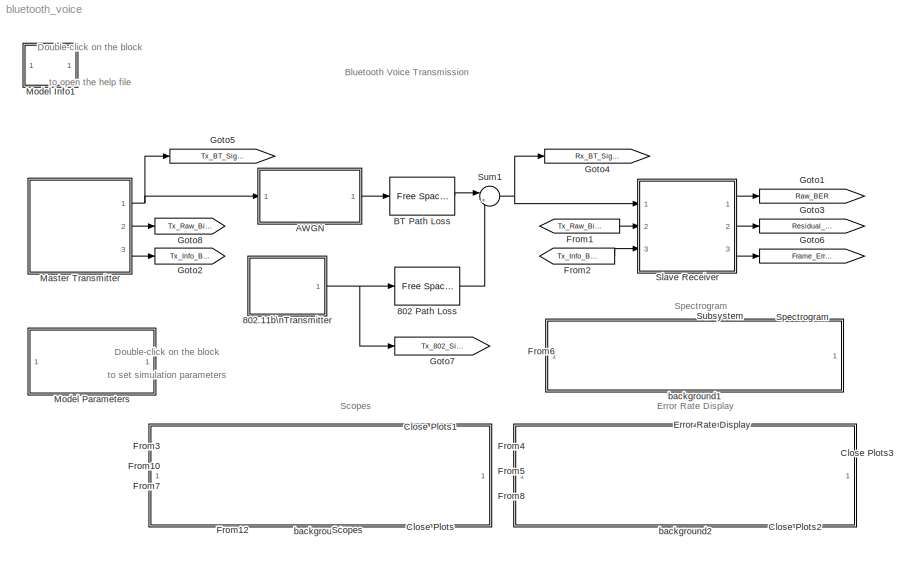
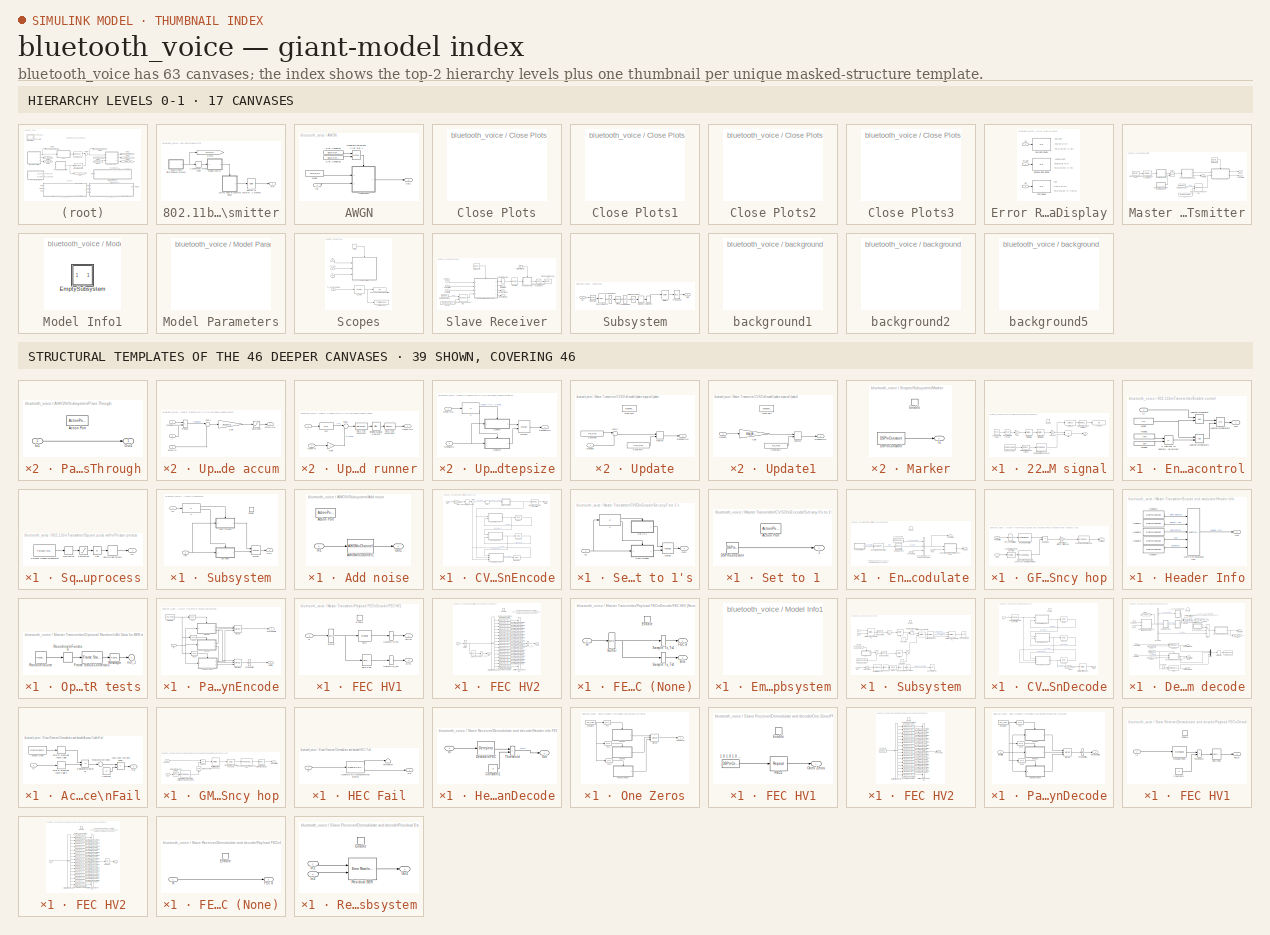
[diagram: thumbnail index - top-2 hierarchy levels (17 canvases) + 39 structural-template representatives of the remaining 46 canvases]
MODEL bluetooth_voice
KIND model
CONFIG PostLoadFcn = bluetooth_cb
CONFIG PreLoadFcn = bluetooth_init;
BLOCK [Reference] 802 Path Loss  REF=commrflib2/Free Space\nPath Loss
  Ports = [1, 1]
  ShowPortLabels = on
  SourceBlock = commrflib2/Free Space\nPath Loss
  SourceType = Free Space Path Loss
  d = 0.100
  dB = 40
  fc = 1920
  mode = Decibels
BLOCK [SubSystem] 802.11b\nTransmitter
  AncestorBlock = bluetooth_lib/802.11b\nTransmitter
  MaskCallbackString = ||||||
  MaskDisplay = disp(['802.11b\\nInterferer\\n' str])
  MaskEnableString = on,on,on,on,on,on,on
  MaskIconFrame = on
  MaskIconOpaque = on
  MaskIconRotate = none
  MaskIconUnits = autoscale
  MaskInitialization = if On==1\n   str='On';\nelse\n  str='Off';\nend;\n\nadjusted_rate=rate/(1-rate*m); % account for finite packet length reducing rate\n
  MaskPromptString = Turn On 802.11|Average Rate (1/sec) (999 for constant)|Length (secs)|Power|Frequency Number (0-78)|Rate Seed|Noise seed
  MaskStyleString = checkbox,edit,edit,edit,edit,edit,edit
  MaskTabNameString = ,,,,,,
  MaskToolTipString = on,on,on,on,on,on,on
  MaskTunableValueString = on,on,on,on,on,on,on
  MaskValueString = on|200|1e-3|0.1|39|rate_802_seed|awgn_802_seed
  MaskVarAliasString = ,,,,,,
  MaskVariables = On=@1;rate=@2;m=@3;power=@4;Freq_Number=@5;rate_seed=@6;awgn_seed=@7;
  MaskVisibilityString = on,on,on,on,on,on,on
  MinAlgLoopOccurrences = off
  Ports = [0, 1]
  PropExecContextAcrossSSBoundary = on
  RTWSystemCode = Auto
  TreatAsAtomicUnit = off
BLOCK [ZeroOrderHold] 802.11b\nTransmitter/1//100packet\nresolution
  SampleTime = (1/1600)/100
BLOCK [SubSystem] 802.11b\nTransmitter/22MHz noise in\n100MHz signal
  MinAlgLoopOccurrences = off
  Ports = [0, 1, 1]
  PropExecContextAcrossSSBoundary = on
  RTWSystemCode = Auto
  TreatAsAtomicUnit = on
BLOCK [Reference] 802.11b\nTransmitter/22MHz noise in\n100MHz signal/20MHz\nwhite noise  REF=dspsrcs4/Random\nSource
  CltLength = 12
  DataType = Double
  Diagnostics = AllowInheritedTsInSrc
  Inherit = off
  Max = 1
  Mean = 0
  Min = 0
  NormMethod = Ziggurat
  OutComplex = Complex
  Ports = [0, 1]
  RepMode = Specify seed
  SampFrame = 62500/500
  SampMode = Discrete
  SampTime = 1/20e6
  SourceBlock = dspsrcs4/Random\nSource
  SourceType = Random Source
  SrcType = Gaussian
  UserData = DataTag0
  UserDataPersistent = on
  Var = power
  rawSeed = awgn_seed
BLOCK [Reference] 802.11b\nTransmitter/22MHz noise in\n100MHz signal/DSP\nConstant  REF=dspsrcs4/DSP\nConstant
  FramebasedOutput = off
  InterpretAs1D = off
  Ports = [0, 1]
  SampleMode = Discrete
  ShowPortLabels = on
  SourceBlock = dspsrcs4/DSP\nConstant
  SourceType = DSP Constant
  Ts = .01/1600
  Value = Freq_Number
  additionalParams = off
  allowOverrides = on
  continuousOutput = Sample-based
  dataType = Inherit from 'Constant value'
  discreteOutput = Sample-based
  fracBitsMode = Best precision
  framePeriod = .01/1600
  isSigned = on
  numFracBits = 15
  sampTime = .01/1600
  udDataType = sfix(16)
  wordLen = 16
BLOCK [Reference] 802.11b\nTransmitter/22MHz noise in\n100MHz signal/Digital\nFilter Design  REF=dsparch4/Digital\nFilter Design
  Ports = [1, 1]
  ShowPortLabels = on
  SourceBlock = dsparch4/Digital\nFilter Design
  SourceType = Unknown
  UserData = DataTag1
  UserDataPersistent = on
BLOCK [Reference] 802.11b\nTransmitter/22MHz noise in\n100MHz signal/Digital\nFilter Design2  REF=dsparch4/Digital\nFilter Design
  Ports = [1, 1]
  ShowPortLabels = on
  SourceBlock = dsparch4/Digital\nFilter Design
  SourceType = Unknown
  UserData = DataTag2
  UserDataPersistent = on
BLOCK [EnablePort] 802.11b\nTransmitter/22MHz noise in\n100MHz signal/Enable
  Ports = []
BLOCK [Reference] 802.11b\nTransmitter/22MHz noise in\n100MHz signal/Frame Status\nConversion  REF=dspsigattribs/Frame Status\nConversion
  Ports = [1, 1]
  ShowPortLabels = off
  SourceBlock = dspsigattribs/Frame Status\nConversion
  SourceType = Frame Status Conversion
  growRefPort = off
  outframe = Frame-based
BLOCK [Reference] 802.11b\nTransmitter/22MHz noise in\n100MHz signal/Frame Status\nConversion1  REF=dspsigattribs/Frame Status\nConversion
  Ports = [1, 1]
  ShowPortLabels = off
  SourceBlock = dspsigattribs/Frame Status\nConversion
  SourceType = Frame Status Conversion
  growRefPort = off
  outframe = Sample-based
BLOCK [Gain] 802.11b\nTransmitter/22MHz noise in\n100MHz signal/Gain
  Gain = 5
BLOCK [Product] 802.11b\nTransmitter/22MHz noise in\n100MHz signal/Mix
  Ports = [2, 1]
  RndMeth = Floor
BLOCK [Reference] 802.11b\nTransmitter/22MHz noise in\n100MHz signal/Mixed to \none of bluetooth\nfrequencies\n  REF=commdigbbndfm2/M-FSK\nModulator\nBaseband
  Enc = Binary
  InType = Integer
  M = 79
  Ports = [1, 1]
  SourceBlock = commdigbbndfm2/M-FSK\nModulator\nBaseband
  SourceType = M-FSK Modulator Baseband
  freqSep = 1e6
  numSamp = 6.25e4/100
  phaseType = Continuous
BLOCK [Outport] 802.11b\nTransmitter/22MHz noise in\n100MHz signal/Out
  BusOutputAsStruct = off
  IconDisplay = Port number
  InitialOutput = 0
  OutputWhenDisabled = reset
BLOCK [Gain] 802.11b\nTransmitter/22MHz noise in\n100MHz signal/Set power
  Gain = 1.7
BLOCK [Display] 802.11b\nTransmitter/22MHz noise in\n100MHz signal/Tx power
  Decimation = 1
  Ports = [1]
BLOCK [Reference] 802.11b\nTransmitter/22MHz noise in\n100MHz signal/Upsample\nto 100MHz  REF=dspsigops/Upsample
  N = 5
  Ports = [1, 1]
  SourceBlock = dspsigops/Upsample
  SourceType = Upsample
  ic = 0
  mode = Maintain input frame rate
  phase = 0
BLOCK [Reference] 802.11b\nTransmitter/22MHz noise in\n100MHz signal/Variance  REF=dspstat3/Variance
  DialogController = dspDDGCreate
  DialogControllerArgs = DataTag3
  LockScale = off
  Ports = [1, 1]
  SourceBlock = dspstat3/Variance
  SourceType = Variance
  accumFracLength = 30
  accumMode = Same as product output
  accumWordLength = 32
  additionalParams = off
  allowOverrides = on
  outputFracLength = 30
  outputMode = Same as accumulator
  outputWordLength = 32
  overflowMode = off
  prodOutputFracLength = 30
  prodOutputMode = Same as input
  prodOutputWordLength = 32
  reset_popup = None
  roundingMode = Floor
  run = off
BLOCK [Reference] 802.11b\nTransmitter/Buffer to same\nframe-size\nas channel  REF=dspbuff3/Buffer
  N = 62500
  Ports = [1, 1]
  SourceBlock = dspbuff3/Buffer
  SourceType = Buffer
  V = 0
  ic = 0
BLOCK [SubSystem] 802.11b\nTransmitter/Enable control
  MaskDisplay = disp('Enable\\n\nLogic')
  MaskIconFrame = on
  MaskIconOpaque = on
  MaskIconRotate = none
  MaskIconUnits = autoscale
  MinAlgLoopOccurrences = off
  Ports = [1, 1]
  PropExecContextAcrossSSBoundary = on
  RTWSystemCode = Auto
  TreatAsAtomicUnit = off
BLOCK [RelationalOperator] 802.11b\nTransmitter/Enable control/If rate set to 999\nturn-on always
  Operator = ==
BLOCK [Inport] 802.11b\nTransmitter/Enable control/In
  IconDisplay = Port number
  LatchInput = off
BLOCK [Logic] 802.11b\nTransmitter/Enable control/Logical\nOperator
  Ports = [2, 1]
BLOCK [Logic] 802.11b\nTransmitter/Enable control/Logical\nOperator1
  Ports = [2, 1]
BLOCK [Logic] 802.11b\nTransmitter/Enable control/Logical\nOperator2
  Operator = OR
  Ports = [2, 1]
BLOCK [Constant] 802.11b\nTransmitter/Enable control/Mode
  Value = On
BLOCK [Constant] 802.11b\nTransmitter/Enable control/Mode1
  Value = rate
BLOCK [Constant] 802.11b\nTransmitter/Enable control/Mode2
  Value = 999
BLOCK [Outport] 802.11b\nTransmitter/Enable control/Out
  BusOutputAsStruct = off
  IconDisplay = Port number
BLOCK [Goto] 802.11b\nTransmitter/Goto4
  DialogController = Simulink.DDGSource
  GotoTag = Packet_Envelope_802
  TagVisibility = global
BLOCK [Outport] 802.11b\nTransmitter/Out
  BusOutputAsStruct = off
  IconDisplay = Port number
BLOCK [SubSystem] 802.11b\nTransmitter/Square pulse with\nPoisson process
  MaskCallbackString = ||
  MaskDisplay = plot(exp(-(0:.4:3)))
  MaskEnableString = on,on,on
  MaskIconFrame = on
  MaskIconOpaque = off
  MaskIconRotate = none
  MaskIconUnits = autoscale
  MaskPromptString = Average Rate (1/sec)|Mean Length|Seed
  MaskStyleString = edit,edit,edit
  MaskTabNameString = ,,
  MaskToolTipString = on,on,on
  MaskTunableValueString = on,on,on
  MaskType = Poisson process
  MaskValueString = adjusted_rate|m|rate_seed
  MaskVarAliasString = ,,
  MaskVariables = rate=@1;m=@2;seed=@3;
  MaskVisibilityString = on,on,on
  MinAlgLoopOccurrences = off
  Ports = [0, 1]
  PropExecContextAcrossSSBoundary = on
  RTWSystemCode = Auto
  TreatAsAtomicUnit = off
BLOCK [Abs] 802.11b\nTransmitter/Square pulse with\nPoisson process/Abs
BLOCK [Derivative] 802.11b\nTransmitter/Square pulse with\nPoisson process/Derivative
BLOCK [Reference] 802.11b\nTransmitter/Square pulse with\nPoisson process/Poisson Integer\nGenerator  REF=commrandsrc2/Poisson Integer\nGenerator
  Ports = [0, 1]
  ShowPortLabels = on
  SourceBlock = commrandsrc2/Poisson Integer\nGenerator
  SourceType = Poisson Integer Generator
  Ts = m
  frameBased = off
  lambda = adjusted_rate*m
  orient = off
  sampPerFrame = 1
  seed = rate_seed
BLOCK [Saturate] 802.11b\nTransmitter/Square pulse with\nPoisson process/Saturation
  LowerLimit = 0
  UpperLimit = 1
BLOCK [ZeroOrderHold] 802.11b\nTransmitter/Square pulse with\nPoisson process/Zero-Order\nHold
  SampleTime = 1e-3
BLOCK [Outport] 802.11b\nTransmitter/Square pulse with\nPoisson process/hit
  BusOutputAsStruct = off
  IconDisplay = Port number
  InitialOutput = 0
BLOCK [SubSystem] AWGN
  MaskCallbackString = ||||
  MaskDisplay = disp(['AWGN is ' Name])
  MaskEnableString = on,on,on,on,on
  MaskIconFrame = on
  MaskIconOpaque = on
  MaskIconRotate = none
  MaskIconUnits = autoscale
  MaskInitialization = if AWGN_On==1\n   Name='On';\nelse\n  Name='Off';\nend;\n
  MaskPromptString = Turn on AWGN|Es/No|Input Power|Symbol Period|Seed
  MaskStyleString = checkbox,edit,edit,edit,edit
  MaskTabNameString = ,,,,
  MaskToolTipString = on,on,on,on,on
  MaskTunableValueString = on,on,on,on,on
  MaskType = Optional channel
  MaskValueString = off|15|.001|1e-6|awgn_channel_seed
  MaskVarAliasString = ,,,,
  MaskVariables = AWGN_On=@1;EsNo=@2;Power=@3;Symbol_Period=@4;seed=@5;
  MaskVisibilityString = on,on,on,on,on
  MinAlgLoopOccurrences = off
  Ports = [1, 1]
  PropExecContextAcrossSSBoundary = on
  RTWSystemCode = Auto
  TreatAsAtomicUnit = on
BLOCK [Reference] AWGN/Generate noise\nonly for slot 1  REF=simulink/Signal\nRouting/Manual Switch
  Ports = [2, 1]
  ShowPortLabels = on
  SourceBlock = simulink/Signal\nRouting/Manual Switch
  SourceType = Manual Switch
  action = 0
  sw = 0
BLOCK [Inport] AWGN/In1
  IconDisplay = Port number
  LatchInput = off
BLOCK [Constant] AWGN/Mode
  SampleTime = Inf
  Value = AWGN_On
BLOCK [Outport] AWGN/Out1
  BusOutputAsStruct = off
  IconDisplay = Port number
  InitialOutput = 0
BLOCK [Reference] AWGN/Slot 1 enable2  REF=dspsrcs4/Signal From\nWorkspace
  OutputAfterFinalValue = Cyclic repetition
  Ports = [0, 1]
  ShowPortLabels = on
  SourceBlock = dspsrcs4/Signal From\nWorkspace
  SourceType = Signal From Workspace
  Ts = 625e-6
  X = [1 0 0 0 0 0]
  nsamps = 1
BLOCK [Reference] AWGN/Slot 1 enable3  REF=dspsrcs4/Signal From\nWorkspace
  OutputAfterFinalValue = Cyclic repetition
  Ports = [0, 1]
  ShowPortLabels = on
  SourceBlock = dspsrcs4/Signal From\nWorkspace
  SourceType = Signal From Workspace
  Ts = 625e-6
  X = [1 1 1 1 1 1 ]
  nsamps = 1
BLOCK [SubSystem] AWGN/Subsystem
  MinAlgLoopOccurrences = off
  Ports = [2, 1, 1]
  PropExecContextAcrossSSBoundary = on
  RTWSystemCode = Auto
  TreatAsAtomicUnit = on
BLOCK [SubSystem] AWGN/Subsystem/Add noise
  MinAlgLoopOccurrences = off
  Ports = [1, 1, 0, 0, 0, 0, 0, 1]
  PropExecContextAcrossSSBoundary = on
  RTWSystemCode = Auto
  TreatAsAtomicUnit = on
BLOCK [Reference] AWGN/Subsystem/Add noise/AWGN\nChannel1  REF=commchan2/AWGN\nChannel
  EbNodB = 10
  EsNodB = EsNo
  Ports = [1, 1]
  Ps = Power
  SNRdB = 10
  ShowPortLabels = on
  SourceBlock = commchan2/AWGN\nChannel
  SourceType = AWGN Channel
  Tsym = Symbol_Period
  bitsPerSym = 1
  noiseMode = Signal to noise ratio  (Es/No)
  seed = seed
  variance = 1
BLOCK [ActionPort] AWGN/Subsystem/Add noise/Action Port
  ActionType = else
BLOCK [Inport] AWGN/Subsystem/Add noise/In1
  IconDisplay = Port number
  LatchInput = off
BLOCK [Outport] AWGN/Subsystem/Add noise/Out1
  BusOutputAsStruct = off
  IconDisplay = Port number
BLOCK [EnablePort] AWGN/Subsystem/Enable
  Ports = []
BLOCK [If] AWGN/Subsystem/If
  IfExpression = u1 == 0
  Ports = [1, 2]
BLOCK [Inport] AWGN/Subsystem/In1
  IconDisplay = Port number
  LatchInput = off
BLOCK [Inport] AWGN/Subsystem/In2
  IconDisplay = Port number
  LatchInput = off
  Port = 2
BLOCK [Merge] AWGN/Subsystem/Merge
  Ports = [2, 1]
BLOCK [Outport] AWGN/Subsystem/Out1
  BusOutputAsStruct = off
  IconDisplay = Port number
BLOCK [SubSystem] AWGN/Subsystem/Pass Through
  MinAlgLoopOccurrences = off
  Ports = [1, 1, 0, 0, 0, 0, 0, 1]
  PropExecContextAcrossSSBoundary = on
  RTWSystemCode = Auto
  TreatAsAtomicUnit = on
BLOCK [ActionPort] AWGN/Subsystem/Pass Through/Action Port
  ActionType = then
BLOCK [Inport] AWGN/Subsystem/Pass Through/In1
  IconDisplay = Port number
  LatchInput = off
BLOCK [Outport] AWGN/Subsystem/Pass Through/Out1
  BusOutputAsStruct = off
  IconDisplay = Port number
BLOCK [Reference] BT Path Loss  REF=commrflib2/Free Space\nPath Loss
  Ports = [1, 1]
  ShowPortLabels = on
  SourceBlock = commrflib2/Free Space\nPath Loss
  SourceType = Free Space Path Loss
  d = 0.100
  dB = 40
  fc = 1920
  mode = Decibels
BLOCK [SubSystem] Close Plots
  MaskDisplay = disp('Close Scopes');
  MaskIconFrame = on
  MaskIconOpaque = on
  MaskIconRotate = none
  MaskIconUnits = autoscale
  MinAlgLoopOccurrences = off
  OpenFcn = set_param([gcs,'/Scopes/State'],'Value','0');                                             \n  sdspfscope2([],[],[],'ScopeUpdate',[gcs '/Scopes/Subsystem/Timing Diagram'],'CloseFig');\n  sdspfscope2([],[],[],'ScopeUpdate',[gcs '/Scopes/Subsystem/Spectrum Plot'],'CloseFig'); \n                                                                                          \nset_param([gcs '/Scopes/Subsyste...<+231ch>
  Ports = []
  PropExecContextAcrossSSBoundary = on
  RTWSystemCode = Auto
  TreatAsAtomicUnit = off
BLOCK [SubSystem] Close Plots1
  MaskDisplay = disp('Open Scopes');
  MaskIconFrame = on
  MaskIconOpaque = on
  MaskIconRotate = none
  MaskIconUnits = autoscale
  MinAlgLoopOccurrences = off
  OpenFcn = set_param([gcs,'/Scopes/State'],'Value','1');                                            \n  sdspfscope2([],[],[],'ScopeUpdate',[gcs '/Scopes/Subsystem/Timing Diagram'],'OpenFig');\n  sdspfscope2([],[],[],'ScopeUpdate',[gcs '/Scopes/Subsystem/Spectrum Plot'],'OpenFig'); \n                                                                                         \nset_param([gcs '/Scopes/Subsystem/Ti...<+224ch>
  Ports = []
  PropExecContextAcrossSSBoundary = on
  RTWSystemCode = Auto
  TreatAsAtomicUnit = off
BLOCK [SubSystem] Close Plots2
  MaskDisplay = disp('Close Scopes');
  MaskIconFrame = on
  MaskIconOpaque = on
  MaskIconRotate = none
  MaskIconUnits = autoscale
  MinAlgLoopOccurrences = off
  OpenFcn = set_param([gcs '/Error Rate Display'],'Open','off');
  Ports = []
  PropExecContextAcrossSSBoundary = on
  RTWSystemCode = Auto
  TreatAsAtomicUnit = off
BLOCK [SubSystem] Close Plots3
  MaskDisplay = disp('Open Scopes');
  MaskIconFrame = on
  MaskIconOpaque = on
  MaskIconRotate = none
  MaskIconUnits = autoscale
  MinAlgLoopOccurrences = off
  OpenFcn = set_param([gcs '/Error Rate Display'],'Open','on');
  Ports = []
  PropExecContextAcrossSSBoundary = on
  RTWSystemCode = Auto
  TreatAsAtomicUnit = off
BLOCK [SubSystem] Error Rate Display
  MaskDisplay = disp('Error\\nRate\\nDisplay')
  MaskIconFrame = on
  MaskIconOpaque = on
  MaskIconRotate = none
  MaskIconUnits = autoscale
  MinAlgLoopOccurrences = off
  Ports = [3]
  PropExecContextAcrossSSBoundary = on
  RTWSystemCode = Auto
  TreatAsAtomicUnit = on
BLOCK [Display] Error Rate Display/FER Display
  Decimation = 1
  Ports = [1]
BLOCK [Display] Error Rate Display/Raw BER Display
  Decimation = 1
  Ports = [1]
BLOCK [Display] Error Rate Display/Residual BER Display
  Decimation = 1
  Ports = [1]
BLOCK [Inport] Error Rate Display/Rx
  IconDisplay = Port number
  LatchInput = off
  Port = 3
BLOCK [Inport] Error Rate Display/Tx
  IconDisplay = Port number
  LatchInput = off
BLOCK [Inport] Error Rate Display/Tx_802
  IconDisplay = Port number
  LatchInput = off
  Port = 2
BLOCK [From] From1
  CloseFcn = tagdialog Close
  DialogController = Simulink.DDGSource
  GotoTag = Tx_Raw_Bits
BLOCK [From] From10
  CloseFcn = tagdialog Close
  DialogController = Simulink.DDGSource
  GotoTag = Tx_802_Signal
BLOCK [From] From12
  CloseFcn = tagdialog Close
  DialogController = Simulink.DDGSource
  GotoTag = Packet_Envelope_802
BLOCK [From] From2
  CloseFcn = tagdialog Close
  DialogController = Simulink.DDGSource
  GotoTag = Tx_Info_Bits
BLOCK [From] From3
  CloseFcn = tagdialog Close
  DialogController = Simulink.DDGSource
  GotoTag = Tx_BT_Signal
BLOCK [From] From4
  CloseFcn = tagdialog Close
  DialogController = Simulink.DDGSource
  GotoTag = Raw_BER
BLOCK [From] From5
  CloseFcn = tagdialog Close
  DialogController = Simulink.DDGSource
  GotoTag = Residual_BER
BLOCK [From] From6
  CloseFcn = tagdialog Close
  DialogController = Simulink.DDGSource
  GotoTag = Rx_BT_Signal
BLOCK [From] From7
  CloseFcn = tagdialog Close
  DialogController = Simulink.DDGSource
  GotoTag = Rx_BT_Signal
BLOCK [From] From8
  CloseFcn = tagdialog Close
  DialogController = Simulink.DDGSource
  GotoTag = Frame_Error_Rate
BLOCK [Goto] Goto1
  DialogController = Simulink.DDGSource
  GotoTag = Raw_BER
  TagVisibility = global
BLOCK [Goto] Goto2
  DialogController = Simulink.DDGSource
  GotoTag = Tx_Info_Bits
  TagVisibility = global
BLOCK [Goto] Goto3
  DialogController = Simulink.DDGSource
  GotoTag = Residual_BER
  TagVisibility = global
BLOCK [Goto] Goto4
  DialogController = Simulink.DDGSource
  GotoTag = Rx_BT_Signal
  TagVisibility = global
BLOCK [Goto] Goto5
  DialogController = Simulink.DDGSource
  GotoTag = Tx_BT_Signal
  TagVisibility = global
BLOCK [Goto] Goto6
  DialogController = Simulink.DDGSource
  GotoTag = Frame_Error_Rate
  TagVisibility = global
BLOCK [Goto] Goto7
  DialogController = Simulink.DDGSource
  GotoTag = Tx_802_Signal
  TagVisibility = global
BLOCK [Goto] Goto8
  DialogController = Simulink.DDGSource
  GotoTag = Tx_Raw_Bits
  TagVisibility = global
BLOCK [SubSystem] Master Transmitter
  MaskDisplay = plot(0,0,100,100,[30,60,60,55,55,30,30],[10,10,90,90,70,70,10],[35,35,55,55,35],[64,45,45,64,64])
  MaskIconFrame = on
  MaskIconOpaque = on
  MaskIconRotate = none
  MaskIconUnits = autoscale
  MaskType = Master Transmitter
  MinAlgLoopOccurrences = off
  Ports = [0, 3]
  PropExecContextAcrossSSBoundary = on
  RTWSystemCode = Auto
  TreatAsAtomicUnit = off
BLOCK [Reference] Master Transmitter/Bluetooth\nClock  REF=bluetooth_lib/Bluetooth\nClock  (lib defined in mdl_445d02070f23, mdl_ddbc2443d151)
  Ports = [0, 1]
  ShowPortLabels = on
  SourceBlock = bluetooth_lib/Bluetooth\nClock
  SourceType = Bluetooth Clock
  Ts = (1/1600)/2
BLOCK [SubSystem] Master Transmitter/CVSD\nEncode
  MaskCallbackString = |||
  MaskDescription = Encode a 64 K samples per sec speech signal into a 64Kbps bit stream.
  MaskDisplay = disp('CVSD\\nEncode')
  MaskEnableString = on,on,on,on
  MaskIconFrame = on
  MaskIconOpaque = on
  MaskIconRotate = none
  MaskIconUnits = autoscale
  MaskInitialization = pos_accum_max = 2^15 - 1;\nneg_accum_max = -2^15 + 1;
  MaskPromptString = Minimum Step Size|Maximum Step Size|Accumulator Decay|Step Decay
  MaskStyleString = edit,edit,edit,edit
  MaskTabNameString = ,,,
  MaskToolTipString = on,on,on,on
  MaskTunableValueString = on,on,on,on
  MaskType = CVSD Encoder
  MaskValueString = 10|1280|1-1/32|1-1/1024
  MaskVarAliasString = ,,,
  MaskVariables = min_step=@1;max_step=@2;accum_decay=@3;step_decay=@4;
  MaskVisibilityString = on,on,on,on
  MinAlgLoopOccurrences = off
  Ports = [1, 1]
  PropExecContextAcrossSSBoundary = on
  RTWSystemCode = Auto
  TreatAsAtomicUnit = off
BLOCK [Reference] Master Transmitter/CVSD\nEncode/Bipolar to\nUnipolar\nConverter1  REF=commutil2/Bipolar to\nUnipolar\nConverter
  M = 2
  Ports = [1, 1]
  ShowPortLabels = on
  SourceBlock = commutil2/Bipolar to\nUnipolar\nConverter
  SourceType = Bipolar to Unipolar Converter
  polarity = Negative
BLOCK [Gain] Master Transmitter/CVSD\nEncode/Gain
  Gain = 32768
BLOCK [Inport] Master Transmitter/CVSD\nEncode/In1
  IconDisplay = Port number
  LatchInput = off
BLOCK [Outport] Master Transmitter/CVSD\nEncode/Out1
  BusOutputAsStruct = off
  IconDisplay = Port number
BLOCK [Rounding] Master Transmitter/CVSD\nEncode/Rounding\nFunction
  Operator = round
BLOCK [SubSystem] Master Transmitter/CVSD\nEncode/Set any 0's to 1's
  MinAlgLoopOccurrences = off
  Ports = [1, 1]
  PropExecContextAcrossSSBoundary = on
  RTWSystemCode = Auto
  TreatAsAtomicUnit = off
BLOCK [If] Master Transmitter/CVSD\nEncode/Set any 0's to 1's/If
  IfExpression = u1 ==0
  Ports = [1, 2]
BLOCK [Inport] Master Transmitter/CVSD\nEncode/Set any 0's to 1's/In1
  IconDisplay = Port number
  LatchInput = off
BLOCK [Merge] Master Transmitter/CVSD\nEncode/Set any 0's to 1's/Merge
  Ports = [2, 1]
BLOCK [Outport] Master Transmitter/CVSD\nEncode/Set any 0's to 1's/Out1
  BusOutputAsStruct = off
  IconDisplay = Port number
BLOCK [SubSystem] Master Transmitter/CVSD\nEncode/Set any 0's to 1's/Pass through
  MinAlgLoopOccurrences = off
  Ports = [1, 1, 0, 0, 0, 0, 0, 1]
  PropExecContextAcrossSSBoundary = on
  RTWSystemCode = Auto
  TreatAsAtomicUnit = on
BLOCK [ActionPort] Master Transmitter/CVSD\nEncode/Set any 0's to 1's/Pass through/Action Port
  ActionType = else
BLOCK [Inport] Master Transmitter/CVSD\nEncode/Set any 0's to 1's/Pass through/In1
  IconDisplay = Port number
  LatchInput = off
BLOCK [Outport] Master Transmitter/CVSD\nEncode/Set any 0's to 1's/Pass through/Out1=In1
  BusOutputAsStruct = off
  IconDisplay = Port number
BLOCK [SubSystem] Master Transmitter/CVSD\nEncode/Set any 0's to 1's/Set to 1
  MinAlgLoopOccurrences = off
  Ports = [0, 1, 0, 0, 0, 0, 0, 1]
  PropExecContextAcrossSSBoundary = on
  RTWSystemCode = Auto
  TreatAsAtomicUnit = on
BLOCK [Outport] Master Transmitter/CVSD\nEncode/Set any 0's to 1's/Set to 1/1
  BusOutputAsStruct = off
  IconDisplay = Port number
  InitialOutput = 1
BLOCK [ActionPort] Master Transmitter/CVSD\nEncode/Set any 0's to 1's/Set to 1/Action Port
  ActionType = then
BLOCK [Reference] Master Transmitter/CVSD\nEncode/Set any 0's to 1's/Set to 1/DSP\nConstant  REF=dspsrcs4/DSP\nConstant
  FramebasedOutput = off
  InterpretAs1D = on
  Ports = [0, 1]
  SampleMode = Discrete
  ShowPortLabels = on
  SourceBlock = dspsrcs4/DSP\nConstant
  SourceType = DSP Constant
  Ts = 1/64000
  Value = 1
  additionalParams = off
  allowOverrides = on
  continuousOutput = Sample-based (interpret vectors as 1-D)
  dataType = Inherit from 'Constant value'
  discreteOutput = Sample-based (interpret vectors as 1-D)
  fracBitsMode = Best precision
  framePeriod = 1/64000
  isSigned = on
  numFracBits = 15
  sampTime = 1/64000
  udDataType = sfix(16)
  wordLen = 16
BLOCK [Signum] Master Transmitter/CVSD\nEncode/Sign
BLOCK [Sum] Master Transmitter/CVSD\nEncode/Sum
  IconShape = round
  Inputs = |+-
  Ports = [2, 1]
BLOCK [SubSystem] Master Transmitter/CVSD\nEncode/Update accum
  MinAlgLoopOccurrences = off
  Ports = [3, 1]
  PropExecContextAcrossSSBoundary = on
  RTWSystemCode = Auto
  TreatAsAtomicUnit = off
BLOCK [Gain] Master Transmitter/CVSD\nEncode/Update accum/Gain
  Gain = accum_decay
BLOCK [Product] Master Transmitter/CVSD\nEncode/Update accum/Product
  Ports = [2, 1]
  RndMeth = Floor
BLOCK [Saturate] Master Transmitter/CVSD\nEncode/Update accum/Saturation
  LowerLimit = neg_accum_max
  UpperLimit = pos_accum_max
BLOCK [Sum] Master Transmitter/CVSD\nEncode/Update accum/Sum1
  IconShape = round
  Inputs = |++
  Ports = [2, 1]
BLOCK [Inport] Master Transmitter/CVSD\nEncode/Update accum/accum(n)
  IconDisplay = Port number
  LatchInput = off
  Port = 3
BLOCK [Outport] Master Transmitter/CVSD\nEncode/Update accum/accum(n+1)
  BusOutputAsStruct = off
  IconDisplay = Port number
BLOCK [Inport] Master Transmitter/CVSD\nEncode/Update accum/stepsize(n+1)
  IconDisplay = Port number
  LatchInput = off
BLOCK [Inport] Master Transmitter/CVSD\nEncode/Update accum/y
  IconDisplay = Port number
  LatchInput = off
  Port = 2
BLOCK [SubSystem] Master Transmitter/CVSD\nEncode/Update runner
  MinAlgLoopOccurrences = off
  Ports = [2, 1]
  PropExecContextAcrossSSBoundary = on
  RTWSystemCode = Auto
  TreatAsAtomicUnit = off
BLOCK [Reference] Master Transmitter/CVSD\nEncode/Update runner/Bitwise\nLogical Operator  REF=simulink/Logic and Bit\nOperations/Bitwise\nOperator
  BitMask = 15
  BitMaskRealWorld = Stored Integer
  NumInputPorts = 1
  Ports = [1, 1]
  SourceBlock = simulink/Logic and Bit\nOperations/Bitwise\nOperator
  SourceType = Bitwise Operator
  UseBitMask = on
  logicop = AND
BLOCK [DataTypeConversion] Master Transmitter/CVSD\nEncode/Update runner/Data Type Conversion
  OutDataTypeMode = uint16
BLOCK [DataTypeConversion] Master Transmitter/CVSD\nEncode/Update runner/Data Type Conversion1
  OutDataTypeMode = double
BLOCK [Fcn] Master Transmitter/CVSD\nEncode/Update runner/Fcn
  Expr = u==1
BLOCK [Gain] Master Transmitter/CVSD\nEncode/Update runner/Gain
  Gain = 2
BLOCK [Sum] Master Transmitter/CVSD\nEncode/Update runner/Sum1
  IconShape = round
  Inputs = |++
  Ports = [2, 1]
BLOCK [Inport] Master Transmitter/CVSD\nEncode/Update runner/runner(n)
  IconDisplay = Port number
  LatchInput = off
  Port = 2
BLOCK [Outport] Master Transmitter/CVSD\nEncode/Update runner/runner(n+1)
  BusOutputAsStruct = off
  IconDisplay = Port number
BLOCK [Inport] Master Transmitter/CVSD\nEncode/Update runner/y
  IconDisplay = Port number
  LatchInput = off
BLOCK [SubSystem] Master Transmitter/CVSD\nEncode/Update stepsize
  MinAlgLoopOccurrences = off
  Ports = [2, 1]
  PropExecContextAcrossSSBoundary = on
  RTWSystemCode = Auto
  TreatAsAtomicUnit = off
BLOCK [If] Master Transmitter/CVSD\nEncode/Update stepsize/If
  IfExpression = (u1 == 0) | (u1== 15)
  Ports = [1, 2]
BLOCK [Merge] Master Transmitter/CVSD\nEncode/Update stepsize/Merge1
  Ports = [2, 1]
BLOCK [SubSystem] Master Transmitter/CVSD\nEncode/Update stepsize/Update
  MinAlgLoopOccurrences = off
  Ports = [1, 1, 0, 0, 0, 0, 0, 1]
  PropExecContextAcrossSSBoundary = on
  RTWSystemCode = Auto
  TreatAsAtomicUnit = on
BLOCK [ActionPort] Master Transmitter/CVSD\nEncode/Update stepsize/Update/Action Port
  ActionType = then
BLOCK [Constant] Master Transmitter/CVSD\nEncode/Update stepsize/Update/Constant
  Value = min_step
BLOCK [Constant] Master Transmitter/CVSD\nEncode/Update stepsize/Update/Constant1
  Value = max_step
BLOCK [MinMax] Master Transmitter/CVSD\nEncode/Update stepsize/Update/MinMax
  Function = min
  Inputs = 2
  Ports = [2, 1]
BLOCK [Sum] Master Transmitter/CVSD\nEncode/Update stepsize/Update/Sum2
  IconShape = round
  Inputs = |++
  Ports = [2, 1]
BLOCK [Inport] Master Transmitter/CVSD\nEncode/Update stepsize/Update/stepsize
  IconDisplay = Port number
  LatchInput = off
BLOCK [Outport] Master Transmitter/CVSD\nEncode/Update stepsize/Update/stepsize(n+1)
  BusOutputAsStruct = off
  IconDisplay = Port number
BLOCK [SubSystem] Master Transmitter/CVSD\nEncode/Update stepsize/Update1
  MinAlgLoopOccurrences = off
  Ports = [1, 1, 0, 0, 0, 0, 0, 1]
  PropExecContextAcrossSSBoundary = on
  RTWSystemCode = Auto
  TreatAsAtomicUnit = on
BLOCK [ActionPort] Master Transmitter/CVSD\nEncode/Update stepsize/Update1/Action Port
  ActionType = else
BLOCK [Constant] Master Transmitter/CVSD\nEncode/Update stepsize/Update1/Constant1
  Value = min_step
BLOCK [Gain] Master Transmitter/CVSD\nEncode/Update stepsize/Update1/Gain
  Gain = step_decay
BLOCK [MinMax] Master Transmitter/CVSD\nEncode/Update stepsize/Update1/MinMax
  Function = max
  Inputs = 2
  Ports = [2, 1]
BLOCK [Inport] Master Transmitter/CVSD\nEncode/Update stepsize/Update1/stepsize
  IconDisplay = Port number
  LatchInput = off
BLOCK [Outport] Master Transmitter/CVSD\nEncode/Update stepsize/Update1/stepsize(n+1)
  BusOutputAsStruct = off
  IconDisplay = Port number
BLOCK [Inport] Master Transmitter/CVSD\nEncode/Update stepsize/runner(n+1)
  IconDisplay = Port number
  LatchInput = off
BLOCK [Inport] Master Transmitter/CVSD\nEncode/Update stepsize/stepsize(n)
  IconDisplay = Port number
  LatchInput = off
  Port = 2
BLOCK [Outport] Master Transmitter/CVSD\nEncode/Update stepsize/stepsize(n+1)
  BusOutputAsStruct = off
  IconDisplay = Port number
BLOCK [Reference] Master Transmitter/CVSD\nEncode/runner  REF=dspsigops/Delay
  Ports = [1, 1]
  SourceBlock = dspsigops/Delay
  SourceType = Delay
  delay = 1
  dif_ic_for_ch = off
  dif_ic_for_dly = off
  dly_unit = Samples
  ic = 10
  ic_detail = on
  reset_popup = None
BLOCK [Reference] Master Transmitter/CVSD\nEncode/stepsize  REF=dspsigops/Delay
  Ports = [1, 1]
  SourceBlock = dspsigops/Delay
  SourceType = Delay
  delay = 1
  dif_ic_for_ch = off
  dif_ic_for_dly = off
  dly_unit = Samples
  ic = min_step
  ic_detail = on
  reset_popup = None
BLOCK [Reference] Master Transmitter/CVSD\nEncode/stepsize1  REF=dspsigops/Delay
  Ports = [1, 1]
  SourceBlock = dspsigops/Delay
  SourceType = Delay
  delay = 1
  dif_ic_for_ch = off
  dif_ic_for_dly = off
  dly_unit = Samples
  ic = min_step
  ic_detail = on
  reset_popup = None
BLOCK [SubSystem] Master Transmitter/Encode and modulate
  MinAlgLoopOccurrences = off
  Ports = [2, 2, 1]
  PropExecContextAcrossSSBoundary = on
  RTWSystemCode = Auto
  TreatAsAtomicUnit = on
BLOCK [Reference] Master Transmitter/Encode and modulate/Access Code  REF=dspsrcs4/DSP\nConstant
  FramebasedOutput = on
  InterpretAs1D = off
  Ports = [0, 1]
  SampleMode = Discrete
  ShowPortLabels = on
  SourceBlock = dspsrcs4/DSP\nConstant
  SourceType = DSP Constant
  Ts = Slot_Ts
  Value = Access_Code
  additionalParams = off
  allowOverrides = on
  continuousOutput = Sample-based
  dataType = Inherit from 'Constant value'
  discreteOutput = Frame-based
  fracBitsMode = Best precision
  framePeriod = Slot_Ts
  isSigned = on
  numFracBits = 15
  sampTime = Slot_Ts
  udDataType = sfix(16)
  wordLen = 16
BLOCK [Reference] Master Transmitter/Encode and modulate/Concatenate\nAccess, Header\nand Payload  REF=simulink/Math\nOperations/Matrix\nConcatenation
  Ports = [3, 1]
  SourceBlock = simulink/Math\nOperations/Matrix\nConcatenation
  SourceType = Matrix Concatenation
  catMethod = Vertical
  numInports = 3
BLOCK [EnablePort] Master Transmitter/Encode and modulate/Enable
  Ports = []
BLOCK [SubSystem] Master Transmitter/Encode and modulate/GFSK Modulate\nand frequency hop
  MinAlgLoopOccurrences = off
  Ports = [2, 1]
  PropExecContextAcrossSSBoundary = on
  RTWSystemCode = Auto
  TreatAsAtomicUnit = off
BLOCK [Reference] Master Transmitter/Encode and modulate/GFSK Modulate\nand frequency hop/Frame Status\nConversion  REF=dspsigattribs/Frame Status\nConversion
  Ports = [1, 1]
  ShowPortLabels = off
  SourceBlock = dspsigattribs/Frame Status\nConversion
  SourceType = Frame Status Conversion
  growRefPort = off
  outframe = Frame-based
BLOCK [Reference] Master Transmitter/Encode and modulate/GFSK Modulate\nand frequency hop/Free Space\nPath Loss  REF=commrflib2/Free Space\nPath Loss
  Ports = [1, 1]
  ShowPortLabels = on
  SourceBlock = commrflib2/Free Space\nPath Loss
  SourceType = Free Space Path Loss
  d = 0.100
  dB = 30
  fc = 1920
  mode = Decibels
BLOCK [Reference] Master Transmitter/Encode and modulate/GFSK Modulate\nand frequency hop/GFSK\nModulation  REF=commdigbbndcpm2/CPM\nModulator\nBaseband
  BT = 0.5
  Mnum = 2
  Ports = [1, 1]
  ShowPortLabels = on
  SourceBlock = commdigbbndcpm2/CPM\nModulator\nBaseband
  SourceType = CPM Modulator Baseband
  inputType = Bit
  mainLobePulseLength = 1
  mappingType = Binary
  modIdx = 0.32
  phaseOffset = 0
  preHistory = 1
  pulseLength = 1
  pulseShape = Gaussian
  rollOff = 0.2
  samplesPerSymbol = 100
BLOCK [Reference] Master Transmitter/Encode and modulate/GFSK Modulate\nand frequency hop/Generate\n79 possible carriers\n-39MHz to 39MHz\n  REF=commdigbbndfm2/M-FSK\nModulator\nBaseband
  Enc = Binary
  InType = Integer
  M = 79
  Ports = [1, 1]
  SourceBlock = commdigbbndfm2/M-FSK\nModulator\nBaseband
  SourceType = M-FSK Modulator Baseband
  freqSep = 1e6
  numSamp = 6.25e4
  phaseType = Continuous
BLOCK [Inport] Master Transmitter/Encode and modulate/GFSK Modulate\nand frequency hop/Hop
  IconDisplay = Port number
  LatchInput = off
  Port = 2
BLOCK [Gain] Master Transmitter/Encode and modulate/GFSK Modulate\nand frequency hop/Mask to turn off\ntransmitter after\ndata finished
  Gain = [ones(36600,1);zeros(62500-36600,1)]
BLOCK [Product] Master Transmitter/Encode and modulate/GFSK Modulate\nand frequency hop/Product3
  Ports = [2, 1]
  RndMeth = Floor
BLOCK [Inport] Master Transmitter/Encode and modulate/GFSK Modulate\nand frequency hop/Tx Raw Bits
  IconDisplay = Port number
  LatchInput = off
BLOCK [Outport] Master Transmitter/Encode and modulate/GFSK Modulate\nand frequency hop/Tx SIgnal
  BusOutputAsStruct = off
  IconDisplay = Port number
BLOCK [Reference] Master Transmitter/Encode and modulate/GFSK Modulate\nand frequency hop/Zero Pad\nto fill slot  REF=dspsigops/Zero Pad
  Ports = [1, 1]
  SourceBlock = dspsigops/Zero Pad
  SourceType = Zero Pad
  numOutCols = 1
  numOutRows = 625
  padNumOutColsSpecMethod = User-specified
  padNumOutRowsSpecMethod = User-specified
  padSigAt = End
  trunc_flag = None
  zpadAlong = Columns
BLOCK [Reference] Master Transmitter/Encode and modulate/General CRC\nGenerator  REF=commcrc2/General CRC\nGenerator
  Ports = [1, 1]
  SourceBlock = commcrc2/General CRC\nGenerator
  SourceType = General CRC Generator
  genPoly = [1 1 0 1 0 0 1 1 1]
  iniStates = [1 0 0 1 0 1 1 0]
  numChecksums = 1
BLOCK [SubSystem] Master Transmitter/Encode and modulate/Header Info
  MaskDisplay = disp('Header Info')
  MaskIconFrame = on
  MaskIconOpaque = on
  MaskIconRotate = none
  MaskIconUnits = autoscale
  MinAlgLoopOccurrences = off
  Ports = [0, 1]
  PropExecContextAcrossSSBoundary = on
  RTWSystemCode = Auto
  TreatAsAtomicUnit = off
BLOCK [Reference] Master Transmitter/Encode and modulate/Header Info FEC\nEncode  REF=dspsigops/Repeat
  N = 3
  Ports = [1, 1]
  SourceBlock = dspsigops/Repeat
  SourceType = Repeat
  ic = 0
  mode = Maintain input frame rate
BLOCK [Reference] Master Transmitter/Encode and modulate/Header Info/Header3  REF=dspsrcs4/DSP\nConstant
  FramebasedOutput = on
  InterpretAs1D = off
  Ports = [0, 1]
  SampleMode = Discrete
  ShowPortLabels = on
  SourceBlock = dspsrcs4/DSP\nConstant
  SourceType = DSP Constant
  Ts = Slot_Ts
  Value = Slave_Address
  additionalParams = off
  allowOverrides = on
  continuousOutput = Sample-based
  dataType = Inherit from 'Constant value'
  discreteOutput = Frame-based
  fracBitsMode = Best precision
  framePeriod = Slot_Ts
  isSigned = on
  numFracBits = 15
  sampTime = Slot_Ts
  udDataType = sfix(16)
  wordLen = 16
BLOCK [Reference] Master Transmitter/Encode and modulate/Header Info/Header4  REF=dspsrcs4/DSP\nConstant
  FramebasedOutput = on
  InterpretAs1D = off
  Ports = [0, 1]
  SampleMode = Discrete
  ShowPortLabels = on
  SourceBlock = dspsrcs4/DSP\nConstant
  SourceType = DSP Constant
  Ts = Slot_Ts
  Value = Packet_Type
  additionalParams = off
  allowOverrides = on
  continuousOutput = Sample-based
  dataType = Inherit from 'Constant value'
  discreteOutput = Frame-based
  fracBitsMode = Best precision
  framePeriod = Slot_Ts
  isSigned = on
  numFracBits = 15
  sampTime = Slot_Ts
  udDataType = sfix(16)
  wordLen = 16
BLOCK [Reference] Master Transmitter/Encode and modulate/Header Info/Header5  REF=dspsrcs4/DSP\nConstant
  FramebasedOutput = on
  InterpretAs1D = off
  Ports = [0, 1]
  SampleMode = Discrete
  ShowPortLabels = on
  SourceBlock = dspsrcs4/DSP\nConstant
  SourceType = DSP Constant
  Ts = Slot_Ts
  Value = Flow_Control
  additionalParams = off
  allowOverrides = on
  continuousOutput = Sample-based
  dataType = Inherit from 'Constant value'
  discreteOutput = Frame-based
  fracBitsMode = Best precision
  framePeriod = Slot_Ts
  isSigned = on
  numFracBits = 15
  sampTime = Slot_Ts
  udDataType = sfix(16)
  wordLen = 16
BLOCK [Reference] Master Transmitter/Encode and modulate/Header Info/Header6  REF=dspsrcs4/DSP\nConstant
  FramebasedOutput = on
  InterpretAs1D = off
  Ports = [0, 1]
  SampleMode = Discrete
  ShowPortLabels = on
  SourceBlock = dspsrcs4/DSP\nConstant
  SourceType = DSP Constant
  Ts = Slot_Ts
  Value = ARQ
  additionalParams = off
  allowOverrides = on
  continuousOutput = Sample-based
  dataType = Inherit from 'Constant value'
  discreteOutput = Frame-based
  fracBitsMode = Best precision
  framePeriod = Slot_Ts
  isSigned = on
  numFracBits = 15
  sampTime = Slot_Ts
  udDataType = sfix(16)
  wordLen = 16
BLOCK [Reference] Master Transmitter/Encode and modulate/Header Info/Header7  REF=dspsrcs4/DSP\nConstant
  FramebasedOutput = on
  InterpretAs1D = off
  Ports = [0, 1]
  SampleMode = Discrete
  ShowPortLabels = on
  SourceBlock = dspsrcs4/DSP\nConstant
  SourceType = DSP Constant
  Ts = Slot_Ts
  Value = Sequence
  additionalParams = off
  allowOverrides = on
  continuousOutput = Sample-based
  dataType = Inherit from 'Constant value'
  discreteOutput = Frame-based
  fracBitsMode = Best precision
  framePeriod = Slot_Ts
  isSigned = on
  numFracBits = 15
  sampTime = Slot_Ts
  udDataType = sfix(16)
  wordLen = 16
BLOCK [Reference] Master Transmitter/Encode and modulate/Header Info/Matrix\nConcatenation1  REF=simulink/Math\nOperations/Matrix\nConcatenation
  Ports = [5, 1]
  SourceBlock = simulink/Math\nOperations/Matrix\nConcatenation
  SourceType = Matrix Concatenation
  catMethod = Vertical
  numInports = 5
BLOCK [Outport] Master Transmitter/Encode and modulate/Header Info/Out
  BusOutputAsStruct = off
  IconDisplay = Port number
BLOCK [Inport] Master Transmitter/Encode and modulate/Hop
  IconDisplay = Port number
  LatchInput = off
  Port = 2
  SampleTime = 625e-6
BLOCK [Inport] Master Transmitter/Encode and modulate/Payload Bits
  IconDisplay = Port number
  LatchInput = off
  SampleTime = 625e-6
BLOCK [Outport] Master Transmitter/Encode and modulate/Tx Raw Bits
  BusOutputAsStruct = off
  IconDisplay = Port number
  InitialOutput = 0
  OutputWhenDisabled = reset
  Port = 2
BLOCK [Outport] Master Transmitter/Encode and modulate/Tx Signal
  BusOutputAsStruct = off
  IconDisplay = Port number
  InitialOutput = 0
  OutputWhenDisabled = reset
BLOCK [Reference] Master Transmitter/Hop Sequence\nGenerator  REF=bluetooth_lib/Hop Sequence\nGenerator  (lib defined in mdl_445d02070f23, mdl_ddbc2443d151)
  Hop_Mode = Connection State Hop Sequence
  Ports = [2, 1]
  ShowPortLabels = on
  SourceBlock = bluetooth_lib/Hop Sequence\nGenerator
  SourceType = Hop Sequence Generator
  fixed_hop_freq = fixed_hop_freq
  hop_seed = hop_seed
BLOCK [SubSystem] Master Transmitter/Optional Random\nBit Data for BER tests
  MaskCallbackString = |||commblkrandintsrc2(gcb,'cbFrameBased');||commblkrandintsrc2(gcb,'cbOrient');
  MaskDescription = Generate integers randomly distributed in range [0, M-1], where M is the M-ary number.
  MaskDisplay = disp('Random bits')
  MaskEnableString = on,on,on,on,off,on
  MaskHelp = helpview(commbhelp)
  MaskIconFrame = on
  MaskIconOpaque = on
  MaskIconRotate = none
  MaskIconUnits = autoscale
  MaskInitialization = if (frameBased & sampPerFrame > 1), dsp_sampFrame = sampPerFrame;\nelse dsp_sampFrame = 1; end\neStr=commblkrandintsrc2(gcb,'init');\nif(eStr.ecode==1)\n    error(eStr.emsg);\nend
  MaskPromptString = M-ary number:|Initial seed:|Sample time:|Frame-based outputs|Samples per frame:|Interpret vector parameters as 1-D
  MaskSelfModifiable = on
  MaskStyleString = edit,edit,edit,checkbox,edit,checkbox
  MaskTabNameString = ,,,,,
  MaskToolTipString = on,on,on,on,on,on
  MaskTunableValueString = on,on,on,on,on,on
  MaskType = Random-Integer Generator
  MaskValueString = 2|data_seed|1/64000|off|1|off
  MaskVarAliasString = ,,,,,
  MaskVariables = mul=@1;seed=@2;Ts=@3;frameBased=@4;sampPerFrame=@5;orient=@6;
  MaskVisibilityString = on,on,on,on,on,on
  MinAlgLoopOccurrences = off
  Ports = [0, 1]
  PropExecContextAcrossSSBoundary = on
  RTWSystemCode = Auto
  TreatAsAtomicUnit = off
BLOCK [Reference] Master Transmitter/Optional Random\nBit Data for BER tests/Frame Status Conversion  REF=dspsigattribs/Frame Status\nConversion
  Ports = [1, 1]
  ShowPortLabels = off
  SourceBlock = dspsigattribs/Frame Status\nConversion
  SourceType = Frame Status Conversion
  growRefPort = off
  outframe = Sample-based
BLOCK [Reference] Master Transmitter/Optional Random\nBit Data for BER tests/Random Source  REF=dspsrcs4/Random\nSource
  CltLength = 12
  DataType = Double
  Diagnostics = AllowInheritedTsInSrc
  Inherit = off
  Max = mul-1
  Mean = 0
  Min = -1+eps
  NormMethod = Ziggurat
  OutComplex = Real
  Ports = [0, 1]
  RepMode = Specify seed
  SampFrame = dsp_sampFrame
  SampMode = Discrete
  SampTime = Ts
  SourceBlock = dspsrcs4/Random\nSource
  SourceType = Random Source
  SrcType = Uniform
  Var = 1
  rawSeed = seed
BLOCK [Reference] Master Transmitter/Optional Random\nBit Data for BER tests/Reshape  REF=simulink/Math\nOperations/Reshape
  OutputDimensionality = 1-D array
  OutputDimensions = [sampPerFrame,max([length(mul), length(seed)])]
  Ports = [1, 1]
  SourceBlock = simulink/Math\nOperations/Reshape
  SourceType = Reshape
BLOCK [Rounding] Master Transmitter/Optional Random\nBit Data for BER tests/Rounding\nFunction
  Operator = ceil
BLOCK [Outport] Master Transmitter/Optional Random\nBit Data for BER tests/out_1
  BusOutputAsStruct = off
  IconDisplay = Port number
  InitialOutput = 0
BLOCK [SubSystem] Master Transmitter/Payload FEC\nEncode
  MinAlgLoopOccurrences = off
  Ports = [1, 2]
  PropExecContextAcrossSSBoundary = on
  RTWSystemCode = Auto
  TreatAsAtomicUnit = off
BLOCK [Constant] Master Transmitter/Payload FEC\nEncode/Constant
  Value = HV_Type
BLOCK [Outport] Master Transmitter/Payload FEC\nEncode/Encoded Bits
  BusOutputAsStruct = off
  IconDisplay = Port number
BLOCK [SubSystem] Master Transmitter/Payload FEC\nEncode/FEC HV1
  MinAlgLoopOccurrences = off
  Ports = [1, 2, 1]
  PropExecContextAcrossSSBoundary = on
  RTWSystemCode = Auto
  TreatAsAtomicUnit = on
BLOCK [Outport] Master Transmitter/Payload FEC\nEncode/FEC HV1/Bits
  BusOutputAsStruct = off
  IconDisplay = Port number
  Port = 2
BLOCK [Reference] Master Transmitter/Payload FEC\nEncode/FEC HV1/Buffer  REF=dspbuff3/Buffer
  N = 80
  Ports = [1, 1]
  SourceBlock = dspbuff3/Buffer
  SourceType = Buffer
  V = 0
  ic = 0
BLOCK [EnablePort] Master Transmitter/Payload FEC\nEncode/FEC HV1/Enable
  Ports = []
BLOCK [Reference] Master Transmitter/Payload FEC\nEncode/FEC HV1/FEC  REF=dspsigops/Repeat
  N = 3
  Ports = [1, 1]
  SourceBlock = dspsigops/Repeat
  SourceType = Repeat
  ic = 0
  mode = Maintain input frame rate
BLOCK [Outport] Master Transmitter/Payload FEC\nEncode/FEC HV1/FEC'd
  BusOutputAsStruct = off
  IconDisplay = Port number
BLOCK [Inport] Master Transmitter/Payload FEC\nEncode/FEC HV1/In
  IconDisplay = Port number
  LatchInput = off
BLOCK [ZeroOrderHold] Master Transmitter/Payload FEC\nEncode/FEC HV1/Sample Tx_Ts1
  SampleTime = Slot_Ts
BLOCK [ZeroOrderHold] Master Transmitter/Payload FEC\nEncode/FEC HV1/Sample Tx_Ts2
  SampleTime = Slot_Ts
BLOCK [Reference] Master Transmitter/Payload FEC\nEncode/FEC HV1/Zero Pad  REF=dspsigops/Zero Pad
  Ports = [1, 1]
  SourceBlock = dspsigops/Zero Pad
  SourceType = Zero Pad
  numOutCols = 1
  numOutRows = 240
  padNumOutColsSpecMethod = User-specified
  padNumOutRowsSpecMethod = User-specified
  padSigAt = End
  trunc_flag = None
  zpadAlong = Columns
BLOCK [SubSystem] Master Transmitter/Payload FEC\nEncode/FEC HV2
  MinAlgLoopOccurrences = off
  Ports = [1, 2, 1]
  PropExecContextAcrossSSBoundary = on
  RTWSystemCode = Auto
  TreatAsAtomicUnit = on
BLOCK [Outport] Master Transmitter/Payload FEC\nEncode/FEC HV2/Bits
  BusOutputAsStruct = off
  IconDisplay = Port number
  Port = 2
BLOCK [Reference] Master Transmitter/Payload FEC\nEncode/FEC HV2/Buffer  REF=dspbuff3/Buffer
  N = 160
  Ports = [1, 1]
  SourceBlock = dspbuff3/Buffer
  SourceType = Buffer
  V = 0
  ic = 0
BLOCK [EnablePort] Master Transmitter/Payload FEC\nEncode/FEC HV2/Enable
  Ports = []
BLOCK [Outport] Master Transmitter/Payload FEC\nEncode/FEC HV2/FEC'd
  BusOutputAsStruct = off
  IconDisplay = Port number
BLOCK [Inport] Master Transmitter/Payload FEC\nEncode/FEC HV2/In
  IconDisplay = Port number
  LatchInput = off
BLOCK [Reference] Master Transmitter/Payload FEC\nEncode/FEC HV2/Matrix\nConcatenation  REF=simulink/Math\nOperations/Matrix\nConcatenation
  Ports = [16, 1]
  SourceBlock = simulink/Math\nOperations/Matrix\nConcatenation
  SourceType = Matrix Concatenation
  catMethod = Vertical
  numInports = 16
BLOCK [Reference] Master Transmitter/Payload FEC\nEncode/FEC HV2/Multiport\nSelector  REF=dspindex/Multiport\nSelector
  Ports = [1, 16]
  SourceBlock = dspindex/Multiport\nSelector
  SourceType = Multiport Selector
  idxCellArray = { 1:10, 11:20,21:30,31:40,41:50,51:60,61:70,71:80,81:90,91:100,101:110,111:120,121:130,131:140,141:150,151:160}
  idxErrMode = Clip Index
  rowsOrCols = Rows
BLOCK [ZeroOrderHold] Master Transmitter/Payload FEC\nEncode/FEC HV2/Sample Tx_Ts1
  SampleTime = Slot_Ts
BLOCK [ZeroOrderHold] Master Transmitter/Payload FEC\nEncode/FEC HV2/Sample Tx_Ts2
  SampleTime = Slot_Ts
BLOCK [Reference] Master Transmitter/Payload FEC\nEncode/FEC HV2/Shortened\nHamming (15,10)\nEncoder  REF=commblkcod2/Binary\nCyclic Encoder
  Ports = [1, 1]
  ShowPortLabels = on
  SourceBlock = commblkcod2/Binary\nCyclic Encoder
  SourceType = Binary Cyclic Encoder
  n = 15
  p = [1 1 0 1 0 1]
BLOCK [Reference] Master Transmitter/Payload FEC\nEncode/FEC HV2/Shortened\nHamming (15,10)\nEncoder1  REF=commblkcod2/Binary\nCyclic Encoder
  Ports = [1, 1]
  ShowPortLabels = on
  SourceBlock = commblkcod2/Binary\nCyclic Encoder
  SourceType = Binary Cyclic Encoder
  n = 15
  p = [1 1 0 1 0 1]
BLOCK [Reference] Master Transmitter/Payload FEC\nEncode/FEC HV2/Shortened\nHamming (15,10)\nEncoder10  REF=commblkcod2/Binary\nCyclic Encoder
  Ports = [1, 1]
  ShowPortLabels = on
  SourceBlock = commblkcod2/Binary\nCyclic Encoder
  SourceType = Binary Cyclic Encoder
  n = 15
  p = [1 1 0 1 0 1]
BLOCK [Reference] Master Transmitter/Payload FEC\nEncode/FEC HV2/Shortened\nHamming (15,10)\nEncoder11  REF=commblkcod2/Binary\nCyclic Encoder
  Ports = [1, 1]
  ShowPortLabels = on
  SourceBlock = commblkcod2/Binary\nCyclic Encoder
  SourceType = Binary Cyclic Encoder
  n = 15
  p = [1 1 0 1 0 1]
BLOCK [Reference] Master Transmitter/Payload FEC\nEncode/FEC HV2/Shortened\nHamming (15,10)\nEncoder12  REF=commblkcod2/Binary\nCyclic Encoder
  Ports = [1, 1]
  ShowPortLabels = on
  SourceBlock = commblkcod2/Binary\nCyclic Encoder
  SourceType = Binary Cyclic Encoder
  n = 15
  p = [1 1 0 1 0 1]
BLOCK [Reference] Master Transmitter/Payload FEC\nEncode/FEC HV2/Shortened\nHamming (15,10)\nEncoder13  REF=commblkcod2/Binary\nCyclic Encoder
  Ports = [1, 1]
  ShowPortLabels = on
  SourceBlock = commblkcod2/Binary\nCyclic Encoder
  SourceType = Binary Cyclic Encoder
  n = 15
  p = [1 1 0 1 0 1]
BLOCK [Reference] Master Transmitter/Payload FEC\nEncode/FEC HV2/Shortened\nHamming (15,10)\nEncoder14  REF=commblkcod2/Binary\nCyclic Encoder
  Ports = [1, 1]
  ShowPortLabels = on
  SourceBlock = commblkcod2/Binary\nCyclic Encoder
  SourceType = Binary Cyclic Encoder
  n = 15
  p = [1 1 0 1 0 1]
BLOCK [Reference] Master Transmitter/Payload FEC\nEncode/FEC HV2/Shortened\nHamming (15,10)\nEncoder15  REF=commblkcod2/Binary\nCyclic Encoder
  Ports = [1, 1]
  ShowPortLabels = on
  SourceBlock = commblkcod2/Binary\nCyclic Encoder
  SourceType = Binary Cyclic Encoder
  n = 15
  p = [1 1 0 1 0 1]
BLOCK [Reference] Master Transmitter/Payload FEC\nEncode/FEC HV2/Shortened\nHamming (15,10)\nEncoder2  REF=commblkcod2/Binary\nCyclic Encoder
  Ports = [1, 1]
  ShowPortLabels = on
  SourceBlock = commblkcod2/Binary\nCyclic Encoder
  SourceType = Binary Cyclic Encoder
  n = 15
  p = [1 1 0 1 0 1]
BLOCK [Reference] Master Transmitter/Payload FEC\nEncode/FEC HV2/Shortened\nHamming (15,10)\nEncoder3  REF=commblkcod2/Binary\nCyclic Encoder
  Ports = [1, 1]
  ShowPortLabels = on
  SourceBlock = commblkcod2/Binary\nCyclic Encoder
  SourceType = Binary Cyclic Encoder
  n = 15
  p = [1 1 0 1 0 1]
BLOCK [Reference] Master Transmitter/Payload FEC\nEncode/FEC HV2/Shortened\nHamming (15,10)\nEncoder4  REF=commblkcod2/Binary\nCyclic Encoder
  Ports = [1, 1]
  ShowPortLabels = on
  SourceBlock = commblkcod2/Binary\nCyclic Encoder
  SourceType = Binary Cyclic Encoder
  n = 15
  p = [1 1 0 1 0 1]
BLOCK [Reference] Master Transmitter/Payload FEC\nEncode/FEC HV2/Shortened\nHamming (15,10)\nEncoder5  REF=commblkcod2/Binary\nCyclic Encoder
  Ports = [1, 1]
  ShowPortLabels = on
  SourceBlock = commblkcod2/Binary\nCyclic Encoder
  SourceType = Binary Cyclic Encoder
  n = 15
  p = [1 1 0 1 0 1]
BLOCK [Reference] Master Transmitter/Payload FEC\nEncode/FEC HV2/Shortened\nHamming (15,10)\nEncoder6  REF=commblkcod2/Binary\nCyclic Encoder
  Ports = [1, 1]
  ShowPortLabels = on
  SourceBlock = commblkcod2/Binary\nCyclic Encoder
  SourceType = Binary Cyclic Encoder
  n = 15
  p = [1 1 0 1 0 1]
BLOCK [Reference] Master Transmitter/Payload FEC\nEncode/FEC HV2/Shortened\nHamming (15,10)\nEncoder7  REF=commblkcod2/Binary\nCyclic Encoder
  Ports = [1, 1]
  ShowPortLabels = on
  SourceBlock = commblkcod2/Binary\nCyclic Encoder
  SourceType = Binary Cyclic Encoder
  n = 15
  p = [1 1 0 1 0 1]
BLOCK [Reference] Master Transmitter/Payload FEC\nEncode/FEC HV2/Shortened\nHamming (15,10)\nEncoder8  REF=commblkcod2/Binary\nCyclic Encoder
  Ports = [1, 1]
  ShowPortLabels = on
  SourceBlock = commblkcod2/Binary\nCyclic Encoder
  SourceType = Binary Cyclic Encoder
  n = 15
  p = [1 1 0 1 0 1]
BLOCK [Reference] Master Transmitter/Payload FEC\nEncode/FEC HV2/Shortened\nHamming (15,10)\nEncoder9  REF=commblkcod2/Binary\nCyclic Encoder
  Ports = [1, 1]
  ShowPortLabels = on
  SourceBlock = commblkcod2/Binary\nCyclic Encoder
  SourceType = Binary Cyclic Encoder
  n = 15
  p = [1 1 0 1 0 1]
BLOCK [Reference] Master Transmitter/Payload FEC\nEncode/FEC HV2/Zero Pad  REF=dspsigops/Zero Pad
  Ports = [1, 1]
  SourceBlock = dspsigops/Zero Pad
  SourceType = Zero Pad
  numOutCols = 1
  numOutRows = 240
  padNumOutColsSpecMethod = User-specified
  padNumOutRowsSpecMethod = User-specified
  padSigAt = End
  trunc_flag = None
  zpadAlong = Columns
BLOCK [SubSystem] Master Transmitter/Payload FEC\nEncode/FEC HV3 (None)
  MinAlgLoopOccurrences = off
  Ports = [1, 2, 1]
  PropExecContextAcrossSSBoundary = on
  RTWSystemCode = Auto
  TreatAsAtomicUnit = on
BLOCK [Outport] Master Transmitter/Payload FEC\nEncode/FEC HV3 (None)/Bits
  BusOutputAsStruct = off
  IconDisplay = Port number
  Port = 2
BLOCK [Reference] Master Transmitter/Payload FEC\nEncode/FEC HV3 (None)/Buffer  REF=dspbuff3/Buffer
  N = 240
  Ports = [1, 1]
  SourceBlock = dspbuff3/Buffer
  SourceType = Buffer
  V = 0
  ic = 0
BLOCK [EnablePort] Master Transmitter/Payload FEC\nEncode/FEC HV3 (None)/Enable
  Ports = []
BLOCK [Outport] Master Transmitter/Payload FEC\nEncode/FEC HV3 (None)/FEC'd
  BusOutputAsStruct = off
  IconDisplay = Port number
BLOCK [Inport] Master Transmitter/Payload FEC\nEncode/FEC HV3 (None)/In
  IconDisplay = Port number
  LatchInput = off
BLOCK [ZeroOrderHold] Master Transmitter/Payload FEC\nEncode/FEC HV3 (None)/Sample Tx_Ts1
  SampleTime = Slot_Ts
BLOCK [ZeroOrderHold] Master Transmitter/Payload FEC\nEncode/FEC HV3 (None)/Sample Tx_Ts2
  SampleTime = Slot_Ts
BLOCK [Fcn] Master Transmitter/Payload FEC\nEncode/Fcn
  Expr = u==1
BLOCK [Fcn] Master Transmitter/Payload FEC\nEncode/Fcn1
  Expr = u==2
BLOCK [Fcn] Master Transmitter/Payload FEC\nEncode/Fcn2
  Expr = u==3
BLOCK [Inport] Master Transmitter/Payload FEC\nEncode/In
  IconDisplay = Port number
  LatchInput = off
BLOCK [Outport] Master Transmitter/Payload FEC\nEncode/Info Bits
  BusOutputAsStruct = off
  IconDisplay = Port number
  Port = 2
BLOCK [Merge] Master Transmitter/Payload FEC\nEncode/Merge
  Inputs = 3
  Ports = [3, 1]
BLOCK [Merge] Master Transmitter/Payload FEC\nEncode/Merge1
  Inputs = 3
  Ports = [3, 1]
BLOCK [Reference] Master Transmitter/Payload FEC\nEncode/Payload Bits1  REF=dspindex/Multiport\nSelector
  Ports = [1, 1]
  SourceBlock = dspindex/Multiport\nSelector
  SourceType = Multiport Selector
  idxCellArray = {1:Num_Payload_Bits}
  idxErrMode = Clip Index
  rowsOrCols = Rows
BLOCK [Outport] Master Transmitter/Signal
  BusOutputAsStruct = off
  IconDisplay = Port number
BLOCK [Reference] Master Transmitter/Signal From\nWorkspace  REF=dspsrcs4/Signal From\nWorkspace
  OutputAfterFinalValue = Setting to zero
  Ports = [0, 1]
  ShowPortLabels = on
  SourceBlock = dspsrcs4/Signal From\nWorkspace
  SourceType = Signal From Workspace
  Ts = 1/8000
  X = sigin
  nsamps = 1
BLOCK [DiscretePulseGenerator] Master Transmitter/Slot Enable
  Period = Num_Slots_Rate
  PhaseDelay = Slot_Enable_Phase
  Ports = [0, 1]
  SampleTime = Slot_Ts
BLOCK [Outport] Master Transmitter/Tx Info Bits
  BusOutputAsStruct = off
  IconDisplay = Port number
  Port = 3
BLOCK [Outport] Master Transmitter/Tx Raw Bits
  BusOutputAsStruct = off
  IconDisplay = Port number
  Port = 2
BLOCK [Reference] Master Transmitter/ULAP  REF=dspsrcs4/DSP\nConstant
  FramebasedOutput = off
  InterpretAs1D = off
  Ports = [0, 1]
  SampleMode = Discrete
  ShowPortLabels = on
  SourceBlock = dspsrcs4/DSP\nConstant
  SourceType = DSP Constant
  Ts = (1/1600)/2
  Value = hex2dec('2a96ef25')
  additionalParams = off
  allowOverrides = on
  continuousOutput = Sample-based
  dataType = Inherit from 'Constant value'
  discreteOutput = Sample-based
  fracBitsMode = Best precision
  framePeriod = (1/1600)/2
  isSigned = on
  numFracBits = 15
  sampTime = (1/1600)/2
  udDataType = sfix(16)
  wordLen = 16
BLOCK [Reference] Master Transmitter/Upsample to\n64 ksamples//s  REF=dspmlti3/FIR\nInterpolation
  DialogController = dspDDGCreate
  DialogControllerArgs = DataTag4
  L = 8
  LockScale = off
  Ports = [1, 1]
  SourceBlock = dspmlti3/FIR\nInterpolation
  SourceType = FIR Interpolation
  accumFracLength = 30
  accumMode = Inherit via internal rule
  accumWordLength = 32
  additionalParams = off
  allowOverrides = on
  firstCoeffFracLength = 15
  firstCoeffMode = Same word length as input
  firstCoeffWordLength = 16
  framing = Maintain input frame size
  h = interp_coeffs
  outputBufInitCond = 0
  outputFracLength = 15
  outputMode = Same as accumulator
  outputWordLength = 16
  overflowMode = off
  prodOutputFracLength = 30
  prodOutputMode = Inherit via internal rule
  prodOutputWordLength = 32
  roundingMode = Floor
BLOCK [Reference] Master Transmitter/switch  REF=simulink/Signal\nRouting/Manual Switch
  Ports = [2, 1]
  ShowPortLabels = on
  SourceBlock = simulink/Signal\nRouting/Manual Switch
  SourceType = Manual Switch
  action = 0
  sw = 1
BLOCK [SubSystem] Model Info1
  CopyFcn = slcm CopyBlock;
  DeleteFcn = slcm Cancel;
  InitFcn = slcm('UpdateAllCMBlocksInThisModelInit')
  LoadFcn = slcm LoadBlock;
  MaskCallbackString = ||||||||||||||||||||||||||||||
  MaskDescription = This block allows revision control information to be displayed within the model.
  MaskDisplay = text(str2num(LeftAlignmentValue), 0.5, MaskDisplayString, 'HorizontalAlignment', HorizontalTextAlignment)\n
  MaskEnableString = on,on,on,on,on,on,on,on,on,on,on,on,on,on,on,on,on,on,on,on,on,on,on,on,on,on,on,on,on,on,on
  MaskIconFrame = on
  MaskIconOpaque = on
  MaskIconRotate = none
  MaskIconUnits = normalized
  MaskPromptString = InitialSaveTempField|InitialBlockCM|BlockCM|Frame|SaveTempField|DisplayStringWithTags|MaskDisplayString|HorizontalTextAlignment|LeftAlignmentValue|SourceBlockDiagram|TagMaxNumber|CMTag1|CMTag2|CMTag3|CMTag4|CMTag5|CMTag6|CMTag7|CMTag8|CMTag9|CMTag10|CMTag11|CMTag12|CMTag13|CMTag14|CMTag15|CMTag16|CMTag17|CMTag18|CMTag19|CMTag20
  MaskSelfModifiable = on
  MaskStyleString = edit,edit,edit,edit,edit,edit,edit,edit,edit,edit,edit,edit,edit,edit,edit,edit,edit,edit,edit,edit,edit,edit,edit,edit,edit,edit,edit,edit,edit,edit,edit
  MaskTabNameString = ,,,,,,,,,,,,,,,,,,,,,,,,,,,,,,
  MaskToolTipString = on,on,on,on,on,on,on,on,on,on,on,on,on,on,on,on,on,on,on,on,on,on,on,on,on,on,on,on,on,on,on
  MaskTunableValueString = on,on,on,on,on,on,on,on,on,on,on,on,on,on,on,on,on,on,on,on,on,on,on,on,on,on,on,on,on,on,on
  MaskType = CMBlock
  MaskValueString = |none|none|on||Info|Info|Center|0.5|bluetooth_voice|20||||||||||||||||||||
  MaskVarAliasString = ,,,,,,,,,,,,,,,,,,,,,,,,,,,,,,
  MaskVariables = InitialSaveTempField=&1;InitialBlockCM=&2;BlockCM=&3;Frame=&4;SaveTempField=&5;DisplayStringWithTags=&6;MaskDisplayString=&7;HorizontalTextAlignment=&8;LeftAlignmentValue=&9;SourceBlockDiagram=&10;TagMaxNumber=@11;CMTag1=&12;CMTag2=&13;CMTag3=&14;CMTag4=&15;CMTag5=&16;CMTag6=&17;CMTag7=&18;CMTag8=&19;CMTag9=&20;CMTag10=&21;CMTag11=&22;CMTag12=&23;CMTag13=&24;CMTag14=&25;CMTag15=&26;CMTag16=&27;CMT...<+45ch>
  MaskVisibilityString = off,off,off,off,off,off,off,off,off,off,off,off,off,off,off,off,off,off,off,off,off,off,off,off,off,off,off,off,off,off,off
  MinAlgLoopOccurrences = off
  NameChangeFcn = slcm Rename;
  OpenFcn = commdemohelp;
  Ports = []
  PostSaveFcn = slcm('UpdateAllCMBlocksInThisModel')
  PropExecContextAcrossSSBoundary = on
  RTWSystemCode = Auto
  TreatAsAtomicUnit = off
BLOCK [SubSystem] Model Info1/EmptySubsystem
  MinAlgLoopOccurrences = off
  Ports = []
  PropExecContextAcrossSSBoundary = on
  RTWSystemCode = Auto
  TreatAsAtomicUnit = off
BLOCK [SubSystem] Model Parameters
  MaskCallbackString = bluetooth_cb;||
  MaskDescription = Use the following mask to select different parameters for simulation.
  MaskDisplay = disp('Double-click\\n to select\\n Model Parameters')
  MaskEnableString = on,on,on
  MaskIconFrame = on
  MaskIconOpaque = on
  MaskIconRotate = none
  MaskIconUnits = autoscale
  MaskPromptString = HV Packet Type|Initial Slot Pair for HV2|Initial Slot Pair for HV3
  MaskStyleString = popup(HV1|HV2|HV3),popup(1&2|3&4),popup(1&2|3&4|5&6)
  MaskTabNameString = ,,
  MaskToolTipString = on,on,on
  MaskTunableValueString = on,on,on
  MaskType = Bluetooth Initial Settings
  MaskValueString = HV3|1&2|5&6
  MaskVarAliasString = ,,
  MaskVariables = HV_Type=@1;Slot_Pair1=@2;Slot_Pair2=@3;
  MaskVisibilityString = on,off,on
  MinAlgLoopOccurrences = off
  Ports = []
  PropExecContextAcrossSSBoundary = on
  RTWSystemCode = Auto
  TreatAsAtomicUnit = on
BLOCK [SubSystem] Scopes
  MaskDisplay = disp('Scopes')
  MaskIconFrame = on
  MaskIconOpaque = on
  MaskIconRotate = none
  MaskIconUnits = autoscale
  MaskInitialization = \n\n
  MinAlgLoopOccurrences = off
  Ports = [4]
  PropExecContextAcrossSSBoundary = on
  RTWSystemCode = Auto
  TreatAsAtomicUnit = on
BLOCK [Display] Scopes/802.11 Packets \nTransmitted
  Decimation = 1
  Ports = [1]
BLOCK [Reference] Scopes/Counter  REF=dspswit3/Counter
  CntDtype = double
  CountEvent = Rising edge
  CounterSize = User defined
  Direction = Up
  HitDtype = Logical
  HitValue = 32
  InitialCount = 0
  MaxCount = 1000
  Output = Count
  Ports = [1, 1]
  ResetInput = off
  SamplesPerFrame = 1
  SourceBlock = dspswit3/Counter
  SourceType = Counter
  Ts = 1
BLOCK [Inport] Scopes/Rx
  IconDisplay = Port number
  LatchInput = off
  Port = 3
BLOCK [Constant] Scopes/State
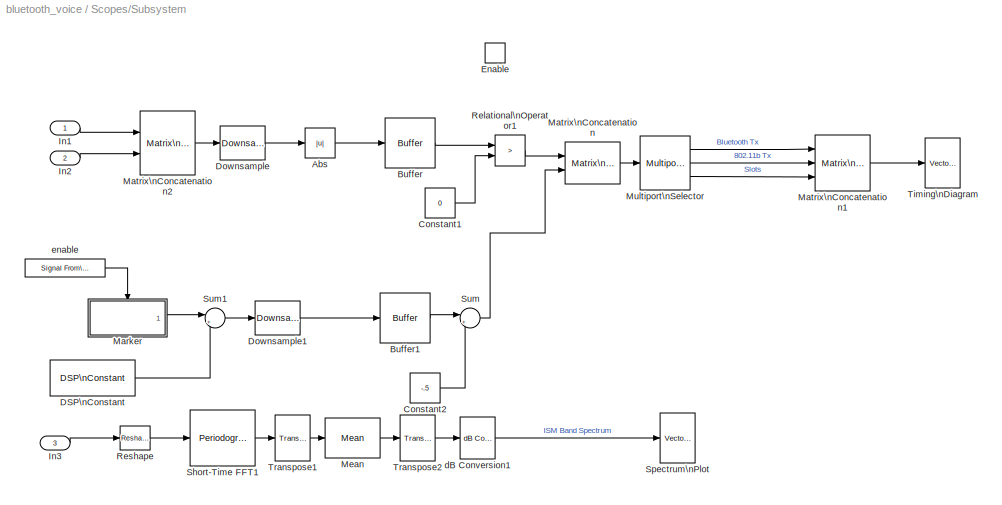
BLOCK [SubSystem] Scopes/Subsystem
  MinAlgLoopOccurrences = off
  Ports = [3, 0, 1]
  PropExecContextAcrossSSBoundary = on
  RTWSystemCode = Auto
  TreatAsAtomicUnit = on
BLOCK [Abs] Scopes/Subsystem/Abs
BLOCK [Reference] Scopes/Subsystem/Buffer  REF=dspbuff3/Buffer
  N = 60*500
  Ports = [1, 1]
  SourceBlock = dspbuff3/Buffer
  SourceType = Buffer
  V = 59*500
  ic = 0
BLOCK [Reference] Scopes/Subsystem/Buffer1  REF=dspbuff3/Buffer
  N = 60*500
  Ports = [1, 1]
  SourceBlock = dspbuff3/Buffer
  SourceType = Buffer
  V = 59*500
  ic = 0
BLOCK [Constant] Scopes/Subsystem/Constant1
  Value = 0
BLOCK [Constant] Scopes/Subsystem/Constant2
  Value = -.5
BLOCK [Reference] Scopes/Subsystem/DSP\nConstant  REF=dspsrcs4/DSP\nConstant
  FramebasedOutput = on
  InterpretAs1D = off
  Ports = [0, 1]
  SampleMode = Discrete
  ShowPortLabels = on
  SourceBlock = dspsrcs4/DSP\nConstant
  SourceType = DSP Constant
  Ts = 625e-6
  Value = .2*[ones(1,36600) zeros(1,62500-36600)]'
  additionalParams = off
  allowOverrides = on
  continuousOutput = Sample-based
  dataType = Inherit from 'Constant value'
  discreteOutput = Frame-based
  fracBitsMode = Best precision
  framePeriod = 625e-6
  isSigned = on
  numFracBits = 15
  sampTime = 625e-6
  udDataType = sfix(16)
  wordLen = 16
BLOCK [Reference] Scopes/Subsystem/Downsample  REF=dspsigops/Downsample
  N = 125
  Ports = [1, 1]
  SourceBlock = dspsigops/Downsample
  SourceType = Downsample
  fmode = Maintain input frame rate
  ic = 0
  phase = 0
  smode = Allow multirate
BLOCK [Reference] Scopes/Subsystem/Downsample1  REF=dspsigops/Downsample
  N = 125
  Ports = [1, 1]
  SourceBlock = dspsigops/Downsample
  SourceType = Downsample
  fmode = Maintain input frame rate
  ic = 0
  phase = 0
  smode = Allow multirate
BLOCK [EnablePort] Scopes/Subsystem/Enable
  Ports = []
BLOCK [Inport] Scopes/Subsystem/In1
  IconDisplay = Port number
  LatchInput = off
BLOCK [Inport] Scopes/Subsystem/In2
  IconDisplay = Port number
  LatchInput = off
  Port = 2
BLOCK [Inport] Scopes/Subsystem/In3
  IconDisplay = Port number
  LatchInput = off
  Port = 3
BLOCK [SubSystem] Scopes/Subsystem/Marker
  MinAlgLoopOccurrences = off
  Ports = [0, 1, 1]
  PropExecContextAcrossSSBoundary = on
  RTWSystemCode = Auto
  TreatAsAtomicUnit = on
BLOCK [Reference] Scopes/Subsystem/Marker/DSP\nConstant  REF=dspsrcs4/DSP\nConstant
  FramebasedOutput = on
  InterpretAs1D = off
  Ports = [0, 1]
  SampleMode = Discrete
  ShowPortLabels = on
  SourceBlock = dspsrcs4/DSP\nConstant
  SourceType = DSP Constant
  Ts = 625e-6
  Value = .1*[ones(1,36600) zeros(1,62500-36600)]'
  additionalParams = off
  allowOverrides = on
  continuousOutput = Sample-based
  dataType = Inherit from 'Constant value'
  discreteOutput = Frame-based
  fracBitsMode = Best precision
  framePeriod = 625e-6
  isSigned = on
  numFracBits = 15
  sampTime = 625e-6
  udDataType = sfix(16)
  wordLen = 16
BLOCK [EnablePort] Scopes/Subsystem/Marker/Enable
  Ports = []
BLOCK [Outport] Scopes/Subsystem/Marker/Tx
  BusOutputAsStruct = off
  IconDisplay = Port number
  InitialOutput = 0
  OutputWhenDisabled = reset
BLOCK [Reference] Scopes/Subsystem/Matrix\nConcatenation  REF=simulink/Math\nOperations/Matrix\nConcatenation
  Ports = [2, 1]
  SourceBlock = simulink/Math\nOperations/Matrix\nConcatenation
  SourceType = Matrix Concatenation
  catMethod = Horizontal
  numInports = 2
BLOCK [Reference] Scopes/Subsystem/Matrix\nConcatenation1  REF=simulink/Math\nOperations/Matrix\nConcatenation
  Ports = [3, 1]
  SourceBlock = simulink/Math\nOperations/Matrix\nConcatenation
  SourceType = Matrix Concatenation
  catMethod = Horizontal
  numInports = 3
BLOCK [Reference] Scopes/Subsystem/Matrix\nConcatenation2  REF=simulink/Math\nOperations/Matrix\nConcatenation
  Ports = [2, 1]
  SourceBlock = simulink/Math\nOperations/Matrix\nConcatenation
  SourceType = Matrix Concatenation
  catMethod = Horizontal
  numInports = 2
BLOCK [Reference] Scopes/Subsystem/Mean  REF=dspstat3/Mean
  DialogController = dspDDGCreate
  DialogControllerArgs = DataTag5
  LockScale = off
  Ports = [1, 1]
  SourceBlock = dspstat3/Mean
  SourceType = Mean
  accumFracLength = 30
  accumMode = Same as input
  accumWordLength = 32
  additionalParams = off
  allowOverrides = on
  outputFracLength = 30
  outputMode = Same as accumulator
  outputWordLength = 32
  overflowMode = off
  reset_popup = None
  roundingMode = Floor
  run = off
BLOCK [Reference] Scopes/Subsystem/Multiport\nSelector  REF=dspindex/Multiport\nSelector
  Ports = [1, 3]
  SourceBlock = dspindex/Multiport\nSelector
  SourceType = Multiport Selector
  idxCellArray = { 1,2,3}
  idxErrMode = Clip Index
  rowsOrCols = Columns
BLOCK [RelationalOperator] Scopes/Subsystem/Relational\nOperator1
  Operator = >
BLOCK [Reference] Scopes/Subsystem/Reshape  REF=simulink/Math\nOperations/Reshape
  OutputDimensionality = Customize
  OutputDimensions = [500,125]
  Ports = [1, 1]
  SourceBlock = simulink/Math\nOperations/Reshape
  SourceType = Reshape
BLOCK [Reference] Scopes/Subsystem/Short-Time FFT1  REF=dspspect3/Periodogram
  Ports = [1, 1]
  Rs = 50
  ShowPortLabels = on
  SourceBlock = dspspect3/Periodogram
  SourceType = Periodogram
  beta = 5
  fftsize = 512
  inheritFFT = off
  navg = 1
  winsamp = Periodic
  wintype = Hanning
BLOCK [Reference] Scopes/Subsystem/Spectrum\nPlot  REF=dspsnks4/Vector\nScope
  AxisGrid = on
  AxisLegend = on
  AxisProperties = off
  AxisZoom = off
  DisplayProperties = off
  Domain = Frequency
  FigPos = figposition([2.5 68.5 70 25]);
  FrameNumber = on
  HorizSpan = 1
  InheritXIncr = off
  LineColors = m
  LineProperties = off
  LineStyles = --
  Memory = off
  OpenScopeAtSimStart = on
  OpenScopeImmediately = off
  Ports = [1]
  ScopeProperties = off
  ShowPortLabels = off
  SourceBlock = dspsnks4/Vector\nScope
  SourceType = Vector Scope
  XIncr = 1e-8
  XLabel = Time
  XRange = [-Fs/2...Fs/2]
  XUnits = Hertz
  YLabel = Magnitude, dB
  YMax = -25.7732682054945
  YMin = -80.906815143504
  YUnits = Magnitude
BLOCK [Sum] Scopes/Subsystem/Sum
  IconShape = round
  Inputs = |++
  Ports = [2, 1]
BLOCK [Sum] Scopes/Subsystem/Sum1
  IconShape = round
  Inputs = |++
  Ports = [2, 1]
BLOCK [Reference] Scopes/Subsystem/Timing\nDiagram  REF=dspsnks4/Vector\nScope
  AxisGrid = on
  AxisLegend = on
  AxisProperties = off
  AxisZoom = off
  DisplayProperties = off
  Domain = User-defined
  FigPos = figposition([2.5 37.5 70 25]);
  FrameNumber = on
  HorizSpan = 1
  InheritXIncr = off
  LineColors = [0 0 1]|[1 0 0]
  LineProperties = off
  LineStyles = -|-
  Memory = off
  OpenScopeAtSimStart = on
  OpenScopeImmediately = off
  Ports = [1]
  ScopeProperties = off
  ShowPortLabels = off
  SourceBlock = dspsnks4/Vector\nScope
  SourceType = Vector Scope
  XIncr = 125*1e-8
  XLabel = Time (s)
  XRange = [0...Fs/2]
  XUnits = Hertz
  YLabel = Amplitude
  YMax = 1.05
  YMin = -0.525
  YUnits = dB
BLOCK [Reference] Scopes/Subsystem/Transpose1  REF=dspmtrx3/Transpose
  Hermitian = off
  Ports = [1, 1]
  SourceBlock = dspmtrx3/Transpose
  SourceType = Transpose
  overflowFlag = on
BLOCK [Reference] Scopes/Subsystem/Transpose2  REF=dspmtrx3/Transpose
  Hermitian = off
  Ports = [1, 1]
  SourceBlock = dspmtrx3/Transpose
  SourceType = Transpose
  overflowFlag = on
BLOCK [Reference] Scopes/Subsystem/dB Conversion1  REF=dspmathops/dB Conversion
  Ports = [1, 1]
  R = 1
  ShowPortLabels = on
  SourceBlock = dspmathops/dB Conversion
  SourceType = dB Conversion
  dBtype = dB
  fuzz = on
  intype = Power
BLOCK [Reference] Scopes/Subsystem/enable  REF=dspsrcs4/Signal From\nWorkspace
  OutputAfterFinalValue = Cyclic repetition
  Ports = [0, 1]
  ShowPortLabels = on
  SourceBlock = dspsrcs4/Signal From\nWorkspace
  SourceType = Signal From Workspace
  Ts = 625e-6
  X = [1 0 0 0 0 0]
  nsamps = 1
BLOCK [ToWorkspace] Scopes/To Workspace
  MaxDataPoints = 1
  SampleTime = -1
  SaveFormat = Array
  VariableName = Num_802_packets
BLOCK [Inport] Scopes/Tx
  IconDisplay = Port number
  LatchInput = off
BLOCK [Inport] Scopes/Tx_802
  IconDisplay = Port number
  LatchInput = off
  Port = 2
BLOCK [Inport] Scopes/Tx_802 Envelope
  IconDisplay = Port number
  LatchInput = off
  Port = 4
BLOCK [SubSystem] Slave Receiver
  MaskDisplay = plot(15,5,95,80,[26, 28,35,44,58,85,87,92,86,59,46,46,38, 31, 27,26],[55,49,45,45,34,15,10,16,17,37,50,58,66,67,62,55],[32,34,37,42,46,46],[67,69,71,70,66,58],[27,25,24,21,23,26],[52,49,45,47,52,58],[35,38,40,42,44],[66,67,66,64,61],[34,32,38,40,34],[60,56,51,55,60])
  MaskIconFrame = on
  MaskIconOpaque = on
  MaskIconRotate = none
  MaskIconUnits = autoscale
  MaskType = Slave Receiver
  MinAlgLoopOccurrences = off
  Ports = [3, 3]
  PropExecContextAcrossSSBoundary = on
  RTWSystemCode = Auto
  TreatAsAtomicUnit = off
BLOCK [Reference] Slave Receiver/Bluetooth\nClock  REF=bluetooth_lib/Bluetooth\nClock  (lib defined in mdl_445d02070f23, mdl_ddbc2443d151)
  Ports = [0, 1]
  ShowPortLabels = on
  SourceBlock = bluetooth_lib/Bluetooth\nClock
  SourceType = Bluetooth Clock
  Ts = (1/1600)/2
BLOCK [SubSystem] Slave Receiver/CVSD\nDecode
  MaskCallbackString = |||
  MaskDisplay = disp('CVSD\\nDecoder')
  MaskEnableString = on,on,on,on
  MaskIconFrame = on
  MaskIconOpaque = on
  MaskIconRotate = none
  MaskIconUnits = autoscale
  MaskInitialization = pos_accum_max = 2^15 - 1;\nneg_accum_max = -2^15 + 1;
  MaskPromptString = Minimum Step Size|Maximum Step Size|Accumulator Decay|Step Decay
  MaskStyleString = edit,edit,edit,edit
  MaskTabNameString = ,,,
  MaskToolTipString = on,on,on,on
  MaskTunableValueString = on,on,on,on
  MaskType = CVSD Decoder
  MaskValueString = 10|1280|1-1/32|1-1/1024
  MaskVarAliasString = ,,,
  MaskVariables = min_step=@1;max_step=@2;accum_decay=@3;step_decay=@4;
  MaskVisibilityString = on,on,on,on
  MinAlgLoopOccurrences = off
  Ports = [1, 1, 1]
  PropExecContextAcrossSSBoundary = on
  RTWSystemCode = Auto
  TreatAsAtomicUnit = on
BLOCK [Reference] Slave Receiver/CVSD\nDecode/Delay  REF=dspsigops/Delay
  Ports = [1, 1]
  SourceBlock = dspsigops/Delay
  SourceType = Delay
  delay = 1
  dif_ic_for_ch = off
  dif_ic_for_dly = off
  dly_unit = Samples
  ic = 10
  ic_detail = on
  reset_popup = None
BLOCK [Reference] Slave Receiver/CVSD\nDecode/Digital\nFilter Design  REF=dsparch4/Digital\nFilter Design
  Ports = [1, 1]
  ShowPortLabels = on
  SourceBlock = dsparch4/Digital\nFilter Design
  SourceType = Unknown
  UserData = DataTag6
  UserDataPersistent = on
BLOCK [EnablePort] Slave Receiver/CVSD\nDecode/Enable
  Ports = []
BLOCK [Gain] Slave Receiver/CVSD\nDecode/Gain1
  Gain = 1/32768
BLOCK [Inport] Slave Receiver/CVSD\nDecode/In1
  IconDisplay = Port number
  LatchInput = off
BLOCK [Outport] Slave Receiver/CVSD\nDecode/Out2
  BusOutputAsStruct = off
  IconDisplay = Port number
BLOCK [Reference] Slave Receiver/CVSD\nDecode/Unipolar to\nBipolar\nConverter  REF=commutil2/Unipolar to\nBipolar\nConverter
  M = 2
  Ports = [1, 1]
  ShowPortLabels = on
  SourceBlock = commutil2/Unipolar to\nBipolar\nConverter
  SourceType = Unipolar to Bipolar Converter
  polarity = Negative
BLOCK [SubSystem] Slave Receiver/CVSD\nDecode/Update accum
  MinAlgLoopOccurrences = off
  Ports = [3, 1]
  PropExecContextAcrossSSBoundary = on
  RTWSystemCode = Auto
  TreatAsAtomicUnit = off
BLOCK [Gain] Slave Receiver/CVSD\nDecode/Update accum/Gain
  Gain = accum_decay
BLOCK [Product] Slave Receiver/CVSD\nDecode/Update accum/Product
  Ports = [2, 1]
  RndMeth = Floor
BLOCK [Saturate] Slave Receiver/CVSD\nDecode/Update accum/Saturation
  LowerLimit = neg_accum_max
  UpperLimit = pos_accum_max
BLOCK [Sum] Slave Receiver/CVSD\nDecode/Update accum/Sum1
  IconShape = round
  Inputs = |++
  Ports = [2, 1]
BLOCK [Inport] Slave Receiver/CVSD\nDecode/Update accum/accum(n)
  IconDisplay = Port number
  LatchInput = off
  Port = 3
BLOCK [Outport] Slave Receiver/CVSD\nDecode/Update accum/accum(n+1)
  BusOutputAsStruct = off
  IconDisplay = Port number
BLOCK [Inport] Slave Receiver/CVSD\nDecode/Update accum/stepsize(n+1)
  IconDisplay = Port number
  LatchInput = off
BLOCK [Inport] Slave Receiver/CVSD\nDecode/Update accum/u
  IconDisplay = Port number
  LatchInput = off
  Port = 2
BLOCK [SubSystem] Slave Receiver/CVSD\nDecode/Update runner
  MinAlgLoopOccurrences = off
  Ports = [2, 1]
  PropExecContextAcrossSSBoundary = on
  RTWSystemCode = Auto
  TreatAsAtomicUnit = off
BLOCK [Reference] Slave Receiver/CVSD\nDecode/Update runner/Bitwise\nLogical Operator  REF=simulink/Logic and Bit\nOperations/Bitwise\nOperator
  BitMask = 15
  BitMaskRealWorld = Stored Integer
  NumInputPorts = 1
  Ports = [1, 1]
  SourceBlock = simulink/Logic and Bit\nOperations/Bitwise\nOperator
  SourceType = Bitwise Operator
  UseBitMask = on
  logicop = AND
BLOCK [DataTypeConversion] Slave Receiver/CVSD\nDecode/Update runner/Data Type Conversion
  OutDataTypeMode = uint16
BLOCK [DataTypeConversion] Slave Receiver/CVSD\nDecode/Update runner/Data Type Conversion1
  OutDataTypeMode = double
BLOCK [Fcn] Slave Receiver/CVSD\nDecode/Update runner/Fcn
  Expr = u==1
BLOCK [Gain] Slave Receiver/CVSD\nDecode/Update runner/Gain
  Gain = 2
BLOCK [Sum] Slave Receiver/CVSD\nDecode/Update runner/Sum1
  IconShape = round
  Inputs = |++
  Ports = [2, 1]
BLOCK [Inport] Slave Receiver/CVSD\nDecode/Update runner/runner(n)
  IconDisplay = Port number
  LatchInput = off
  Port = 2
BLOCK [Outport] Slave Receiver/CVSD\nDecode/Update runner/runner(n+1)
  BusOutputAsStruct = off
  IconDisplay = Port number
BLOCK [Inport] Slave Receiver/CVSD\nDecode/Update runner/u
  IconDisplay = Port number
  LatchInput = off
BLOCK [SubSystem] Slave Receiver/CVSD\nDecode/Update stepsize
  MinAlgLoopOccurrences = off
  Ports = [2, 1]
  PropExecContextAcrossSSBoundary = on
  RTWSystemCode = Auto
  TreatAsAtomicUnit = off
BLOCK [If] Slave Receiver/CVSD\nDecode/Update stepsize/If
  IfExpression = (u1 == 0) | (u1== 15)
  Ports = [1, 2]
BLOCK [Merge] Slave Receiver/CVSD\nDecode/Update stepsize/Merge1
  Ports = [2, 1]
BLOCK [SubSystem] Slave Receiver/CVSD\nDecode/Update stepsize/Update
  MinAlgLoopOccurrences = off
  Ports = [1, 1, 0, 0, 0, 0, 0, 1]
  PropExecContextAcrossSSBoundary = on
  RTWSystemCode = Auto
  TreatAsAtomicUnit = on
BLOCK [ActionPort] Slave Receiver/CVSD\nDecode/Update stepsize/Update/Action Port
  ActionType = then
BLOCK [Constant] Slave Receiver/CVSD\nDecode/Update stepsize/Update/Constant
  Value = min_step
BLOCK [Constant] Slave Receiver/CVSD\nDecode/Update stepsize/Update/Constant1
  Value = max_step
BLOCK [MinMax] Slave Receiver/CVSD\nDecode/Update stepsize/Update/MinMax
  Function = min
  Inputs = 2
  Ports = [2, 1]
BLOCK [Sum] Slave Receiver/CVSD\nDecode/Update stepsize/Update/Sum2
  IconShape = round
  Inputs = |++
  Ports = [2, 1]
BLOCK [Inport] Slave Receiver/CVSD\nDecode/Update stepsize/Update/stepsize
  IconDisplay = Port number
  LatchInput = off
BLOCK [Outport] Slave Receiver/CVSD\nDecode/Update stepsize/Update/stepsize(n+1)
  BusOutputAsStruct = off
  IconDisplay = Port number
BLOCK [SubSystem] Slave Receiver/CVSD\nDecode/Update stepsize/Update1
  MinAlgLoopOccurrences = off
  Ports = [1, 1, 0, 0, 0, 0, 0, 1]
  PropExecContextAcrossSSBoundary = on
  RTWSystemCode = Auto
  TreatAsAtomicUnit = on
BLOCK [ActionPort] Slave Receiver/CVSD\nDecode/Update stepsize/Update1/Action Port
  ActionType = else
BLOCK [Constant] Slave Receiver/CVSD\nDecode/Update stepsize/Update1/Constant1
  Value = min_step
BLOCK [Gain] Slave Receiver/CVSD\nDecode/Update stepsize/Update1/Gain
  Gain = step_decay
BLOCK [MinMax] Slave Receiver/CVSD\nDecode/Update stepsize/Update1/MinMax
  Function = max
  Inputs = 2
  Ports = [2, 1]
BLOCK [Inport] Slave Receiver/CVSD\nDecode/Update stepsize/Update1/stepsize
  IconDisplay = Port number
  LatchInput = off
BLOCK [Outport] Slave Receiver/CVSD\nDecode/Update stepsize/Update1/stepsize(n+1)
  BusOutputAsStruct = off
  IconDisplay = Port number
BLOCK [Inport] Slave Receiver/CVSD\nDecode/Update stepsize/runner(n+1)
  IconDisplay = Port number
  LatchInput = off
BLOCK [Inport] Slave Receiver/CVSD\nDecode/Update stepsize/stepsize(n)
  IconDisplay = Port number
  LatchInput = off
  Port = 2
BLOCK [Outport] Slave Receiver/CVSD\nDecode/Update stepsize/stepsize(n+1)
  BusOutputAsStruct = off
  IconDisplay = Port number
BLOCK [Reference] Slave Receiver/CVSD\nDecode/accum  REF=dspsigops/Delay
  Ports = [1, 1]
  SourceBlock = dspsigops/Delay
  SourceType = Delay
  delay = 1
  dif_ic_for_ch = off
  dif_ic_for_dly = off
  dly_unit = Samples
  ic = 0
  ic_detail = on
  reset_popup = None
BLOCK [Reference] Slave Receiver/CVSD\nDecode/stepsize  REF=dspsigops/Delay
  Ports = [1, 1]
  SourceBlock = dspsigops/Delay
  SourceType = Delay
  delay = 1
  dif_ic_for_ch = off
  dif_ic_for_dly = off
  dly_unit = Samples
  ic = min_step
  ic_detail = on
  reset_popup = None
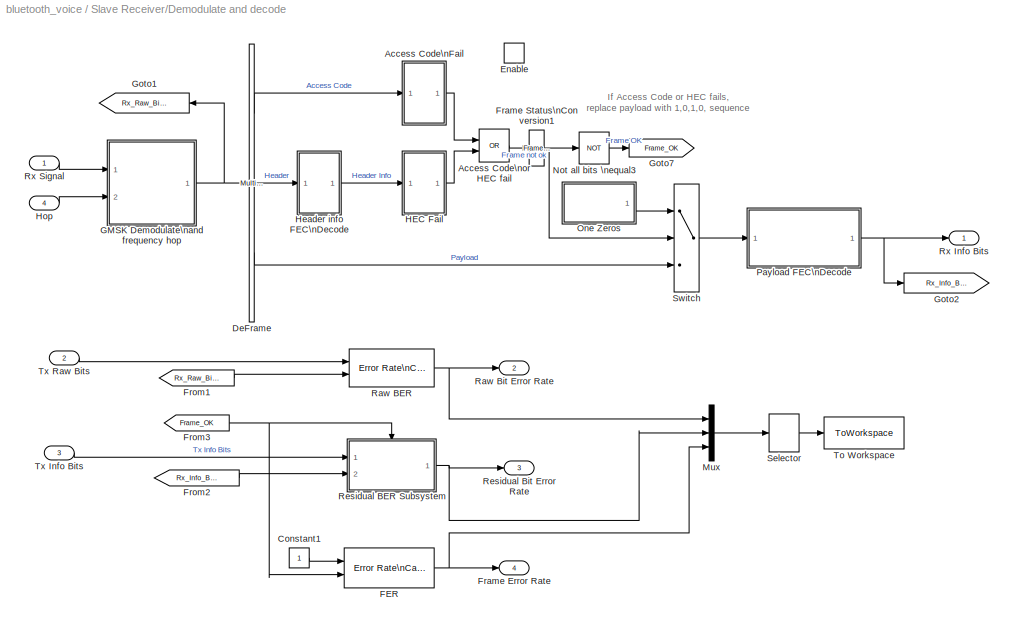
BLOCK [SubSystem] Slave Receiver/Demodulate and decode
  MinAlgLoopOccurrences = off
  Ports = [4, 4, 1]
  PropExecContextAcrossSSBoundary = on
  RTWSystemCode = Auto
  TreatAsAtomicUnit = on
BLOCK [SubSystem] Slave Receiver/Demodulate and decode/Access Code\nFail
  MinAlgLoopOccurrences = off
  Ports = [1, 1]
  PropExecContextAcrossSSBoundary = on
  RTWSystemCode = Auto
  TreatAsAtomicUnit = off
BLOCK [Reference] Slave Receiver/Demodulate and decode/Access Code\nFail/Access Code  REF=dspsrcs4/DSP\nConstant
  FramebasedOutput = on
  InterpretAs1D = off
  Ports = [0, 1]
  SampleMode = Discrete
  ShowPortLabels = on
  SourceBlock = dspsrcs4/DSP\nConstant
  SourceType = DSP Constant
  Ts = Slot_Ts
  Value = Access_Code
  additionalParams = off
  allowOverrides = on
  continuousOutput = Sample-based
  dataType = Inherit from 'Constant value'
  discreteOutput = Frame-based
  fracBitsMode = Best precision
  framePeriod = Slot_Ts
  isSigned = on
  numFracBits = 15
  sampTime = Slot_Ts
  udDataType = sfix(16)
  wordLen = 16
BLOCK [Constant] Slave Receiver/Demodulate and decode/Access Code\nFail/Constant
  Value = 57
BLOCK [Inport] Slave Receiver/Demodulate and decode/Access Code\nFail/In
  IconDisplay = Port number
  LatchInput = off
BLOCK [RelationalOperator] Slave Receiver/Demodulate and decode/Access Code\nFail/Less than \n57 bits good
  Operator = <
BLOCK [Outport] Slave Receiver/Demodulate and decode/Access Code\nFail/Out
  BusOutputAsStruct = off
  IconDisplay = Port number
BLOCK [RelationalOperator] Slave Receiver/Demodulate and decode/Access Code\nFail/Relational\nOperator
  Operator = ==
BLOCK [Selector] Slave Receiver/Demodulate and decode/Access Code\nFail/Strip of preamble \nand trailer
  Elements = [5:68]
  InputPortWidth = 72
  Ports = [1, 1]
BLOCK [Selector] Slave Receiver/Demodulate and decode/Access Code\nFail/Strip of preamble \nand trailer1
  Elements = [5:68]
  InputPortWidth = 72
  Ports = [1, 1]
BLOCK [Sum] Slave Receiver/Demodulate and decode/Access Code\nFail/Total\ncorrect\nbits
  IconShape = round
  Inputs = 1
  Ports = [1, 1]
BLOCK [Logic] Slave Receiver/Demodulate and decode/Access Code\nor HEC fail
  Operator = OR
  Ports = [2, 1]
BLOCK [Constant] Slave Receiver/Demodulate and decode/Constant1
BLOCK [Reference] Slave Receiver/Demodulate and decode/DeFrame  REF=dspindex/Multiport\nSelector
  Ports = [1, 3]
  SourceBlock = dspindex/Multiport\nSelector
  SourceType = Multiport Selector
  idxCellArray = {  1:72, 73:126,127:366}
  idxErrMode = Clip Index
  rowsOrCols = Rows
BLOCK [EnablePort] Slave Receiver/Demodulate and decode/Enable
  Ports = []
BLOCK [Reference] Slave Receiver/Demodulate and decode/FER  REF=commsink2/Error Rate\nCalculation
  N = 0
  PMode = Port
  Ports = [2, 1]
  RsMode2 = off
  SourceBlock = commsink2/Error Rate\nCalculation
  SourceType = Error Rate Calculation
  WsName = ErrorVec
  cp_mode = Entire frame
  maxBits = 1e6
  numErr = 100
  st_delay = 0
  stop = on
  subframe = []
BLOCK [Outport] Slave Receiver/Demodulate and decode/Frame Error Rate
  BusOutputAsStruct = off
  IconDisplay = Port number
  InitialOutput = 0
  Port = 4
BLOCK [Reference] Slave Receiver/Demodulate and decode/Frame Status\nConversion1  REF=dspsigattribs/Frame Status\nConversion
  Ports = [1, 1]
  ShowPortLabels = off
  SourceBlock = dspsigattribs/Frame Status\nConversion
  SourceType = Frame Status Conversion
  growRefPort = off
  outframe = Sample-based
BLOCK [From] Slave Receiver/Demodulate and decode/From1
  CloseFcn = tagdialog Close
  DialogController = Simulink.DDGSource
  GotoTag = Rx_Raw_Bits
BLOCK [From] Slave Receiver/Demodulate and decode/From2
  CloseFcn = tagdialog Close
  DialogController = Simulink.DDGSource
  GotoTag = Rx_Info_Bits
BLOCK [From] Slave Receiver/Demodulate and decode/From3
  CloseFcn = tagdialog Close
  DialogController = Simulink.DDGSource
  GotoTag = Frame_OK
BLOCK [SubSystem] Slave Receiver/Demodulate and decode/GMSK Demodulate\nand frequency hop
  MinAlgLoopOccurrences = off
  Ports = [2, 1]
  PropExecContextAcrossSSBoundary = on
  RTWSystemCode = Auto
  TreatAsAtomicUnit = off
BLOCK [Selector] Slave Receiver/Demodulate and decode/GMSK Demodulate\nand frequency hop/Extract 366 bits\nwith one symbol delay
  Elements = [2:367]
  InputPortWidth = 625
  Ports = [1, 1]
BLOCK [Reference] Slave Receiver/Demodulate and decode/GMSK Demodulate\nand frequency hop/Frame Status\nConversion  REF=dspsigattribs/Frame Status\nConversion
  Ports = [1, 1]
  ShowPortLabels = off
  SourceBlock = dspsigattribs/Frame Status\nConversion
  SourceType = Frame Status Conversion
  growRefPort = off
  outframe = Frame-based
BLOCK [Reference] Slave Receiver/Demodulate and decode/GMSK Demodulate\nand frequency hop/Generate\n79 possible carriers\n-39MHz to 39MHz\n  REF=commdigbbndfm2/M-FSK\nModulator\nBaseband
  Enc = Binary
  InType = Integer
  M = 79
  Ports = [1, 1]
  SourceBlock = commdigbbndfm2/M-FSK\nModulator\nBaseband
  SourceType = M-FSK Modulator Baseband
  freqSep = 1e6
  numSamp = 6.25e4
  phaseType = Continuous
BLOCK [Inport] Slave Receiver/Demodulate and decode/GMSK Demodulate\nand frequency hop/Hop
  IconDisplay = Port number
  LatchInput = off
  Port = 2
BLOCK [Reference] Slave Receiver/Demodulate and decode/GMSK Demodulate\nand frequency hop/IF Filter\nSelect 1MHz band1  REF=dsparch4/Digital\nFilter Design
  Ports = [1, 1]
  ShowPortLabels = on
  SourceBlock = dsparch4/Digital\nFilter Design
  SourceType = Unknown
  UserData = DataTag7
  UserDataPersistent = on
BLOCK [Reference] Slave Receiver/Demodulate and decode/GMSK Demodulate\nand frequency hop/M-FSK\nDemodulator\nBaseband  REF=commdigbbndfm2/M-FSK\nDemodulator\nBaseband
  Dec = Binary
  M = 2
  OutType = Bit
  Ports = [1, 1]
  SourceBlock = commdigbbndfm2/M-FSK\nDemodulator\nBaseband
  SourceType = M-FSK Demodulator Baseband
  freqSep = 2*150e3
  numSamp = 100
BLOCK [Math] Slave Receiver/Demodulate and decode/GMSK Demodulate\nand frequency hop/Math\nFunction
  Operator = conj
  Ports = [1, 1]
BLOCK [Reference] Slave Receiver/Demodulate and decode/GMSK Demodulate\nand frequency hop/Move to a\nsymbol\nboundary  REF=dspsigops/Delay
  Ports = [1, 1]
  SourceBlock = dspsigops/Delay
  SourceType = Delay
  delay = 100-50
  dif_ic_for_ch = off
  dif_ic_for_dly = off
  dly_unit = Samples
  ic = 0
  ic_detail = off
  reset_popup = None
BLOCK [Product] Slave Receiver/Demodulate and decode/GMSK Demodulate\nand frequency hop/Product1
  Ports = [2, 1]
  RndMeth = Floor
BLOCK [Outport] Slave Receiver/Demodulate and decode/GMSK Demodulate\nand frequency hop/Rx Raw Bits
  BusOutputAsStruct = off
  IconDisplay = Port number
BLOCK [Inport] Slave Receiver/Demodulate and decode/GMSK Demodulate\nand frequency hop/Rx Signal
  IconDisplay = Port number
  LatchInput = off
BLOCK [Goto] Slave Receiver/Demodulate and decode/Goto1
  DialogController = Simulink.DDGSource
  GotoTag = Rx_Raw_Bits
  TagVisibility = local
BLOCK [Goto] Slave Receiver/Demodulate and decode/Goto2
  DialogController = Simulink.DDGSource
  GotoTag = Rx_Info_Bits
  TagVisibility = local
BLOCK [Goto] Slave Receiver/Demodulate and decode/Goto7
  DialogController = Simulink.DDGSource
  GotoTag = Frame_OK
  TagVisibility = local
BLOCK [SubSystem] Slave Receiver/Demodulate and decode/HEC Fail
  MinAlgLoopOccurrences = off
  Ports = [1, 1]
  PropExecContextAcrossSSBoundary = on
  RTWSystemCode = Auto
  TreatAsAtomicUnit = off
BLOCK [Reference] Slave Receiver/Demodulate and decode/HEC Fail/General CRC\nSyndrome\nDetector  REF=commcrc2/General CRC\nSyndrome\nDetector
  Ports = [1, 2]
  SourceBlock = commcrc2/General CRC\nSyndrome\nDetector
  SourceType = General CRC Syndrome Detector
  genPoly = [1 1 0 1 0 0 1 1 1]
  iniStates = [1 0 0 1 0 1 1 0]
  numChecksums = 1
BLOCK [Inport] Slave Receiver/Demodulate and decode/HEC Fail/In
  IconDisplay = Port number
  LatchInput = off
BLOCK [Outport] Slave Receiver/Demodulate and decode/HEC Fail/Out
  BusOutputAsStruct = off
  IconDisplay = Port number
BLOCK [Terminator] Slave Receiver/Demodulate and decode/HEC Fail/Terminator
BLOCK [SubSystem] Slave Receiver/Demodulate and decode/Header info FEC\nDecode
  MinAlgLoopOccurrences = off
  Ports = [1, 1]
  PropExecContextAcrossSSBoundary = on
  RTWSystemCode = Auto
  TreatAsAtomicUnit = off
BLOCK [Constant] Slave Receiver/Demodulate and decode/Header info FEC\nDecode/Constant1
  Value = .5
BLOCK [Reference] Slave Receiver/Demodulate and decode/Header info FEC\nDecode/Decode\nFEC  REF=commsequence2/Derepeat
  N = 3
  Ports = [1, 1]
  SourceBlock = commsequence2/Derepeat
  SourceType = Derepeat
  ic = 0
  mode = Maintain input frame rate
BLOCK [Inport] Slave Receiver/Demodulate and decode/Header info FEC\nDecode/In
  IconDisplay = Port number
  LatchInput = off
BLOCK [Outport] Slave Receiver/Demodulate and decode/Header info FEC\nDecode/Out
  BusOutputAsStruct = off
  IconDisplay = Port number
BLOCK [RelationalOperator] Slave Receiver/Demodulate and decode/Header info FEC\nDecode/Threshold
  Operator = >
BLOCK [Inport] Slave Receiver/Demodulate and decode/Hop
  IconDisplay = Port number
  LatchInput = off
  Port = 4
  SampleTime = Slot_Ts
BLOCK [Mux] Slave Receiver/Demodulate and decode/Mux
  DisplayOption = bar
  Inputs = 3
  Ports = [3, 1]
BLOCK [Logic] Slave Receiver/Demodulate and decode/Not all bits \nequal3
  Inputs = 1
  Operator = NOT
  Ports = [1, 1]
BLOCK [SubSystem] Slave Receiver/Demodulate and decode/One Zeros
  MinAlgLoopOccurrences = off
  Ports = [0, 1]
  PropExecContextAcrossSSBoundary = on
  RTWSystemCode = Auto
  TreatAsAtomicUnit = off
BLOCK [Constant] Slave Receiver/Demodulate and decode/One Zeros/Constant
  Value = HV_Type
BLOCK [SubSystem] Slave Receiver/Demodulate and decode/One Zeros/FEC HV1
  MinAlgLoopOccurrences = off
  Ports = [0, 1, 1]
  PropExecContextAcrossSSBoundary = on
  RTWSystemCode = Auto
  TreatAsAtomicUnit = on
BLOCK [Reference] Slave Receiver/Demodulate and decode/One Zeros/FEC HV1/1 0 1 0 1 0 ...  REF=dspsrcs4/DSP\nConstant
  FramebasedOutput = on
  InterpretAs1D = off
  Ports = [0, 1]
  SampleMode = Discrete
  ShowPortLabels = on
  SourceBlock = dspsrcs4/DSP\nConstant
  SourceType = DSP Constant
  Ts = 30*(1/Input_Fs)/6
  Value = One_Zero_Payload(1:80)
  additionalParams = off
  allowOverrides = on
  continuousOutput = Sample-based
  dataType = Inherit from 'Constant value'
  discreteOutput = Frame-based
  fracBitsMode = Best precision
  framePeriod = 30*(1/Input_Fs)/6
  isSigned = on
  numFracBits = 15
  sampTime = 30*(1/Input_Fs)/6
  udDataType = sfix(16)
  wordLen = 16
BLOCK [EnablePort] Slave Receiver/Demodulate and decode/One Zeros/FEC HV1/Enable
  Ports = []
BLOCK [Reference] Slave Receiver/Demodulate and decode/One Zeros/FEC HV1/FEC1  REF=dspsigops/Repeat
  N = 3
  Ports = [1, 1]
  SourceBlock = dspsigops/Repeat
  SourceType = Repeat
  ic = 0
  mode = Maintain input frame rate
BLOCK [Outport] Slave Receiver/Demodulate and decode/One Zeros/FEC HV1/Ones Zeros
  BusOutputAsStruct = off
  IconDisplay = Port number
BLOCK [SubSystem] Slave Receiver/Demodulate and decode/One Zeros/FEC HV2
  MinAlgLoopOccurrences = off
  Ports = [0, 1, 1]
  PropExecContextAcrossSSBoundary = on
  RTWSystemCode = Auto
  TreatAsAtomicUnit = on
BLOCK [Reference] Slave Receiver/Demodulate and decode/One Zeros/FEC HV2/1 0 1 0 1 0 ...2  REF=dspsrcs4/DSP\nConstant
  FramebasedOutput = on
  InterpretAs1D = off
  Ports = [0, 1]
  SampleMode = Discrete
  ShowPortLabels = on
  SourceBlock = dspsrcs4/DSP\nConstant
  SourceType = DSP Constant
  Ts = Slot_Ts
  Value = One_Zero_Payload(1:160)
  additionalParams = off
  allowOverrides = on
  continuousOutput = Sample-based
  dataType = Inherit from 'Constant value'
  discreteOutput = Frame-based
  fracBitsMode = Best precision
  framePeriod = Slot_Ts
  isSigned = on
  numFracBits = 15
  sampTime = Slot_Ts
  udDataType = sfix(16)
  wordLen = 16
BLOCK [EnablePort] Slave Receiver/Demodulate and decode/One Zeros/FEC HV2/Enable
  Ports = []
BLOCK [Reference] Slave Receiver/Demodulate and decode/One Zeros/FEC HV2/Matrix\nConcatenation  REF=simulink/Math\nOperations/Matrix\nConcatenation
  Ports = [16, 1]
  SourceBlock = simulink/Math\nOperations/Matrix\nConcatenation
  SourceType = Matrix Concatenation
  catMethod = Vertical
  numInports = 16
BLOCK [Reference] Slave Receiver/Demodulate and decode/One Zeros/FEC HV2/Multiport\nSelector  REF=dspindex/Multiport\nSelector
  Ports = [1, 16]
  SourceBlock = dspindex/Multiport\nSelector
  SourceType = Multiport Selector
  idxCellArray = { 1:10, 11:20,21:30,31:40,41:50,51:60,61:70,71:80,81:90,91:100,101:110,111:120,121:130,131:140,141:150,151:160}
  idxErrMode = Clip Index
  rowsOrCols = Rows
BLOCK [Outport] Slave Receiver/Demodulate and decode/One Zeros/FEC HV2/Ones Zeros
  BusOutputAsStruct = off
  IconDisplay = Port number
BLOCK [Reference] Slave Receiver/Demodulate and decode/One Zeros/FEC HV2/Shortened\nHamming (15,10)\nEncoder  REF=commblkcod2/Binary\nCyclic Encoder
  Ports = [1, 1]
  ShowPortLabels = on
  SourceBlock = commblkcod2/Binary\nCyclic Encoder
  SourceType = Binary Cyclic Encoder
  n = 15
  p = [1 1 0 1 0 1]
BLOCK [Reference] Slave Receiver/Demodulate and decode/One Zeros/FEC HV2/Shortened\nHamming (15,10)\nEncoder1  REF=commblkcod2/Binary\nCyclic Encoder
  Ports = [1, 1]
  ShowPortLabels = on
  SourceBlock = commblkcod2/Binary\nCyclic Encoder
  SourceType = Binary Cyclic Encoder
  n = 15
  p = [1 1 0 1 0 1]
BLOCK [Reference] Slave Receiver/Demodulate and decode/One Zeros/FEC HV2/Shortened\nHamming (15,10)\nEncoder10  REF=commblkcod2/Binary\nCyclic Encoder
  Ports = [1, 1]
  ShowPortLabels = on
  SourceBlock = commblkcod2/Binary\nCyclic Encoder
  SourceType = Binary Cyclic Encoder
  n = 15
  p = [1 1 0 1 0 1]
BLOCK [Reference] Slave Receiver/Demodulate and decode/One Zeros/FEC HV2/Shortened\nHamming (15,10)\nEncoder11  REF=commblkcod2/Binary\nCyclic Encoder
  Ports = [1, 1]
  ShowPortLabels = on
  SourceBlock = commblkcod2/Binary\nCyclic Encoder
  SourceType = Binary Cyclic Encoder
  n = 15
  p = [1 1 0 1 0 1]
BLOCK [Reference] Slave Receiver/Demodulate and decode/One Zeros/FEC HV2/Shortened\nHamming (15,10)\nEncoder12  REF=commblkcod2/Binary\nCyclic Encoder
  Ports = [1, 1]
  ShowPortLabels = on
  SourceBlock = commblkcod2/Binary\nCyclic Encoder
  SourceType = Binary Cyclic Encoder
  n = 15
  p = [1 1 0 1 0 1]
BLOCK [Reference] Slave Receiver/Demodulate and decode/One Zeros/FEC HV2/Shortened\nHamming (15,10)\nEncoder13  REF=commblkcod2/Binary\nCyclic Encoder
  Ports = [1, 1]
  ShowPortLabels = on
  SourceBlock = commblkcod2/Binary\nCyclic Encoder
  SourceType = Binary Cyclic Encoder
  n = 15
  p = [1 1 0 1 0 1]
BLOCK [Reference] Slave Receiver/Demodulate and decode/One Zeros/FEC HV2/Shortened\nHamming (15,10)\nEncoder14  REF=commblkcod2/Binary\nCyclic Encoder
  Ports = [1, 1]
  ShowPortLabels = on
  SourceBlock = commblkcod2/Binary\nCyclic Encoder
  SourceType = Binary Cyclic Encoder
  n = 15
  p = [1 1 0 1 0 1]
BLOCK [Reference] Slave Receiver/Demodulate and decode/One Zeros/FEC HV2/Shortened\nHamming (15,10)\nEncoder15  REF=commblkcod2/Binary\nCyclic Encoder
  Ports = [1, 1]
  ShowPortLabels = on
  SourceBlock = commblkcod2/Binary\nCyclic Encoder
  SourceType = Binary Cyclic Encoder
  n = 15
  p = [1 1 0 1 0 1]
BLOCK [Reference] Slave Receiver/Demodulate and decode/One Zeros/FEC HV2/Shortened\nHamming (15,10)\nEncoder2  REF=commblkcod2/Binary\nCyclic Encoder
  Ports = [1, 1]
  ShowPortLabels = on
  SourceBlock = commblkcod2/Binary\nCyclic Encoder
  SourceType = Binary Cyclic Encoder
  n = 15
  p = [1 1 0 1 0 1]
BLOCK [Reference] Slave Receiver/Demodulate and decode/One Zeros/FEC HV2/Shortened\nHamming (15,10)\nEncoder3  REF=commblkcod2/Binary\nCyclic Encoder
  Ports = [1, 1]
  ShowPortLabels = on
  SourceBlock = commblkcod2/Binary\nCyclic Encoder
  SourceType = Binary Cyclic Encoder
  n = 15
  p = [1 1 0 1 0 1]
BLOCK [Reference] Slave Receiver/Demodulate and decode/One Zeros/FEC HV2/Shortened\nHamming (15,10)\nEncoder4  REF=commblkcod2/Binary\nCyclic Encoder
  Ports = [1, 1]
  ShowPortLabels = on
  SourceBlock = commblkcod2/Binary\nCyclic Encoder
  SourceType = Binary Cyclic Encoder
  n = 15
  p = [1 1 0 1 0 1]
BLOCK [Reference] Slave Receiver/Demodulate and decode/One Zeros/FEC HV2/Shortened\nHamming (15,10)\nEncoder5  REF=commblkcod2/Binary\nCyclic Encoder
  Ports = [1, 1]
  ShowPortLabels = on
  SourceBlock = commblkcod2/Binary\nCyclic Encoder
  SourceType = Binary Cyclic Encoder
  n = 15
  p = [1 1 0 1 0 1]
BLOCK [Reference] Slave Receiver/Demodulate and decode/One Zeros/FEC HV2/Shortened\nHamming (15,10)\nEncoder6  REF=commblkcod2/Binary\nCyclic Encoder
  Ports = [1, 1]
  ShowPortLabels = on
  SourceBlock = commblkcod2/Binary\nCyclic Encoder
  SourceType = Binary Cyclic Encoder
  n = 15
  p = [1 1 0 1 0 1]
BLOCK [Reference] Slave Receiver/Demodulate and decode/One Zeros/FEC HV2/Shortened\nHamming (15,10)\nEncoder7  REF=commblkcod2/Binary\nCyclic Encoder
  Ports = [1, 1]
  ShowPortLabels = on
  SourceBlock = commblkcod2/Binary\nCyclic Encoder
  SourceType = Binary Cyclic Encoder
  n = 15
  p = [1 1 0 1 0 1]
BLOCK [Reference] Slave Receiver/Demodulate and decode/One Zeros/FEC HV2/Shortened\nHamming (15,10)\nEncoder8  REF=commblkcod2/Binary\nCyclic Encoder
  Ports = [1, 1]
  ShowPortLabels = on
  SourceBlock = commblkcod2/Binary\nCyclic Encoder
  SourceType = Binary Cyclic Encoder
  n = 15
  p = [1 1 0 1 0 1]
BLOCK [Reference] Slave Receiver/Demodulate and decode/One Zeros/FEC HV2/Shortened\nHamming (15,10)\nEncoder9  REF=commblkcod2/Binary\nCyclic Encoder
  Ports = [1, 1]
  ShowPortLabels = on
  SourceBlock = commblkcod2/Binary\nCyclic Encoder
  SourceType = Binary Cyclic Encoder
  n = 15
  p = [1 1 0 1 0 1]
BLOCK [SubSystem] Slave Receiver/Demodulate and decode/One Zeros/FEC HV3 (None)
  MinAlgLoopOccurrences = off
  Ports = [0, 1, 1]
  PropExecContextAcrossSSBoundary = on
  RTWSystemCode = Auto
  TreatAsAtomicUnit = on
BLOCK [Reference] Slave Receiver/Demodulate and decode/One Zeros/FEC HV3 (None)/1 0 1 0 1 0 ...  REF=dspsrcs4/DSP\nConstant
  FramebasedOutput = on
  InterpretAs1D = off
  Ports = [0, 1]
  SampleMode = Discrete
  ShowPortLabels = on
  SourceBlock = dspsrcs4/DSP\nConstant
  SourceType = DSP Constant
  Ts = 1/1600
  Value = One_Zero_Payload(1:240)
  additionalParams = off
  allowOverrides = on
  continuousOutput = Sample-based
  dataType = Inherit from 'Constant value'
  discreteOutput = Frame-based
  fracBitsMode = Best precision
  framePeriod = 1/1600
  isSigned = on
  numFracBits = 15
  sampTime = 1/1600
  udDataType = sfix(16)
  wordLen = 16
BLOCK [EnablePort] Slave Receiver/Demodulate and decode/One Zeros/FEC HV3 (None)/Enable
  Ports = []
BLOCK [Outport] Slave Receiver/Demodulate and decode/One Zeros/FEC HV3 (None)/Ones Zeros
  BusOutputAsStruct = off
  IconDisplay = Port number
  InitialOutput = One_Zero_Payload(1:240)
BLOCK [Fcn] Slave Receiver/Demodulate and decode/One Zeros/Fcn
  Expr = u==1
BLOCK [Fcn] Slave Receiver/Demodulate and decode/One Zeros/Fcn1
  Expr = u==2
BLOCK [Fcn] Slave Receiver/Demodulate and decode/One Zeros/Fcn2
  Expr = u==3
BLOCK [Merge] Slave Receiver/Demodulate and decode/One Zeros/Merge
  Inputs = 3
  Ports = [3, 1]
BLOCK [Outport] Slave Receiver/Demodulate and decode/One Zeros/One Zeros
  BusOutputAsStruct = off
  IconDisplay = Port number
BLOCK [SubSystem] Slave Receiver/Demodulate and decode/Payload FEC\nDecode
  MinAlgLoopOccurrences = off
  Ports = [1, 1]
  PropExecContextAcrossSSBoundary = on
  RTWSystemCode = Auto
  TreatAsAtomicUnit = off
BLOCK [Constant] Slave Receiver/Demodulate and decode/Payload FEC\nDecode/Constant
  Value = HV_Type
BLOCK [Outport] Slave Receiver/Demodulate and decode/Payload FEC\nDecode/Decoded Bits
  BusOutputAsStruct = off
  IconDisplay = Port number
BLOCK [SubSystem] Slave Receiver/Demodulate and decode/Payload FEC\nDecode/FEC HV1
  MinAlgLoopOccurrences = off
  Ports = [1, 1, 1]
  PropExecContextAcrossSSBoundary = on
  RTWSystemCode = Auto
  TreatAsAtomicUnit = on
BLOCK [Constant] Slave Receiver/Demodulate and decode/Payload FEC\nDecode/FEC HV1/Constant1
  Value = .5
BLOCK [Reference] Slave Receiver/Demodulate and decode/Payload FEC\nDecode/FEC HV1/Decode\nFEC  REF=commsequence2/Derepeat
  N = 3
  Ports = [1, 1]
  SourceBlock = commsequence2/Derepeat
  SourceType = Derepeat
  ic = One_Zero_Payload(1:80)
  mode = Maintain input frame rate
BLOCK [EnablePort] Slave Receiver/Demodulate and decode/Payload FEC\nDecode/FEC HV1/Enable
  Ports = []
BLOCK [Outport] Slave Receiver/Demodulate and decode/Payload FEC\nDecode/FEC HV1/FEC'd
  BusOutputAsStruct = off
  IconDisplay = Port number
BLOCK [Inport] Slave Receiver/Demodulate and decode/Payload FEC\nDecode/FEC HV1/In
  IconDisplay = Port number
  LatchInput = off
BLOCK [RelationalOperator] Slave Receiver/Demodulate and decode/Payload FEC\nDecode/FEC HV1/Threshold
  Operator = >
BLOCK [Reference] Slave Receiver/Demodulate and decode/Payload FEC\nDecode/FEC HV1/Zero Pad  REF=dspsigops/Zero Pad
  Ports = [1, 1]
  SourceBlock = dspsigops/Zero Pad
  SourceType = Zero Pad
  numOutCols = 1
  numOutRows = 240
  padNumOutColsSpecMethod = User-specified
  padNumOutRowsSpecMethod = User-specified
  padSigAt = End
  trunc_flag = None
  zpadAlong = Columns
BLOCK [SubSystem] Slave Receiver/Demodulate and decode/Payload FEC\nDecode/FEC HV2
  MinAlgLoopOccurrences = off
  Ports = [1, 1, 1]
  PropExecContextAcrossSSBoundary = on
  RTWSystemCode = Auto
  TreatAsAtomicUnit = on
BLOCK [EnablePort] Slave Receiver/Demodulate and decode/Payload FEC\nDecode/FEC HV2/Enable
  Ports = []
BLOCK [Outport] Slave Receiver/Demodulate and decode/Payload FEC\nDecode/FEC HV2/FEC'd
  BusOutputAsStruct = off
  IconDisplay = Port number
BLOCK [Inport] Slave Receiver/Demodulate and decode/Payload FEC\nDecode/FEC HV2/In
  IconDisplay = Port number
  LatchInput = off
BLOCK [Reference] Slave Receiver/Demodulate and decode/Payload FEC\nDecode/FEC HV2/Matrix\nConcatenation  REF=simulink/Math\nOperations/Matrix\nConcatenation
  Ports = [16, 1]
  SourceBlock = simulink/Math\nOperations/Matrix\nConcatenation
  SourceType = Matrix Concatenation
  catMethod = Vertical
  numInports = 16
BLOCK [Reference] Slave Receiver/Demodulate and decode/Payload FEC\nDecode/FEC HV2/Multiport\nSelector  REF=dspindex/Multiport\nSelector
  Ports = [1, 16]
  SourceBlock = dspindex/Multiport\nSelector
  SourceType = Multiport Selector
  idxCellArray = { 1:15, 16:30,31:45,46:60,61:75,76:90,91:105,106:120,121:135,136:150,151:165,166:180,181:195,196:210,211:225,226:240}
  idxErrMode = Clip Index
  rowsOrCols = Rows
BLOCK [Reference] Slave Receiver/Demodulate and decode/Payload FEC\nDecode/FEC HV2/Shortened\nHamming (15,10)\nDecoder  REF=commblkcod2/Binary\nCyclic Decoder
  Ports = [1, 1]
  ShowPortLabels = on
  SourceBlock = commblkcod2/Binary\nCyclic Decoder
  SourceType = Binary Cyclic Decoder
  n = 15
  p = [1 1 0 1 0 1]
BLOCK [Reference] Slave Receiver/Demodulate and decode/Payload FEC\nDecode/FEC HV2/Shortened\nHamming (15,10)\nDecoder1  REF=commblkcod2/Binary\nCyclic Decoder
  Ports = [1, 1]
  ShowPortLabels = on
  SourceBlock = commblkcod2/Binary\nCyclic Decoder
  SourceType = Binary Cyclic Decoder
  n = 15
  p = [1 1 0 1 0 1]
BLOCK [Reference] Slave Receiver/Demodulate and decode/Payload FEC\nDecode/FEC HV2/Shortened\nHamming (15,10)\nDecoder10  REF=commblkcod2/Binary\nCyclic Decoder
  Ports = [1, 1]
  ShowPortLabels = on
  SourceBlock = commblkcod2/Binary\nCyclic Decoder
  SourceType = Binary Cyclic Decoder
  n = 15
  p = [1 1 0 1 0 1]
BLOCK [Reference] Slave Receiver/Demodulate and decode/Payload FEC\nDecode/FEC HV2/Shortened\nHamming (15,10)\nDecoder11  REF=commblkcod2/Binary\nCyclic Decoder
  Ports = [1, 1]
  ShowPortLabels = on
  SourceBlock = commblkcod2/Binary\nCyclic Decoder
  SourceType = Binary Cyclic Decoder
  n = 15
  p = [1 1 0 1 0 1]
BLOCK [Reference] Slave Receiver/Demodulate and decode/Payload FEC\nDecode/FEC HV2/Shortened\nHamming (15,10)\nDecoder12  REF=commblkcod2/Binary\nCyclic Decoder
  Ports = [1, 1]
  ShowPortLabels = on
  SourceBlock = commblkcod2/Binary\nCyclic Decoder
  SourceType = Binary Cyclic Decoder
  n = 15
  p = [1 1 0 1 0 1]
BLOCK [Reference] Slave Receiver/Demodulate and decode/Payload FEC\nDecode/FEC HV2/Shortened\nHamming (15,10)\nDecoder13  REF=commblkcod2/Binary\nCyclic Decoder
  Ports = [1, 1]
  ShowPortLabels = on
  SourceBlock = commblkcod2/Binary\nCyclic Decoder
  SourceType = Binary Cyclic Decoder
  n = 15
  p = [1 1 0 1 0 1]
BLOCK [Reference] Slave Receiver/Demodulate and decode/Payload FEC\nDecode/FEC HV2/Shortened\nHamming (15,10)\nDecoder14  REF=commblkcod2/Binary\nCyclic Decoder
  Ports = [1, 1]
  ShowPortLabels = on
  SourceBlock = commblkcod2/Binary\nCyclic Decoder
  SourceType = Binary Cyclic Decoder
  n = 15
  p = [1 1 0 1 0 1]
BLOCK [Reference] Slave Receiver/Demodulate and decode/Payload FEC\nDecode/FEC HV2/Shortened\nHamming (15,10)\nDecoder15  REF=commblkcod2/Binary\nCyclic Decoder
  Ports = [1, 1]
  ShowPortLabels = on
  SourceBlock = commblkcod2/Binary\nCyclic Decoder
  SourceType = Binary Cyclic Decoder
  n = 15
  p = [1 1 0 1 0 1]
BLOCK [Reference] Slave Receiver/Demodulate and decode/Payload FEC\nDecode/FEC HV2/Shortened\nHamming (15,10)\nDecoder2  REF=commblkcod2/Binary\nCyclic Decoder
  Ports = [1, 1]
  ShowPortLabels = on
  SourceBlock = commblkcod2/Binary\nCyclic Decoder
  SourceType = Binary Cyclic Decoder
  n = 15
  p = [1 1 0 1 0 1]
BLOCK [Reference] Slave Receiver/Demodulate and decode/Payload FEC\nDecode/FEC HV2/Shortened\nHamming (15,10)\nDecoder3  REF=commblkcod2/Binary\nCyclic Decoder
  Ports = [1, 1]
  ShowPortLabels = on
  SourceBlock = commblkcod2/Binary\nCyclic Decoder
  SourceType = Binary Cyclic Decoder
  n = 15
  p = [1 1 0 1 0 1]
BLOCK [Reference] Slave Receiver/Demodulate and decode/Payload FEC\nDecode/FEC HV2/Shortened\nHamming (15,10)\nDecoder4  REF=commblkcod2/Binary\nCyclic Decoder
  Ports = [1, 1]
  ShowPortLabels = on
  SourceBlock = commblkcod2/Binary\nCyclic Decoder
  SourceType = Binary Cyclic Decoder
  n = 15
  p = [1 1 0 1 0 1]
BLOCK [Reference] Slave Receiver/Demodulate and decode/Payload FEC\nDecode/FEC HV2/Shortened\nHamming (15,10)\nDecoder5  REF=commblkcod2/Binary\nCyclic Decoder
  Ports = [1, 1]
  ShowPortLabels = on
  SourceBlock = commblkcod2/Binary\nCyclic Decoder
  SourceType = Binary Cyclic Decoder
  n = 15
  p = [1 1 0 1 0 1]
BLOCK [Reference] Slave Receiver/Demodulate and decode/Payload FEC\nDecode/FEC HV2/Shortened\nHamming (15,10)\nDecoder6  REF=commblkcod2/Binary\nCyclic Decoder
  Ports = [1, 1]
  ShowPortLabels = on
  SourceBlock = commblkcod2/Binary\nCyclic Decoder
  SourceType = Binary Cyclic Decoder
  n = 15
  p = [1 1 0 1 0 1]
BLOCK [Reference] Slave Receiver/Demodulate and decode/Payload FEC\nDecode/FEC HV2/Shortened\nHamming (15,10)\nDecoder7  REF=commblkcod2/Binary\nCyclic Decoder
  Ports = [1, 1]
  ShowPortLabels = on
  SourceBlock = commblkcod2/Binary\nCyclic Decoder
  SourceType = Binary Cyclic Decoder
  n = 15
  p = [1 1 0 1 0 1]
BLOCK [Reference] Slave Receiver/Demodulate and decode/Payload FEC\nDecode/FEC HV2/Shortened\nHamming (15,10)\nDecoder8  REF=commblkcod2/Binary\nCyclic Decoder
  Ports = [1, 1]
  ShowPortLabels = on
  SourceBlock = commblkcod2/Binary\nCyclic Decoder
  SourceType = Binary Cyclic Decoder
  n = 15
  p = [1 1 0 1 0 1]
BLOCK [Reference] Slave Receiver/Demodulate and decode/Payload FEC\nDecode/FEC HV2/Shortened\nHamming (15,10)\nDecoder9  REF=commblkcod2/Binary\nCyclic Decoder
  Ports = [1, 1]
  ShowPortLabels = on
  SourceBlock = commblkcod2/Binary\nCyclic Decoder
  SourceType = Binary Cyclic Decoder
  n = 15
  p = [1 1 0 1 0 1]
BLOCK [Reference] Slave Receiver/Demodulate and decode/Payload FEC\nDecode/FEC HV2/Zero Pad  REF=dspsigops/Zero Pad
  Ports = [1, 1]
  SourceBlock = dspsigops/Zero Pad
  SourceType = Zero Pad
  numOutCols = 1
  numOutRows = 240
  padNumOutColsSpecMethod = User-specified
  padNumOutRowsSpecMethod = User-specified
  padSigAt = End
  trunc_flag = None
  zpadAlong = Columns
BLOCK [SubSystem] Slave Receiver/Demodulate and decode/Payload FEC\nDecode/FEC HV3 (None)
  MinAlgLoopOccurrences = off
  Ports = [1, 1, 1]
  PropExecContextAcrossSSBoundary = on
  RTWSystemCode = Auto
  TreatAsAtomicUnit = on
BLOCK [EnablePort] Slave Receiver/Demodulate and decode/Payload FEC\nDecode/FEC HV3 (None)/Enable
  Ports = []
BLOCK [Outport] Slave Receiver/Demodulate and decode/Payload FEC\nDecode/FEC HV3 (None)/FEC'd
  BusOutputAsStruct = off
  IconDisplay = Port number
BLOCK [Inport] Slave Receiver/Demodulate and decode/Payload FEC\nDecode/FEC HV3 (None)/In
  IconDisplay = Port number
  LatchInput = off
BLOCK [Fcn] Slave Receiver/Demodulate and decode/Payload FEC\nDecode/Fcn
  Expr = u==1
BLOCK [Fcn] Slave Receiver/Demodulate and decode/Payload FEC\nDecode/Fcn1
  Expr = u==2
BLOCK [Fcn] Slave Receiver/Demodulate and decode/Payload FEC\nDecode/Fcn2
  Expr = u==3
BLOCK [Inport] Slave Receiver/Demodulate and decode/Payload FEC\nDecode/Input Bits
  IconDisplay = Port number
  LatchInput = off
BLOCK [Merge] Slave Receiver/Demodulate and decode/Payload FEC\nDecode/Merge
  Inputs = 3
  Ports = [3, 1]
BLOCK [Reference] Slave Receiver/Demodulate and decode/Payload FEC\nDecode/Payload Bits1  REF=dspindex/Multiport\nSelector
  Ports = [1, 1]
  SourceBlock = dspindex/Multiport\nSelector
  SourceType = Multiport Selector
  idxCellArray = {1:Num_Payload_Bits}
  idxErrMode = Clip Index
  rowsOrCols = Rows
BLOCK [Reference] Slave Receiver/Demodulate and decode/Raw BER  REF=commsink2/Error Rate\nCalculation
  N = 0
  PMode = Port
  Ports = [2, 1]
  RsMode2 = off
  SourceBlock = commsink2/Error Rate\nCalculation
  SourceType = Error Rate Calculation
  WsName = ErrorVec
  cp_mode = Entire frame
  maxBits = 1e6
  numErr = 100
  st_delay = 0
  stop = off
  subframe = []
BLOCK [Outport] Slave Receiver/Demodulate and decode/Raw Bit Error Rate
  BusOutputAsStruct = off
  IconDisplay = Port number
  InitialOutput = 0
  Port = 2
BLOCK [SubSystem] Slave Receiver/Demodulate and decode/Residual BER Subsystem
  MinAlgLoopOccurrences = off
  Ports = [2, 1, 1]
  PropExecContextAcrossSSBoundary = on
  RTWSystemCode = Auto
  TreatAsAtomicUnit = on
BLOCK [EnablePort] Slave Receiver/Demodulate and decode/Residual BER Subsystem/Enable
  Ports = []
BLOCK [Inport] Slave Receiver/Demodulate and decode/Residual BER Subsystem/In1
  IconDisplay = Port number
  LatchInput = off
BLOCK [Inport] Slave Receiver/Demodulate and decode/Residual BER Subsystem/In2
  IconDisplay = Port number
  LatchInput = off
  Port = 2
BLOCK [Outport] Slave Receiver/Demodulate and decode/Residual BER Subsystem/Out1
  BusOutputAsStruct = off
  IconDisplay = Port number
BLOCK [Reference] Slave Receiver/Demodulate and decode/Residual BER Subsystem/Residual BER  REF=commsink2/Error Rate\nCalculation
  N = 0
  PMode = Port
  Ports = [2, 1]
  RsMode2 = off
  SourceBlock = commsink2/Error Rate\nCalculation
  SourceType = Error Rate Calculation
  WsName = ErrorVec
  cp_mode = Entire frame
  maxBits = 1e6
  numErr = 100
  st_delay = 0
  stop = off
  subframe = []
BLOCK [Outport] Slave Receiver/Demodulate and decode/Residual Bit Error Rate
  BusOutputAsStruct = off
  IconDisplay = Port number
  InitialOutput = 0
  Port = 3
BLOCK [Outport] Slave Receiver/Demodulate and decode/Rx Info Bits
  BusOutputAsStruct = off
  IconDisplay = Port number
  InitialOutput = 0
BLOCK [Inport] Slave Receiver/Demodulate and decode/Rx Signal
  IconDisplay = Port number
  LatchInput = off
BLOCK [Selector] Slave Receiver/Demodulate and decode/Selector
  Elements = [1 4 7]
  InputPortWidth = 9
  Ports = [1, 1]
BLOCK [Switch] Slave Receiver/Demodulate and decode/Switch
  SaturateOnIntegerOverflow = off
  Threshold = .5
BLOCK [ToWorkspace] Slave Receiver/Demodulate and decode/To Workspace
  MaxDataPoints = 1
  SampleTime = -1
  SaveFormat = Array
  VariableName = BER_Results
BLOCK [Inport] Slave Receiver/Demodulate and decode/Tx Info Bits
  IconDisplay = Port number
  LatchInput = off
  Port = 3
BLOCK [Inport] Slave Receiver/Demodulate and decode/Tx Raw Bits
  IconDisplay = Port number
  LatchInput = off
  Port = 2
BLOCK [Reference] Slave Receiver/Downsample\nto\n8ksamples//s  REF=dspsigops/Downsample
  N = 8
  Ports = [1, 1]
  SourceBlock = dspsigops/Downsample
  SourceType = Downsample
  fmode = Maintain input frame size
  ic = 0
  phase = 0
  smode = Allow multirate
BLOCK [Outport] Slave Receiver/Frame Error Rate
  BusOutputAsStruct = off
  IconDisplay = Port number
  InitialOutput = 0
  Port = 3
BLOCK [Reference] Slave Receiver/Hop Sequence\nGenerator  REF=bluetooth_lib/Hop Sequence\nGenerator  (lib defined in mdl_445d02070f23, mdl_ddbc2443d151)
  Hop_Mode = Connection State Hop Sequence
  Ports = [2, 1]
  ShowPortLabels = on
  SourceBlock = bluetooth_lib/Hop Sequence\nGenerator
  SourceType = Hop Sequence Generator
  fixed_hop_freq = fixed_hop_freq
  hop_seed = hop_seed
BLOCK [Outport] Slave Receiver/Raw BER
  BusOutputAsStruct = off
  IconDisplay = Port number
  InitialOutput = 0
BLOCK [Outport] Slave Receiver/Residual BER
  BusOutputAsStruct = off
  IconDisplay = Port number
  InitialOutput = 0
  Port = 2
BLOCK [Inport] Slave Receiver/Rx Signal
  IconDisplay = Port number
  LatchInput = off
BLOCK [Reference] Slave Receiver/Signal To\nWorkspace  REF=dspsnks4/Signal To\nWorkspace
  Decimation = 1
  FixptAsFi = off
  FrameMode = Concatenate frames (2-D array)
  MaxDataPoints = inf
  Ports = [1]
  ShowPortLabels = on
  SourceBlock = dspsnks4/Signal To\nWorkspace
  SourceType = Signal To Workspace
  VariableName = sigout
BLOCK [DiscretePulseGenerator] Slave Receiver/Slot Enable
  Period = Num_Slots_Rate
  PhaseDelay = Slot_Enable_Phase
  Ports = [0, 1]
  SampleTime = Slot_Ts
BLOCK [Step] Slave Receiver/Start \nAfter Delay
  SampleTime = 1/64000
  Time = 0.01
BLOCK [Inport] Slave Receiver/Tx Info Bits
  IconDisplay = Port number
  LatchInput = off
  Port = 3
BLOCK [Inport] Slave Receiver/Tx Raw Bits
  IconDisplay = Port number
  LatchInput = off
  Port = 2
BLOCK [Reference] Slave Receiver/ULAP  REF=dspsrcs4/DSP\nConstant
  FramebasedOutput = off
  InterpretAs1D = off
  Ports = [0, 1]
  SampleMode = Discrete
  ShowPortLabels = on
  SourceBlock = dspsrcs4/DSP\nConstant
  SourceType = DSP Constant
  Ts = (1/1600)/2
  Value = hex2dec('2a96ef25')
  additionalParams = off
  allowOverrides = on
  continuousOutput = Sample-based
  dataType = Inherit from 'Constant value'
  discreteOutput = Sample-based
  fracBitsMode = Best precision
  framePeriod = (1/1600)/2
  isSigned = on
  numFracBits = 15
  sampTime = (1/1600)/2
  udDataType = sfix(16)
  wordLen = 16
BLOCK [Reference] Slave Receiver/Unbuffer  REF=dspbuff3/Unbuffer
  Ports = [1, 1]
  SourceBlock = dspbuff3/Unbuffer
  SourceType = Unbuffer
  ic = 0
BLOCK [ZeroOrderHold] Slave Receiver/Zero-Order\nHold1
  SampleTime = Tx_Ts
BLOCK [Reference] Spectrogram  REF=dspsnks4/Matrix\nViewer
  AxisColorbar = off
  AxisOrigin = Lower left corner
  AxisParams = on
  AxisZoom = on
  CMapStr = jet(256)
  FigPos = figposition([2.5 8.5 70 25]);
  ImageParams = on
  Ports = [1]
  ShowPortLabels = off
  SourceBlock = dspsnks4/Matrix\nViewer
  SourceType = Matrix Viewer
  XLabel = Time Index
  YLabel = Frequency Index
  YMax = -30
  YMin = -60
  ZLabel = dB Magnitude
BLOCK [SubSystem] Subsystem
  MaskDisplay = disp('Rx_BT_Signal\\nProcessing')
  MaskIconFrame = on
  MaskIconOpaque = on
  MaskIconRotate = none
  MaskIconUnits = autoscale
  MinAlgLoopOccurrences = off
  Ports = [1, 1]
  PropExecContextAcrossSSBoundary = on
  RTWSystemCode = Auto
  TreatAsAtomicUnit = off
BLOCK [Reference] Subsystem/Buffer2  REF=dspbuff3/Buffer
  N = 60
  Ports = [1, 1]
  SourceBlock = dspbuff3/Buffer
  SourceType = Buffer
  V = 59
  ic = -70
BLOCK [Inport] Subsystem/In1
  IconDisplay = Port number
  LatchInput = off
BLOCK [Reference] Subsystem/Mean  REF=dspstat3/Mean
  DialogController = dspDDGCreate
  DialogControllerArgs = DataTag8
  LockScale = off
  Ports = [1, 1]
  SourceBlock = dspstat3/Mean
  SourceType = Mean
  accumFracLength = 30
  accumMode = Same as input
  accumWordLength = 32
  additionalParams = off
  allowOverrides = on
  outputFracLength = 30
  outputMode = Same as accumulator
  outputWordLength = 32
  overflowMode = off
  reset_popup = None
  roundingMode = Floor
  run = off
BLOCK [Outport] Subsystem/Out1
  BusOutputAsStruct = off
  IconDisplay = Port number
BLOCK [Reference] Subsystem/Reshape  REF=simulink/Math\nOperations/Reshape
  OutputDimensionality = Customize
  OutputDimensions = [500,125]
  Ports = [1, 1]
  SourceBlock = simulink/Math\nOperations/Reshape
  SourceType = Reshape
BLOCK [Selector] Subsystem/Selector1
  Elements = [257:512 1:256]
  InputPortWidth = 512
  Ports = [1, 1]
BLOCK [Selector] Subsystem/Selector2
  Elements = 7:506
  InputPortWidth = 512
  Ports = [1, 1]
BLOCK [Reference] Subsystem/Short-Time FFT1  REF=dspspect3/Periodogram
  Ports = [1, 1]
  Rs = 50
  ShowPortLabels = on
  SourceBlock = dspspect3/Periodogram
  SourceType = Periodogram
  beta = 5
  fftsize = 512
  inheritFFT = off
  navg = 1
  winsamp = Periodic
  wintype = Hanning
BLOCK [Reference] Subsystem/Transpose  REF=dspmtrx3/Transpose
  Hermitian = off
  Ports = [1, 1]
  SourceBlock = dspmtrx3/Transpose
  SourceType = Transpose
  overflowFlag = on
BLOCK [Reference] Subsystem/Transpose1  REF=dspmtrx3/Transpose
  Hermitian = off
  Ports = [1, 1]
  SourceBlock = dspmtrx3/Transpose
  SourceType = Transpose
  overflowFlag = on
BLOCK [Reference] Subsystem/Transpose2  REF=dspmtrx3/Transpose
  Hermitian = off
  Ports = [1, 1]
  SourceBlock = dspmtrx3/Transpose
  SourceType = Transpose
  overflowFlag = on
BLOCK [Reference] Subsystem/dB Conversion1  REF=dspmathops/dB Conversion
  Ports = [1, 1]
  R = 1
  ShowPortLabels = on
  SourceBlock = dspmathops/dB Conversion
  SourceType = dB Conversion
  dBtype = dB
  fuzz = on
  intype = Power
BLOCK [Sum] Sum1
  IconShape = round
  Inputs = |++
  Ports = [2, 1]
BLOCK [SubSystem] background1
  MaskDisplay = disp('')
  MaskIconFrame = on
  MaskIconOpaque = on
  MaskIconRotate = none
  MaskIconUnits = autoscale
  MinAlgLoopOccurrences = off
  Ports = []
  PropExecContextAcrossSSBoundary = on
  RTWSystemCode = Auto
  TreatAsAtomicUnit = off
BLOCK [SubSystem] background2
  MaskDisplay = disp('')
  MaskIconFrame = on
  MaskIconOpaque = on
  MaskIconRotate = none
  MaskIconUnits = autoscale
  MinAlgLoopOccurrences = off
  Ports = []
  PropExecContextAcrossSSBoundary = on
  RTWSystemCode = Auto
  TreatAsAtomicUnit = off
BLOCK [SubSystem] background5
  MaskDisplay = disp('')
  MaskIconFrame = on
  MaskIconOpaque = on
  MaskIconRotate = none
  MaskIconUnits = autoscale
  MinAlgLoopOccurrences = off
  Ports = []
  PropExecContextAcrossSSBoundary = on
  RTWSystemCode = Auto
  TreatAsAtomicUnit = off
ANNOTATION (root): Bluetooth Voice Transmission
ANNOTATION (root): Double-click on the block\nto open the help file
ANNOTATION (root): Double-click on the block\nto set simulation parameters
ANNOTATION (root): Error Rate Display
ANNOTATION (root): Scopes
ANNOTATION (root): Spectrogram
ANNOTATION Error Rate Display: FER
ANNOTATION Error Rate Display: Frame Errors
ANNOTATION Error Rate Display: Raw BER
ANNOTATION Error Rate Display: Raw Bit Errors
ANNOTATION Error Rate Display: Residual BER
ANNOTATION Error Rate Display: Residual Bit Error
ANNOTATION Error Rate Display: Total number of Frames
ANNOTATION Error Rate Display: Total number of bits
ANNOTATION Master Transmitter/Encode and modulate: Framing: Bluetooth spec page 47\nHEC: Bluetooth spec page 72
ANNOTATION Master Transmitter/Payload FEC\nEncode/FEC HV2: Note: Had to replicate block 16 times \nbecause in R12.1 it cannot handle framsizes\nother than equal to message size
ANNOTATION Slave Receiver/Demodulate and decode: If Access Code or HEC fails,\nreplace payload with 1,0,1,0, sequence
ANNOTATION Slave Receiver/Demodulate and decode/Payload FEC\nDecode/FEC HV2: Note: Had to replicate block 16 times \nbecause in R12.1 it cannot handle framsizes\nother than equal to message size
LINE 802 Path Loss:1 -> Sum1:2
LINE 802.11b\nTransmitter/1//100packet\nresolution:1 -> 802.11b\nTransmitter/Enable control:1
LINE 802.11b\nTransmitter/22MHz noise in\n100MHz signal/20MHz\nwhite noise:1 -> 802.11b\nTransmitter/22MHz noise in\n100MHz signal/Upsample\nto 100MHz:1
LINE 802.11b\nTransmitter/22MHz noise in\n100MHz signal/DSP\nConstant:1 -> 802.11b\nTransmitter/22MHz noise in\n100MHz signal/Frame Status\nConversion:1
LINE 802.11b\nTransmitter/22MHz noise in\n100MHz signal/Digital\nFilter Design2:1 -> 802.11b\nTransmitter/22MHz noise in\n100MHz signal/Set power:1
LINE 802.11b\nTransmitter/22MHz noise in\n100MHz signal/Digital\nFilter Design:1 -> 802.11b\nTransmitter/22MHz noise in\n100MHz signal/Digital\nFilter Design2:1
LINE 802.11b\nTransmitter/22MHz noise in\n100MHz signal/Frame Status\nConversion1:1 -> 802.11b\nTransmitter/22MHz noise in\n100MHz signal/Tx power:1
LINE 802.11b\nTransmitter/22MHz noise in\n100MHz signal/Frame Status\nConversion:1 -> 802.11b\nTransmitter/22MHz noise in\n100MHz signal/Mixed to \none of bluetooth\nfrequencies\n:1
LINE 802.11b\nTransmitter/22MHz noise in\n100MHz signal/Gain:1 -> 802.11b\nTransmitter/22MHz noise in\n100MHz signal/Digital\nFilter Design:1
LINE 802.11b\nTransmitter/22MHz noise in\n100MHz signal/Mix:1 -> 802.11b\nTransmitter/22MHz noise in\n100MHz signal/Out:1
LINE 802.11b\nTransmitter/22MHz noise in\n100MHz signal/Mixed to \none of bluetooth\nfrequencies\n:1 -> 802.11b\nTransmitter/22MHz noise in\n100MHz signal/Mix:2
NET 802.11b\nTransmitter/22MHz noise in\n100MHz signal/Set power:1 -> 802.11b\nTransmitter/22MHz noise in\n100MHz signal/Mix:1, 802.11b\nTransmitter/22MHz noise in\n100MHz signal/Variance:1
LINE 802.11b\nTransmitter/22MHz noise in\n100MHz signal/Upsample\nto 100MHz:1 -> 802.11b\nTransmitter/22MHz noise in\n100MHz signal/Gain:1
LINE 802.11b\nTransmitter/22MHz noise in\n100MHz signal/Variance:1 -> 802.11b\nTransmitter/22MHz noise in\n100MHz signal/Frame Status\nConversion1:1
LINE 802.11b\nTransmitter/22MHz noise in\n100MHz signal:1 -> 802.11b\nTransmitter/Buffer to same\nframe-size\nas channel:1
LINE 802.11b\nTransmitter/Buffer to same\nframe-size\nas channel:1 -> 802.11b\nTransmitter/Out:1
LINE 802.11b\nTransmitter/Enable control/If rate set to 999\nturn-on always:1 -> 802.11b\nTransmitter/Enable control/Logical\nOperator1:2
LINE 802.11b\nTransmitter/Enable control/In:1 -> 802.11b\nTransmitter/Enable control/Logical\nOperator:1
LINE 802.11b\nTransmitter/Enable control/Logical\nOperator1:1 -> 802.11b\nTransmitter/Enable control/Logical\nOperator2:2
LINE 802.11b\nTransmitter/Enable control/Logical\nOperator2:1 -> 802.11b\nTransmitter/Enable control/Out:1
LINE 802.11b\nTransmitter/Enable control/Logical\nOperator:1 -> 802.11b\nTransmitter/Enable control/Logical\nOperator2:1
LINE 802.11b\nTransmitter/Enable control/Mode1:1 -> 802.11b\nTransmitter/Enable control/If rate set to 999\nturn-on always:1
LINE 802.11b\nTransmitter/Enable control/Mode2:1 -> 802.11b\nTransmitter/Enable control/If rate set to 999\nturn-on always:2
NET 802.11b\nTransmitter/Enable control/Mode:1 -> 802.11b\nTransmitter/Enable control/Logical\nOperator1:1, 802.11b\nTransmitter/Enable control/Logical\nOperator:2
LINE 802.11b\nTransmitter/Enable control:1 -> 802.11b\nTransmitter/22MHz noise in\n100MHz signal:enable
LINE 802.11b\nTransmitter/Square pulse with\nPoisson process/Abs:1 -> 802.11b\nTransmitter/Square pulse with\nPoisson process/Zero-Order\nHold:1
LINE 802.11b\nTransmitter/Square pulse with\nPoisson process/Derivative:1 -> 802.11b\nTransmitter/Square pulse with\nPoisson process/Saturation:1
LINE 802.11b\nTransmitter/Square pulse with\nPoisson process/Poisson Integer\nGenerator:1 -> 802.11b\nTransmitter/Square pulse with\nPoisson process/Derivative:1
LINE 802.11b\nTransmitter/Square pulse with\nPoisson process/Saturation:1 -> 802.11b\nTransmitter/Square pulse with\nPoisson process/Abs:1
LINE 802.11b\nTransmitter/Square pulse with\nPoisson process/Zero-Order\nHold:1 -> 802.11b\nTransmitter/Square pulse with\nPoisson process/hit:1
NET 802.11b\nTransmitter/Square pulse with\nPoisson process:1 -> 802.11b\nTransmitter/1//100packet\nresolution:1, 802.11b\nTransmitter/Goto4:1
NET 802.11b\nTransmitter:1 -> 802 Path Loss:1, Goto7:1
LINE AWGN/Generate noise\nonly for slot 1:1 -> AWGN/Subsystem:enable
LINE AWGN/In1:1 -> AWGN/Subsystem:2
LINE AWGN/Mode:1 -> AWGN/Subsystem:1
LINE AWGN/Slot 1 enable2:1 -> AWGN/Generate noise\nonly for slot 1:1
LINE AWGN/Slot 1 enable3:1 -> AWGN/Generate noise\nonly for slot 1:2
LINE AWGN/Subsystem/Add noise/AWGN\nChannel1:1 -> AWGN/Subsystem/Add noise/Out1:1
LINE AWGN/Subsystem/Add noise/In1:1 -> AWGN/Subsystem/Add noise/AWGN\nChannel1:1
LINE AWGN/Subsystem/Add noise:1 -> AWGN/Subsystem/Merge:2
LINE AWGN/Subsystem/If:1 -> AWGN/Subsystem/Pass Through:ifaction
LINE AWGN/Subsystem/If:2 -> AWGN/Subsystem/Add noise:ifaction
LINE AWGN/Subsystem/In1:1 -> AWGN/Subsystem/If:1
NET AWGN/Subsystem/In2:1 -> AWGN/Subsystem/Add noise:1, AWGN/Subsystem/Pass Through:1
LINE AWGN/Subsystem/Merge:1 -> AWGN/Subsystem/Out1:1
LINE AWGN/Subsystem/Pass Through/In1:1 -> AWGN/Subsystem/Pass Through/Out1:1
LINE AWGN/Subsystem/Pass Through:1 -> AWGN/Subsystem/Merge:1
LINE AWGN/Subsystem:1 -> AWGN/Out1:1
LINE AWGN:1 -> BT Path Loss:1
LINE BT Path Loss:1 -> Sum1:1
LINE Error Rate Display/Rx:1 -> Error Rate Display/FER Display:1
LINE Error Rate Display/Tx:1 -> Error Rate Display/Raw BER Display:1
LINE Error Rate Display/Tx_802:1 -> Error Rate Display/Residual BER Display:1
LINE From10:1 -> Scopes:2
LINE From12:1 -> Scopes:4
LINE From1:1 -> Slave Receiver:2
LINE From2:1 -> Slave Receiver:3
LINE From3:1 -> Scopes:1
LINE From4:1 -> Error Rate Display:1
LINE From5:1 -> Error Rate Display:2
LINE From6:1 -> Subsystem:1
LINE From7:1 -> Scopes:3
LINE From8:1 -> Error Rate Display:3
LINE Master Transmitter/Bluetooth\nClock:1 -> Master Transmitter/Hop Sequence\nGenerator:1
LINE Master Transmitter/CVSD\nEncode/Bipolar to\nUnipolar\nConverter1:1 -> Master Transmitter/CVSD\nEncode/Out1:1
LINE Master Transmitter/CVSD\nEncode/Gain:1 -> Master Transmitter/CVSD\nEncode/Rounding\nFunction:1
LINE Master Transmitter/CVSD\nEncode/In1:1 -> Master Transmitter/CVSD\nEncode/Gain:1
LINE Master Transmitter/CVSD\nEncode/Rounding\nFunction:1 -> Master Transmitter/CVSD\nEncode/Sum:1
LINE Master Transmitter/CVSD\nEncode/Set any 0's to 1's/If:1 -> Master Transmitter/CVSD\nEncode/Set any 0's to 1's/Set to 1:ifaction
LINE Master Transmitter/CVSD\nEncode/Set any 0's to 1's/If:2 -> Master Transmitter/CVSD\nEncode/Set any 0's to 1's/Pass through:ifaction
NET Master Transmitter/CVSD\nEncode/Set any 0's to 1's/In1:1 -> Master Transmitter/CVSD\nEncode/Set any 0's to 1's/If:1, Master Transmitter/CVSD\nEncode/Set any 0's to 1's/Pass through:1
LINE Master Transmitter/CVSD\nEncode/Set any 0's to 1's/Merge:1 -> Master Transmitter/CVSD\nEncode/Set any 0's to 1's/Out1:1
LINE Master Transmitter/CVSD\nEncode/Set any 0's to 1's/Pass through/In1:1 -> Master Transmitter/CVSD\nEncode/Set any 0's to 1's/Pass through/Out1=In1:1
LINE Master Transmitter/CVSD\nEncode/Set any 0's to 1's/Pass through:1 -> Master Transmitter/CVSD\nEncode/Set any 0's to 1's/Merge:2
LINE Master Transmitter/CVSD\nEncode/Set any 0's to 1's/Set to 1/DSP\nConstant:1 -> Master Transmitter/CVSD\nEncode/Set any 0's to 1's/Set to 1/1:1
LINE Master Transmitter/CVSD\nEncode/Set any 0's to 1's/Set to 1:1 -> Master Transmitter/CVSD\nEncode/Set any 0's to 1's/Merge:1
NET Master Transmitter/CVSD\nEncode/Set any 0's to 1's:1 -> Master Transmitter/CVSD\nEncode/Bipolar to\nUnipolar\nConverter1:1, Master Transmitter/CVSD\nEncode/Update accum:2, Master Transmitter/CVSD\nEncode/Update runner:1
LINE Master Transmitter/CVSD\nEncode/Sign:1 -> Master Transmitter/CVSD\nEncode/Set any 0's to 1's:1
LINE Master Transmitter/CVSD\nEncode/Sum:1 -> Master Transmitter/CVSD\nEncode/Sign:1
LINE Master Transmitter/CVSD\nEncode/Update accum/Gain:1 -> Master Transmitter/CVSD\nEncode/Update accum/Saturation:1
LINE Master Transmitter/CVSD\nEncode/Update accum/Product:1 -> Master Transmitter/CVSD\nEncode/Update accum/Sum1:1
LINE Master Transmitter/CVSD\nEncode/Update accum/Saturation:1 -> Master Transmitter/CVSD\nEncode/Update accum/accum(n+1):1
LINE Master Transmitter/CVSD\nEncode/Update accum/Sum1:1 -> Master Transmitter/CVSD\nEncode/Update accum/Gain:1
LINE Master Transmitter/CVSD\nEncode/Update accum/accum(n):1 -> Master Transmitter/CVSD\nEncode/Update accum/Sum1:2
LINE Master Transmitter/CVSD\nEncode/Update accum/stepsize(n+1):1 -> Master Transmitter/CVSD\nEncode/Update accum/Product:1
LINE Master Transmitter/CVSD\nEncode/Update accum/y:1 -> Master Transmitter/CVSD\nEncode/Update accum/Product:2
LINE Master Transmitter/CVSD\nEncode/Update accum:1 -> Master Transmitter/CVSD\nEncode/stepsize1:1
LINE Master Transmitter/CVSD\nEncode/Update runner/Bitwise\nLogical Operator:1 -> Master Transmitter/CVSD\nEncode/Update runner/Data Type Conversion1:1
LINE Master Transmitter/CVSD\nEncode/Update runner/Data Type Conversion1:1 -> Master Transmitter/CVSD\nEncode/Update runner/runner(n+1):1
LINE Master Transmitter/CVSD\nEncode/Update runner/Data Type Conversion:1 -> Master Transmitter/CVSD\nEncode/Update runner/Bitwise\nLogical Operator:1
LINE Master Transmitter/CVSD\nEncode/Update runner/Fcn:1 -> Master Transmitter/CVSD\nEncode/Update runner/Sum1:1
LINE Master Transmitter/CVSD\nEncode/Update runner/Gain:1 -> Master Transmitter/CVSD\nEncode/Update runner/Sum1:2
LINE Master Transmitter/CVSD\nEncode/Update runner/Sum1:1 -> Master Transmitter/CVSD\nEncode/Update runner/Data Type Conversion:1
LINE Master Transmitter/CVSD\nEncode/Update runner/runner(n):1 -> Master Transmitter/CVSD\nEncode/Update runner/Gain:1
LINE Master Transmitter/CVSD\nEncode/Update runner/y:1 -> Master Transmitter/CVSD\nEncode/Update runner/Fcn:1
NET Master Transmitter/CVSD\nEncode/Update runner:1 -> Master Transmitter/CVSD\nEncode/Update stepsize:1, Master Transmitter/CVSD\nEncode/runner:1
LINE Master Transmitter/CVSD\nEncode/Update stepsize/If:1 -> Master Transmitter/CVSD\nEncode/Update stepsize/Update:ifaction
LINE Master Transmitter/CVSD\nEncode/Update stepsize/If:2 -> Master Transmitter/CVSD\nEncode/Update stepsize/Update1:ifaction
LINE Master Transmitter/CVSD\nEncode/Update stepsize/Merge1:1 -> Master Transmitter/CVSD\nEncode/Update stepsize/stepsize(n+1):1
LINE Master Transmitter/CVSD\nEncode/Update stepsize/Update/Constant1:1 -> Master Transmitter/CVSD\nEncode/Update stepsize/Update/MinMax:2
LINE Master Transmitter/CVSD\nEncode/Update stepsize/Update/Constant:1 -> Master Transmitter/CVSD\nEncode/Update stepsize/Update/Sum2:1
LINE Master Transmitter/CVSD\nEncode/Update stepsize/Update/MinMax:1 -> Master Transmitter/CVSD\nEncode/Update stepsize/Update/stepsize(n+1):1
LINE Master Transmitter/CVSD\nEncode/Update stepsize/Update/Sum2:1 -> Master Transmitter/CVSD\nEncode/Update stepsize/Update/MinMax:1
LINE Master Transmitter/CVSD\nEncode/Update stepsize/Update/stepsize:1 -> Master Transmitter/CVSD\nEncode/Update stepsize/Update/Sum2:2
LINE Master Transmitter/CVSD\nEncode/Update stepsize/Update1/Constant1:1 -> Master Transmitter/CVSD\nEncode/Update stepsize/Update1/MinMax:2
LINE Master Transmitter/CVSD\nEncode/Update stepsize/Update1/Gain:1 -> Master Transmitter/CVSD\nEncode/Update stepsize/Update1/MinMax:1
LINE Master Transmitter/CVSD\nEncode/Update stepsize/Update1/MinMax:1 -> Master Transmitter/CVSD\nEncode/Update stepsize/Update1/stepsize(n+1):1
LINE Master Transmitter/CVSD\nEncode/Update stepsize/Update1/stepsize:1 -> Master Transmitter/CVSD\nEncode/Update stepsize/Update1/Gain:1
LINE Master Transmitter/CVSD\nEncode/Update stepsize/Update1:1 -> Master Transmitter/CVSD\nEncode/Update stepsize/Merge1:2
LINE Master Transmitter/CVSD\nEncode/Update stepsize/Update:1 -> Master Transmitter/CVSD\nEncode/Update stepsize/Merge1:1
LINE Master Transmitter/CVSD\nEncode/Update stepsize/runner(n+1):1 -> Master Transmitter/CVSD\nEncode/Update stepsize/If:1
NET Master Transmitter/CVSD\nEncode/Update stepsize/stepsize(n):1 -> Master Transmitter/CVSD\nEncode/Update stepsize/Update1:1, Master Transmitter/CVSD\nEncode/Update stepsize/Update:1
NET Master Transmitter/CVSD\nEncode/Update stepsize:1 -> Master Transmitter/CVSD\nEncode/Update accum:1, Master Transmitter/CVSD\nEncode/stepsize:1
LINE Master Transmitter/CVSD\nEncode/runner:1 -> Master Transmitter/CVSD\nEncode/Update runner:2
NET Master Transmitter/CVSD\nEncode/stepsize1:1 -> Master Transmitter/CVSD\nEncode/Sum:2, Master Transmitter/CVSD\nEncode/Update accum:3
LINE Master Transmitter/CVSD\nEncode/stepsize:1 -> Master Transmitter/CVSD\nEncode/Update stepsize:2
LINE Master Transmitter/CVSD\nEncode:1 -> Master Transmitter/switch:1
LINE Master Transmitter/Encode and modulate/Access Code:1 -> Master Transmitter/Encode and modulate/Concatenate\nAccess, Header\nand Payload:1
NET Master Transmitter/Encode and modulate/Concatenate\nAccess, Header\nand Payload:1 -> Master Transmitter/Encode and modulate/GFSK Modulate\nand frequency hop:1, Master Transmitter/Encode and modulate/Tx Raw Bits:1
LINE Master Transmitter/Encode and modulate/GFSK Modulate\nand frequency hop/Frame Status\nConversion:1 -> Master Transmitter/Encode and modulate/GFSK Modulate\nand frequency hop/Generate\n79 possible carriers\n-39MHz to 39MHz\n:1
LINE Master Transmitter/Encode and modulate/GFSK Modulate\nand frequency hop/Free Space\nPath Loss:1 -> Master Transmitter/Encode and modulate/GFSK Modulate\nand frequency hop/Tx SIgnal:1
LINE Master Transmitter/Encode and modulate/GFSK Modulate\nand frequency hop/GFSK\nModulation:1 -> Master Transmitter/Encode and modulate/GFSK Modulate\nand frequency hop/Product3:1
LINE Master Transmitter/Encode and modulate/GFSK Modulate\nand frequency hop/Generate\n79 possible carriers\n-39MHz to 39MHz\n:1 -> Master Transmitter/Encode and modulate/GFSK Modulate\nand frequency hop/Product3:2
LINE Master Transmitter/Encode and modulate/GFSK Modulate\nand frequency hop/Hop:1 -> Master Transmitter/Encode and modulate/GFSK Modulate\nand frequency hop/Frame Status\nConversion:1
LINE Master Transmitter/Encode and modulate/GFSK Modulate\nand frequency hop/Mask to turn off\ntransmitter after\ndata finished:1 -> Master Transmitter/Encode and modulate/GFSK Modulate\nand frequency hop/Free Space\nPath Loss:1
LINE Master Transmitter/Encode and modulate/GFSK Modulate\nand frequency hop/Product3:1 -> Master Transmitter/Encode and modulate/GFSK Modulate\nand frequency hop/Mask to turn off\ntransmitter after\ndata finished:1
LINE Master Transmitter/Encode and modulate/GFSK Modulate\nand frequency hop/Tx Raw Bits:1 -> Master Transmitter/Encode and modulate/GFSK Modulate\nand frequency hop/Zero Pad\nto fill slot:1
LINE Master Transmitter/Encode and modulate/GFSK Modulate\nand frequency hop/Zero Pad\nto fill slot:1 -> Master Transmitter/Encode and modulate/GFSK Modulate\nand frequency hop/GFSK\nModulation:1
LINE Master Transmitter/Encode and modulate/GFSK Modulate\nand frequency hop:1 -> Master Transmitter/Encode and modulate/Tx Signal:1
LINE Master Transmitter/Encode and modulate/General CRC\nGenerator:1 -> Master Transmitter/Encode and modulate/Header Info FEC\nEncode:1
LINE Master Transmitter/Encode and modulate/Header Info FEC\nEncode:1 -> Master Transmitter/Encode and modulate/Concatenate\nAccess, Header\nand Payload:2
LINE Master Transmitter/Encode and modulate/Header Info/Header3:1 -> Master Transmitter/Encode and modulate/Header Info/Matrix\nConcatenation1:1
LINE Master Transmitter/Encode and modulate/Header Info/Header4:1 -> Master Transmitter/Encode and modulate/Header Info/Matrix\nConcatenation1:2
LINE Master Transmitter/Encode and modulate/Header Info/Header5:1 -> Master Transmitter/Encode and modulate/Header Info/Matrix\nConcatenation1:3
LINE Master Transmitter/Encode and modulate/Header Info/Header6:1 -> Master Transmitter/Encode and modulate/Header Info/Matrix\nConcatenation1:4
LINE Master Transmitter/Encode and modulate/Header Info/Header7:1 -> Master Transmitter/Encode and modulate/Header Info/Matrix\nConcatenation1:5
LINE Master Transmitter/Encode and modulate/Header Info/Matrix\nConcatenation1:1 -> Master Transmitter/Encode and modulate/Header Info/Out:1
LINE Master Transmitter/Encode and modulate/Header Info:1 -> Master Transmitter/Encode and modulate/General CRC\nGenerator:1
LINE Master Transmitter/Encode and modulate/Hop:1 -> Master Transmitter/Encode and modulate/GFSK Modulate\nand frequency hop:2
LINE Master Transmitter/Encode and modulate/Payload Bits:1 -> Master Transmitter/Encode and modulate/Concatenate\nAccess, Header\nand Payload:3
LINE Master Transmitter/Encode and modulate:1 -> Master Transmitter/Signal:1
LINE Master Transmitter/Encode and modulate:2 -> Master Transmitter/Tx Raw Bits:1
LINE Master Transmitter/Hop Sequence\nGenerator:1 -> Master Transmitter/Encode and modulate:2
LINE Master Transmitter/Optional Random\nBit Data for BER tests/Frame Status Conversion:1 -> Master Transmitter/Optional Random\nBit Data for BER tests/Reshape:1
LINE Master Transmitter/Optional Random\nBit Data for BER tests/Random Source:1 -> Master Transmitter/Optional Random\nBit Data for BER tests/Rounding\nFunction:1
LINE Master Transmitter/Optional Random\nBit Data for BER tests/Reshape:1 -> Master Transmitter/Optional Random\nBit Data for BER tests/out_1:1
LINE Master Transmitter/Optional Random\nBit Data for BER tests/Rounding\nFunction:1 -> Master Transmitter/Optional Random\nBit Data for BER tests/Frame Status Conversion:1
LINE Master Transmitter/Optional Random\nBit Data for BER tests:1 -> Master Transmitter/switch:2
NET Master Transmitter/Payload FEC\nEncode/Constant:1 -> Master Transmitter/Payload FEC\nEncode/Fcn1:1, Master Transmitter/Payload FEC\nEncode/Fcn2:1, Master Transmitter/Payload FEC\nEncode/Fcn:1
NET Master Transmitter/Payload FEC\nEncode/FEC HV1/Buffer:1 -> Master Transmitter/Payload FEC\nEncode/FEC HV1/FEC:1, Master Transmitter/Payload FEC\nEncode/FEC HV1/Zero Pad:1
LINE Master Transmitter/Payload FEC\nEncode/FEC HV1/FEC:1 -> Master Transmitter/Payload FEC\nEncode/FEC HV1/Sample Tx_Ts1:1
LINE Master Transmitter/Payload FEC\nEncode/FEC HV1/In:1 -> Master Transmitter/Payload FEC\nEncode/FEC HV1/Buffer:1
LINE Master Transmitter/Payload FEC\nEncode/FEC HV1/Sample Tx_Ts1:1 -> Master Transmitter/Payload FEC\nEncode/FEC HV1/FEC'd:1
LINE Master Transmitter/Payload FEC\nEncode/FEC HV1/Sample Tx_Ts2:1 -> Master Transmitter/Payload FEC\nEncode/FEC HV1/Bits:1
LINE Master Transmitter/Payload FEC\nEncode/FEC HV1/Zero Pad:1 -> Master Transmitter/Payload FEC\nEncode/FEC HV1/Sample Tx_Ts2:1
LINE Master Transmitter/Payload FEC\nEncode/FEC HV1:1 -> Master Transmitter/Payload FEC\nEncode/Merge:1
LINE Master Transmitter/Payload FEC\nEncode/FEC HV1:2 -> Master Transmitter/Payload FEC\nEncode/Merge1:1
NET Master Transmitter/Payload FEC\nEncode/FEC HV2/Buffer:1 -> Master Transmitter/Payload FEC\nEncode/FEC HV2/Multiport\nSelector:1, Master Transmitter/Payload FEC\nEncode/FEC HV2/Zero Pad:1
LINE Master Transmitter/Payload FEC\nEncode/FEC HV2/In:1 -> Master Transmitter/Payload FEC\nEncode/FEC HV2/Buffer:1
LINE Master Transmitter/Payload FEC\nEncode/FEC HV2/Matrix\nConcatenation:1 -> Master Transmitter/Payload FEC\nEncode/FEC HV2/Sample Tx_Ts1:1
LINE Master Transmitter/Payload FEC\nEncode/FEC HV2/Multiport\nSelector:1 -> Master Transmitter/Payload FEC\nEncode/FEC HV2/Shortened\nHamming (15,10)\nEncoder:1
LINE Master Transmitter/Payload FEC\nEncode/FEC HV2/Multiport\nSelector:10 -> Master Transmitter/Payload FEC\nEncode/FEC HV2/Shortened\nHamming (15,10)\nEncoder9:1
LINE Master Transmitter/Payload FEC\nEncode/FEC HV2/Multiport\nSelector:11 -> Master Transmitter/Payload FEC\nEncode/FEC HV2/Shortened\nHamming (15,10)\nEncoder10:1
LINE Master Transmitter/Payload FEC\nEncode/FEC HV2/Multiport\nSelector:12 -> Master Transmitter/Payload FEC\nEncode/FEC HV2/Shortened\nHamming (15,10)\nEncoder11:1
LINE Master Transmitter/Payload FEC\nEncode/FEC HV2/Multiport\nSelector:13 -> Master Transmitter/Payload FEC\nEncode/FEC HV2/Shortened\nHamming (15,10)\nEncoder12:1
LINE Master Transmitter/Payload FEC\nEncode/FEC HV2/Multiport\nSelector:14 -> Master Transmitter/Payload FEC\nEncode/FEC HV2/Shortened\nHamming (15,10)\nEncoder13:1
LINE Master Transmitter/Payload FEC\nEncode/FEC HV2/Multiport\nSelector:15 -> Master Transmitter/Payload FEC\nEncode/FEC HV2/Shortened\nHamming (15,10)\nEncoder14:1
LINE Master Transmitter/Payload FEC\nEncode/FEC HV2/Multiport\nSelector:16 -> Master Transmitter/Payload FEC\nEncode/FEC HV2/Shortened\nHamming (15,10)\nEncoder15:1
LINE Master Transmitter/Payload FEC\nEncode/FEC HV2/Multiport\nSelector:2 -> Master Transmitter/Payload FEC\nEncode/FEC HV2/Shortened\nHamming (15,10)\nEncoder1:1
LINE Master Transmitter/Payload FEC\nEncode/FEC HV2/Multiport\nSelector:3 -> Master Transmitter/Payload FEC\nEncode/FEC HV2/Shortened\nHamming (15,10)\nEncoder2:1
LINE Master Transmitter/Payload FEC\nEncode/FEC HV2/Multiport\nSelector:4 -> Master Transmitter/Payload FEC\nEncode/FEC HV2/Shortened\nHamming (15,10)\nEncoder3:1
LINE Master Transmitter/Payload FEC\nEncode/FEC HV2/Multiport\nSelector:5 -> Master Transmitter/Payload FEC\nEncode/FEC HV2/Shortened\nHamming (15,10)\nEncoder4:1
LINE Master Transmitter/Payload FEC\nEncode/FEC HV2/Multiport\nSelector:6 -> Master Transmitter/Payload FEC\nEncode/FEC HV2/Shortened\nHamming (15,10)\nEncoder5:1
LINE Master Transmitter/Payload FEC\nEncode/FEC HV2/Multiport\nSelector:7 -> Master Transmitter/Payload FEC\nEncode/FEC HV2/Shortened\nHamming (15,10)\nEncoder6:1
LINE Master Transmitter/Payload FEC\nEncode/FEC HV2/Multiport\nSelector:8 -> Master Transmitter/Payload FEC\nEncode/FEC HV2/Shortened\nHamming (15,10)\nEncoder7:1
LINE Master Transmitter/Payload FEC\nEncode/FEC HV2/Multiport\nSelector:9 -> Master Transmitter/Payload FEC\nEncode/FEC HV2/Shortened\nHamming (15,10)\nEncoder8:1
LINE Master Transmitter/Payload FEC\nEncode/FEC HV2/Sample Tx_Ts1:1 -> Master Transmitter/Payload FEC\nEncode/FEC HV2/FEC'd:1
LINE Master Transmitter/Payload FEC\nEncode/FEC HV2/Sample Tx_Ts2:1 -> Master Transmitter/Payload FEC\nEncode/FEC HV2/Bits:1
LINE Master Transmitter/Payload FEC\nEncode/FEC HV2/Shortened\nHamming (15,10)\nEncoder10:1 -> Master Transmitter/Payload FEC\nEncode/FEC HV2/Matrix\nConcatenation:11
LINE Master Transmitter/Payload FEC\nEncode/FEC HV2/Shortened\nHamming (15,10)\nEncoder11:1 -> Master Transmitter/Payload FEC\nEncode/FEC HV2/Matrix\nConcatenation:12
LINE Master Transmitter/Payload FEC\nEncode/FEC HV2/Shortened\nHamming (15,10)\nEncoder12:1 -> Master Transmitter/Payload FEC\nEncode/FEC HV2/Matrix\nConcatenation:13
LINE Master Transmitter/Payload FEC\nEncode/FEC HV2/Shortened\nHamming (15,10)\nEncoder13:1 -> Master Transmitter/Payload FEC\nEncode/FEC HV2/Matrix\nConcatenation:14
LINE Master Transmitter/Payload FEC\nEncode/FEC HV2/Shortened\nHamming (15,10)\nEncoder14:1 -> Master Transmitter/Payload FEC\nEncode/FEC HV2/Matrix\nConcatenation:15
LINE Master Transmitter/Payload FEC\nEncode/FEC HV2/Shortened\nHamming (15,10)\nEncoder15:1 -> Master Transmitter/Payload FEC\nEncode/FEC HV2/Matrix\nConcatenation:16
LINE Master Transmitter/Payload FEC\nEncode/FEC HV2/Shortened\nHamming (15,10)\nEncoder1:1 -> Master Transmitter/Payload FEC\nEncode/FEC HV2/Matrix\nConcatenation:2
LINE Master Transmitter/Payload FEC\nEncode/FEC HV2/Shortened\nHamming (15,10)\nEncoder2:1 -> Master Transmitter/Payload FEC\nEncode/FEC HV2/Matrix\nConcatenation:3
LINE Master Transmitter/Payload FEC\nEncode/FEC HV2/Shortened\nHamming (15,10)\nEncoder3:1 -> Master Transmitter/Payload FEC\nEncode/FEC HV2/Matrix\nConcatenation:4
LINE Master Transmitter/Payload FEC\nEncode/FEC HV2/Shortened\nHamming (15,10)\nEncoder4:1 -> Master Transmitter/Payload FEC\nEncode/FEC HV2/Matrix\nConcatenation:5
LINE Master Transmitter/Payload FEC\nEncode/FEC HV2/Shortened\nHamming (15,10)\nEncoder5:1 -> Master Transmitter/Payload FEC\nEncode/FEC HV2/Matrix\nConcatenation:6
LINE Master Transmitter/Payload FEC\nEncode/FEC HV2/Shortened\nHamming (15,10)\nEncoder6:1 -> Master Transmitter/Payload FEC\nEncode/FEC HV2/Matrix\nConcatenation:7
LINE Master Transmitter/Payload FEC\nEncode/FEC HV2/Shortened\nHamming (15,10)\nEncoder7:1 -> Master Transmitter/Payload FEC\nEncode/FEC HV2/Matrix\nConcatenation:8
LINE Master Transmitter/Payload FEC\nEncode/FEC HV2/Shortened\nHamming (15,10)\nEncoder8:1 -> Master Transmitter/Payload FEC\nEncode/FEC HV2/Matrix\nConcatenation:9
LINE Master Transmitter/Payload FEC\nEncode/FEC HV2/Shortened\nHamming (15,10)\nEncoder9:1 -> Master Transmitter/Payload FEC\nEncode/FEC HV2/Matrix\nConcatenation:10
LINE Master Transmitter/Payload FEC\nEncode/FEC HV2/Shortened\nHamming (15,10)\nEncoder:1 -> Master Transmitter/Payload FEC\nEncode/FEC HV2/Matrix\nConcatenation:1
LINE Master Transmitter/Payload FEC\nEncode/FEC HV2/Zero Pad:1 -> Master Transmitter/Payload FEC\nEncode/FEC HV2/Sample Tx_Ts2:1
LINE Master Transmitter/Payload FEC\nEncode/FEC HV2:1 -> Master Transmitter/Payload FEC\nEncode/Merge:2
LINE Master Transmitter/Payload FEC\nEncode/FEC HV2:2 -> Master Transmitter/Payload FEC\nEncode/Merge1:2
NET Master Transmitter/Payload FEC\nEncode/FEC HV3 (None)/Buffer:1 -> Master Transmitter/Payload FEC\nEncode/FEC HV3 (None)/Sample Tx_Ts1:1, Master Transmitter/Payload FEC\nEncode/FEC HV3 (None)/Sample Tx_Ts2:1
LINE Master Transmitter/Payload FEC\nEncode/FEC HV3 (None)/In:1 -> Master Transmitter/Payload FEC\nEncode/FEC HV3 (None)/Buffer:1
LINE Master Transmitter/Payload FEC\nEncode/FEC HV3 (None)/Sample Tx_Ts1:1 -> Master Transmitter/Payload FEC\nEncode/FEC HV3 (None)/FEC'd:1
LINE Master Transmitter/Payload FEC\nEncode/FEC HV3 (None)/Sample Tx_Ts2:1 -> Master Transmitter/Payload FEC\nEncode/FEC HV3 (None)/Bits:1
LINE Master Transmitter/Payload FEC\nEncode/FEC HV3 (None):1 -> Master Transmitter/Payload FEC\nEncode/Merge:3
LINE Master Transmitter/Payload FEC\nEncode/FEC HV3 (None):2 -> Master Transmitter/Payload FEC\nEncode/Merge1:3
LINE Master Transmitter/Payload FEC\nEncode/Fcn1:1 -> Master Transmitter/Payload FEC\nEncode/FEC HV2:enable
LINE Master Transmitter/Payload FEC\nEncode/Fcn2:1 -> Master Transmitter/Payload FEC\nEncode/FEC HV3 (None):enable
LINE Master Transmitter/Payload FEC\nEncode/Fcn:1 -> Master Transmitter/Payload FEC\nEncode/FEC HV1:enable
NET Master Transmitter/Payload FEC\nEncode/In:1 -> Master Transmitter/Payload FEC\nEncode/FEC HV1:1, Master Transmitter/Payload FEC\nEncode/FEC HV2:1, Master Transmitter/Payload FEC\nEncode/FEC HV3 (None):1
LINE Master Transmitter/Payload FEC\nEncode/Merge1:1 -> Master Transmitter/Payload FEC\nEncode/Payload Bits1:1
LINE Master Transmitter/Payload FEC\nEncode/Merge:1 -> Master Transmitter/Payload FEC\nEncode/Encoded Bits:1
LINE Master Transmitter/Payload FEC\nEncode/Payload Bits1:1 -> Master Transmitter/Payload FEC\nEncode/Info Bits:1
LINE Master Transmitter/Payload FEC\nEncode:1 -> Master Transmitter/Encode and modulate:1
LINE Master Transmitter/Payload FEC\nEncode:2 -> Master Transmitter/Tx Info Bits:1
LINE Master Transmitter/Signal From\nWorkspace:1 -> Master Transmitter/Upsample to\n64 ksamples//s:1
LINE Master Transmitter/Slot Enable:1 -> Master Transmitter/Encode and modulate:enable
LINE Master Transmitter/ULAP:1 -> Master Transmitter/Hop Sequence\nGenerator:2
LINE Master Transmitter/Upsample to\n64 ksamples//s:1 -> Master Transmitter/CVSD\nEncode:1
LINE Master Transmitter/switch:1 -> Master Transmitter/Payload FEC\nEncode:1
NET Master Transmitter:1 -> AWGN:1, Goto5:1
LINE Master Transmitter:2 -> Goto8:1
LINE Master Transmitter:3 -> Goto2:1
NET Scopes/Counter:1 -> Scopes/802.11 Packets \nTransmitted:1, Scopes/To Workspace:1
LINE Scopes/Rx:1 -> Scopes/Subsystem:3
LINE Scopes/State:1 -> Scopes/Subsystem:enable
LINE Scopes/Subsystem/Abs:1 -> Scopes/Subsystem/Buffer:1
LINE Scopes/Subsystem/Buffer1:1 -> Scopes/Subsystem/Sum:1
LINE Scopes/Subsystem/Buffer:1 -> Scopes/Subsystem/Relational\nOperator1:1
LINE Scopes/Subsystem/Constant1:1 -> Scopes/Subsystem/Relational\nOperator1:2
LINE Scopes/Subsystem/Constant2:1 -> Scopes/Subsystem/Sum:2
LINE Scopes/Subsystem/DSP\nConstant:1 -> Scopes/Subsystem/Sum1:2
LINE Scopes/Subsystem/Downsample1:1 -> Scopes/Subsystem/Buffer1:1
LINE Scopes/Subsystem/Downsample:1 -> Scopes/Subsystem/Abs:1
LINE Scopes/Subsystem/In1:1 -> Scopes/Subsystem/Matrix\nConcatenation2:1
LINE Scopes/Subsystem/In2:1 -> Scopes/Subsystem/Matrix\nConcatenation2:2
LINE Scopes/Subsystem/In3:1 -> Scopes/Subsystem/Reshape:1
LINE Scopes/Subsystem/Marker/DSP\nConstant:1 -> Scopes/Subsystem/Marker/Tx:1
LINE Scopes/Subsystem/Marker:1 -> Scopes/Subsystem/Sum1:1
LINE Scopes/Subsystem/Matrix\nConcatenation1:1 -> Scopes/Subsystem/Timing\nDiagram:1
LINE Scopes/Subsystem/Matrix\nConcatenation2:1 -> Scopes/Subsystem/Downsample:1
LINE Scopes/Subsystem/Matrix\nConcatenation:1 -> Scopes/Subsystem/Multiport\nSelector:1
LINE Scopes/Subsystem/Mean:1 -> Scopes/Subsystem/Transpose2:1
LINE Scopes/Subsystem/Multiport\nSelector:1 -> Scopes/Subsystem/Matrix\nConcatenation1:1
LINE Scopes/Subsystem/Multiport\nSelector:2 -> Scopes/Subsystem/Matrix\nConcatenation1:2
LINE Scopes/Subsystem/Multiport\nSelector:3 -> Scopes/Subsystem/Matrix\nConcatenation1:3
LINE Scopes/Subsystem/Relational\nOperator1:1 -> Scopes/Subsystem/Matrix\nConcatenation:1
LINE Scopes/Subsystem/Reshape:1 -> Scopes/Subsystem/Short-Time FFT1:1
LINE Scopes/Subsystem/Short-Time FFT1:1 -> Scopes/Subsystem/Transpose1:1
LINE Scopes/Subsystem/Sum1:1 -> Scopes/Subsystem/Downsample1:1
LINE Scopes/Subsystem/Sum:1 -> Scopes/Subsystem/Matrix\nConcatenation:2
LINE Scopes/Subsystem/Transpose1:1 -> Scopes/Subsystem/Mean:1
LINE Scopes/Subsystem/Transpose2:1 -> Scopes/Subsystem/dB Conversion1:1
LINE Scopes/Subsystem/dB Conversion1:1 -> Scopes/Subsystem/Spectrum\nPlot:1
LINE Scopes/Subsystem/enable:1 -> Scopes/Subsystem/Marker:enable
LINE Scopes/Tx:1 -> Scopes/Subsystem:1
LINE Scopes/Tx_802 Envelope:1 -> Scopes/Counter:1
LINE Scopes/Tx_802:1 -> Scopes/Subsystem:2
LINE Slave Receiver/Bluetooth\nClock:1 -> Slave Receiver/Hop Sequence\nGenerator:1
LINE Slave Receiver/CVSD\nDecode/Delay:1 -> Slave Receiver/CVSD\nDecode/Update runner:2
LINE Slave Receiver/CVSD\nDecode/Digital\nFilter Design:1 -> Slave Receiver/CVSD\nDecode/Out2:1
LINE Slave Receiver/CVSD\nDecode/Gain1:1 -> Slave Receiver/CVSD\nDecode/Digital\nFilter Design:1
LINE Slave Receiver/CVSD\nDecode/In1:1 -> Slave Receiver/CVSD\nDecode/Unipolar to\nBipolar\nConverter:1
NET Slave Receiver/CVSD\nDecode/Unipolar to\nBipolar\nConverter:1 -> Slave Receiver/CVSD\nDecode/Update accum:2, Slave Receiver/CVSD\nDecode/Update runner:1
LINE Slave Receiver/CVSD\nDecode/Update accum/Gain:1 -> Slave Receiver/CVSD\nDecode/Update accum/Saturation:1
LINE Slave Receiver/CVSD\nDecode/Update accum/Product:1 -> Slave Receiver/CVSD\nDecode/Update accum/Sum1:1
LINE Slave Receiver/CVSD\nDecode/Update accum/Saturation:1 -> Slave Receiver/CVSD\nDecode/Update accum/accum(n+1):1
LINE Slave Receiver/CVSD\nDecode/Update accum/Sum1:1 -> Slave Receiver/CVSD\nDecode/Update accum/Gain:1
LINE Slave Receiver/CVSD\nDecode/Update accum/accum(n):1 -> Slave Receiver/CVSD\nDecode/Update accum/Sum1:2
LINE Slave Receiver/CVSD\nDecode/Update accum/stepsize(n+1):1 -> Slave Receiver/CVSD\nDecode/Update accum/Product:1
LINE Slave Receiver/CVSD\nDecode/Update accum/u:1 -> Slave Receiver/CVSD\nDecode/Update accum/Product:2
NET Slave Receiver/CVSD\nDecode/Update accum:1 -> Slave Receiver/CVSD\nDecode/Gain1:1, Slave Receiver/CVSD\nDecode/accum:1
LINE Slave Receiver/CVSD\nDecode/Update runner/Bitwise\nLogical Operator:1 -> Slave Receiver/CVSD\nDecode/Update runner/Data Type Conversion1:1
LINE Slave Receiver/CVSD\nDecode/Update runner/Data Type Conversion1:1 -> Slave Receiver/CVSD\nDecode/Update runner/runner(n+1):1
LINE Slave Receiver/CVSD\nDecode/Update runner/Data Type Conversion:1 -> Slave Receiver/CVSD\nDecode/Update runner/Bitwise\nLogical Operator:1
LINE Slave Receiver/CVSD\nDecode/Update runner/Fcn:1 -> Slave Receiver/CVSD\nDecode/Update runner/Sum1:1
LINE Slave Receiver/CVSD\nDecode/Update runner/Gain:1 -> Slave Receiver/CVSD\nDecode/Update runner/Sum1:2
LINE Slave Receiver/CVSD\nDecode/Update runner/Sum1:1 -> Slave Receiver/CVSD\nDecode/Update runner/Data Type Conversion:1
LINE Slave Receiver/CVSD\nDecode/Update runner/runner(n):1 -> Slave Receiver/CVSD\nDecode/Update runner/Gain:1
LINE Slave Receiver/CVSD\nDecode/Update runner/u:1 -> Slave Receiver/CVSD\nDecode/Update runner/Fcn:1
NET Slave Receiver/CVSD\nDecode/Update runner:1 -> Slave Receiver/CVSD\nDecode/Delay:1, Slave Receiver/CVSD\nDecode/Update stepsize:1
LINE Slave Receiver/CVSD\nDecode/Update stepsize/If:1 -> Slave Receiver/CVSD\nDecode/Update stepsize/Update:ifaction
LINE Slave Receiver/CVSD\nDecode/Update stepsize/If:2 -> Slave Receiver/CVSD\nDecode/Update stepsize/Update1:ifaction
LINE Slave Receiver/CVSD\nDecode/Update stepsize/Merge1:1 -> Slave Receiver/CVSD\nDecode/Update stepsize/stepsize(n+1):1
LINE Slave Receiver/CVSD\nDecode/Update stepsize/Update/Constant1:1 -> Slave Receiver/CVSD\nDecode/Update stepsize/Update/MinMax:2
LINE Slave Receiver/CVSD\nDecode/Update stepsize/Update/Constant:1 -> Slave Receiver/CVSD\nDecode/Update stepsize/Update/Sum2:1
LINE Slave Receiver/CVSD\nDecode/Update stepsize/Update/MinMax:1 -> Slave Receiver/CVSD\nDecode/Update stepsize/Update/stepsize(n+1):1
LINE Slave Receiver/CVSD\nDecode/Update stepsize/Update/Sum2:1 -> Slave Receiver/CVSD\nDecode/Update stepsize/Update/MinMax:1
LINE Slave Receiver/CVSD\nDecode/Update stepsize/Update/stepsize:1 -> Slave Receiver/CVSD\nDecode/Update stepsize/Update/Sum2:2
LINE Slave Receiver/CVSD\nDecode/Update stepsize/Update1/Constant1:1 -> Slave Receiver/CVSD\nDecode/Update stepsize/Update1/MinMax:2
LINE Slave Receiver/CVSD\nDecode/Update stepsize/Update1/Gain:1 -> Slave Receiver/CVSD\nDecode/Update stepsize/Update1/MinMax:1
LINE Slave Receiver/CVSD\nDecode/Update stepsize/Update1/MinMax:1 -> Slave Receiver/CVSD\nDecode/Update stepsize/Update1/stepsize(n+1):1
LINE Slave Receiver/CVSD\nDecode/Update stepsize/Update1/stepsize:1 -> Slave Receiver/CVSD\nDecode/Update stepsize/Update1/Gain:1
LINE Slave Receiver/CVSD\nDecode/Update stepsize/Update1:1 -> Slave Receiver/CVSD\nDecode/Update stepsize/Merge1:2
LINE Slave Receiver/CVSD\nDecode/Update stepsize/Update:1 -> Slave Receiver/CVSD\nDecode/Update stepsize/Merge1:1
LINE Slave Receiver/CVSD\nDecode/Update stepsize/runner(n+1):1 -> Slave Receiver/CVSD\nDecode/Update stepsize/If:1
NET Slave Receiver/CVSD\nDecode/Update stepsize/stepsize(n):1 -> Slave Receiver/CVSD\nDecode/Update stepsize/Update1:1, Slave Receiver/CVSD\nDecode/Update stepsize/Update:1
NET Slave Receiver/CVSD\nDecode/Update stepsize:1 -> Slave Receiver/CVSD\nDecode/Update accum:1, Slave Receiver/CVSD\nDecode/stepsize:1
LINE Slave Receiver/CVSD\nDecode/accum:1 -> Slave Receiver/CVSD\nDecode/Update accum:3
LINE Slave Receiver/CVSD\nDecode/stepsize:1 -> Slave Receiver/CVSD\nDecode/Update stepsize:2
LINE Slave Receiver/CVSD\nDecode:1 -> Slave Receiver/Downsample\nto\n8ksamples//s:1
LINE Slave Receiver/Demodulate and decode/Access Code\nFail/Access Code:1 -> Slave Receiver/Demodulate and decode/Access Code\nFail/Strip of preamble \nand trailer:1
LINE Slave Receiver/Demodulate and decode/Access Code\nFail/Constant:1 -> Slave Receiver/Demodulate and decode/Access Code\nFail/Less than \n57 bits good:2
LINE Slave Receiver/Demodulate and decode/Access Code\nFail/In:1 -> Slave Receiver/Demodulate and decode/Access Code\nFail/Strip of preamble \nand trailer1:1
LINE Slave Receiver/Demodulate and decode/Access Code\nFail/Less than \n57 bits good:1 -> Slave Receiver/Demodulate and decode/Access Code\nFail/Out:1
LINE Slave Receiver/Demodulate and decode/Access Code\nFail/Relational\nOperator:1 -> Slave Receiver/Demodulate and decode/Access Code\nFail/Total\ncorrect\nbits:1
LINE Slave Receiver/Demodulate and decode/Access Code\nFail/Strip of preamble \nand trailer1:1 -> Slave Receiver/Demodulate and decode/Access Code\nFail/Relational\nOperator:2
LINE Slave Receiver/Demodulate and decode/Access Code\nFail/Strip of preamble \nand trailer:1 -> Slave Receiver/Demodulate and decode/Access Code\nFail/Relational\nOperator:1
LINE Slave Receiver/Demodulate and decode/Access Code\nFail/Total\ncorrect\nbits:1 -> Slave Receiver/Demodulate and decode/Access Code\nFail/Less than \n57 bits good:1
LINE Slave Receiver/Demodulate and decode/Access Code\nFail:1 -> Slave Receiver/Demodulate and decode/Access Code\nor HEC fail:1
LINE Slave Receiver/Demodulate and decode/Access Code\nor HEC fail:1 -> Slave Receiver/Demodulate and decode/Frame Status\nConversion1:1
LINE Slave Receiver/Demodulate and decode/Constant1:1 -> Slave Receiver/Demodulate and decode/FER:1
LINE Slave Receiver/Demodulate and decode/DeFrame:1 -> Slave Receiver/Demodulate and decode/Access Code\nFail:1
LINE Slave Receiver/Demodulate and decode/DeFrame:2 -> Slave Receiver/Demodulate and decode/Header info FEC\nDecode:1
LINE Slave Receiver/Demodulate and decode/DeFrame:3 -> Slave Receiver/Demodulate and decode/Switch:3
NET Slave Receiver/Demodulate and decode/FER:1 -> Slave Receiver/Demodulate and decode/Frame Error Rate:1, Slave Receiver/Demodulate and decode/Mux:3
NET Slave Receiver/Demodulate and decode/Frame Status\nConversion1:1 -> Slave Receiver/Demodulate and decode/Not all bits \nequal3:1, Slave Receiver/Demodulate and decode/Switch:2
LINE Slave Receiver/Demodulate and decode/From1:1 -> Slave Receiver/Demodulate and decode/Raw BER:2
LINE Slave Receiver/Demodulate and decode/From2:1 -> Slave Receiver/Demodulate and decode/Residual BER Subsystem:2
NET Slave Receiver/Demodulate and decode/From3:1 -> Slave Receiver/Demodulate and decode/FER:2, Slave Receiver/Demodulate and decode/Residual BER Subsystem:enable
LINE Slave Receiver/Demodulate and decode/GMSK Demodulate\nand frequency hop/Extract 366 bits\nwith one symbol delay:1 -> Slave Receiver/Demodulate and decode/GMSK Demodulate\nand frequency hop/Rx Raw Bits:1
LINE Slave Receiver/Demodulate and decode/GMSK Demodulate\nand frequency hop/Frame Status\nConversion:1 -> Slave Receiver/Demodulate and decode/GMSK Demodulate\nand frequency hop/Generate\n79 possible carriers\n-39MHz to 39MHz\n:1
LINE Slave Receiver/Demodulate and decode/GMSK Demodulate\nand frequency hop/Generate\n79 possible carriers\n-39MHz to 39MHz\n:1 -> Slave Receiver/Demodulate and decode/GMSK Demodulate\nand frequency hop/Math\nFunction:1
LINE Slave Receiver/Demodulate and decode/GMSK Demodulate\nand frequency hop/Hop:1 -> Slave Receiver/Demodulate and decode/GMSK Demodulate\nand frequency hop/Frame Status\nConversion:1
LINE Slave Receiver/Demodulate and decode/GMSK Demodulate\nand frequency hop/IF Filter\nSelect 1MHz band1:1 -> Slave Receiver/Demodulate and decode/GMSK Demodulate\nand frequency hop/Move to a\nsymbol\nboundary:1
LINE Slave Receiver/Demodulate and decode/GMSK Demodulate\nand frequency hop/M-FSK\nDemodulator\nBaseband:1 -> Slave Receiver/Demodulate and decode/GMSK Demodulate\nand frequency hop/Extract 366 bits\nwith one symbol delay:1
LINE Slave Receiver/Demodulate and decode/GMSK Demodulate\nand frequency hop/Math\nFunction:1 -> Slave Receiver/Demodulate and decode/GMSK Demodulate\nand frequency hop/Product1:2
LINE Slave Receiver/Demodulate and decode/GMSK Demodulate\nand frequency hop/Move to a\nsymbol\nboundary:1 -> Slave Receiver/Demodulate and decode/GMSK Demodulate\nand frequency hop/M-FSK\nDemodulator\nBaseband:1
LINE Slave Receiver/Demodulate and decode/GMSK Demodulate\nand frequency hop/Product1:1 -> Slave Receiver/Demodulate and decode/GMSK Demodulate\nand frequency hop/IF Filter\nSelect 1MHz band1:1
LINE Slave Receiver/Demodulate and decode/GMSK Demodulate\nand frequency hop/Rx Signal:1 -> Slave Receiver/Demodulate and decode/GMSK Demodulate\nand frequency hop/Product1:1
NET Slave Receiver/Demodulate and decode/GMSK Demodulate\nand frequency hop:1 -> Slave Receiver/Demodulate and decode/DeFrame:1, Slave Receiver/Demodulate and decode/Goto1:1
LINE Slave Receiver/Demodulate and decode/HEC Fail/General CRC\nSyndrome\nDetector:1 -> Slave Receiver/Demodulate and decode/HEC Fail/Terminator:1
LINE Slave Receiver/Demodulate and decode/HEC Fail/General CRC\nSyndrome\nDetector:2 -> Slave Receiver/Demodulate and decode/HEC Fail/Out:1
LINE Slave Receiver/Demodulate and decode/HEC Fail/In:1 -> Slave Receiver/Demodulate and decode/HEC Fail/General CRC\nSyndrome\nDetector:1
LINE Slave Receiver/Demodulate and decode/HEC Fail:1 -> Slave Receiver/Demodulate and decode/Access Code\nor HEC fail:2
LINE Slave Receiver/Demodulate and decode/Header info FEC\nDecode/Constant1:1 -> Slave Receiver/Demodulate and decode/Header info FEC\nDecode/Threshold:2
LINE Slave Receiver/Demodulate and decode/Header info FEC\nDecode/Decode\nFEC:1 -> Slave Receiver/Demodulate and decode/Header info FEC\nDecode/Threshold:1
LINE Slave Receiver/Demodulate and decode/Header info FEC\nDecode/In:1 -> Slave Receiver/Demodulate and decode/Header info FEC\nDecode/Decode\nFEC:1
LINE Slave Receiver/Demodulate and decode/Header info FEC\nDecode/Threshold:1 -> Slave Receiver/Demodulate and decode/Header info FEC\nDecode/Out:1
LINE Slave Receiver/Demodulate and decode/Header info FEC\nDecode:1 -> Slave Receiver/Demodulate and decode/HEC Fail:1
LINE Slave Receiver/Demodulate and decode/Hop:1 -> Slave Receiver/Demodulate and decode/GMSK Demodulate\nand frequency hop:2
LINE Slave Receiver/Demodulate and decode/Mux:1 -> Slave Receiver/Demodulate and decode/Selector:1
LINE Slave Receiver/Demodulate and decode/Not all bits \nequal3:1 -> Slave Receiver/Demodulate and decode/Goto7:1
NET Slave Receiver/Demodulate and decode/One Zeros/Constant:1 -> Slave Receiver/Demodulate and decode/One Zeros/Fcn1:1, Slave Receiver/Demodulate and decode/One Zeros/Fcn2:1, Slave Receiver/Demodulate and decode/One Zeros/Fcn:1
LINE Slave Receiver/Demodulate and decode/One Zeros/FEC HV1/1 0 1 0 1 0 ...:1 -> Slave Receiver/Demodulate and decode/One Zeros/FEC HV1/FEC1:1
LINE Slave Receiver/Demodulate and decode/One Zeros/FEC HV1/FEC1:1 -> Slave Receiver/Demodulate and decode/One Zeros/FEC HV1/Ones Zeros:1
LINE Slave Receiver/Demodulate and decode/One Zeros/FEC HV1:1 -> Slave Receiver/Demodulate and decode/One Zeros/Merge:1
LINE Slave Receiver/Demodulate and decode/One Zeros/FEC HV2/1 0 1 0 1 0 ...2:1 -> Slave Receiver/Demodulate and decode/One Zeros/FEC HV2/Multiport\nSelector:1
LINE Slave Receiver/Demodulate and decode/One Zeros/FEC HV2/Matrix\nConcatenation:1 -> Slave Receiver/Demodulate and decode/One Zeros/FEC HV2/Ones Zeros:1
LINE Slave Receiver/Demodulate and decode/One Zeros/FEC HV2/Multiport\nSelector:1 -> Slave Receiver/Demodulate and decode/One Zeros/FEC HV2/Shortened\nHamming (15,10)\nEncoder:1
LINE Slave Receiver/Demodulate and decode/One Zeros/FEC HV2/Multiport\nSelector:10 -> Slave Receiver/Demodulate and decode/One Zeros/FEC HV2/Shortened\nHamming (15,10)\nEncoder9:1
LINE Slave Receiver/Demodulate and decode/One Zeros/FEC HV2/Multiport\nSelector:11 -> Slave Receiver/Demodulate and decode/One Zeros/FEC HV2/Shortened\nHamming (15,10)\nEncoder10:1
LINE Slave Receiver/Demodulate and decode/One Zeros/FEC HV2/Multiport\nSelector:12 -> Slave Receiver/Demodulate and decode/One Zeros/FEC HV2/Shortened\nHamming (15,10)\nEncoder11:1
LINE Slave Receiver/Demodulate and decode/One Zeros/FEC HV2/Multiport\nSelector:13 -> Slave Receiver/Demodulate and decode/One Zeros/FEC HV2/Shortened\nHamming (15,10)\nEncoder12:1
LINE Slave Receiver/Demodulate and decode/One Zeros/FEC HV2/Multiport\nSelector:14 -> Slave Receiver/Demodulate and decode/One Zeros/FEC HV2/Shortened\nHamming (15,10)\nEncoder13:1
LINE Slave Receiver/Demodulate and decode/One Zeros/FEC HV2/Multiport\nSelector:15 -> Slave Receiver/Demodulate and decode/One Zeros/FEC HV2/Shortened\nHamming (15,10)\nEncoder14:1
LINE Slave Receiver/Demodulate and decode/One Zeros/FEC HV2/Multiport\nSelector:16 -> Slave Receiver/Demodulate and decode/One Zeros/FEC HV2/Shortened\nHamming (15,10)\nEncoder15:1
LINE Slave Receiver/Demodulate and decode/One Zeros/FEC HV2/Multiport\nSelector:2 -> Slave Receiver/Demodulate and decode/One Zeros/FEC HV2/Shortened\nHamming (15,10)\nEncoder1:1
LINE Slave Receiver/Demodulate and decode/One Zeros/FEC HV2/Multiport\nSelector:3 -> Slave Receiver/Demodulate and decode/One Zeros/FEC HV2/Shortened\nHamming (15,10)\nEncoder2:1
LINE Slave Receiver/Demodulate and decode/One Zeros/FEC HV2/Multiport\nSelector:4 -> Slave Receiver/Demodulate and decode/One Zeros/FEC HV2/Shortened\nHamming (15,10)\nEncoder3:1
LINE Slave Receiver/Demodulate and decode/One Zeros/FEC HV2/Multiport\nSelector:5 -> Slave Receiver/Demodulate and decode/One Zeros/FEC HV2/Shortened\nHamming (15,10)\nEncoder4:1
LINE Slave Receiver/Demodulate and decode/One Zeros/FEC HV2/Multiport\nSelector:6 -> Slave Receiver/Demodulate and decode/One Zeros/FEC HV2/Shortened\nHamming (15,10)\nEncoder5:1
LINE Slave Receiver/Demodulate and decode/One Zeros/FEC HV2/Multiport\nSelector:7 -> Slave Receiver/Demodulate and decode/One Zeros/FEC HV2/Shortened\nHamming (15,10)\nEncoder6:1
LINE Slave Receiver/Demodulate and decode/One Zeros/FEC HV2/Multiport\nSelector:8 -> Slave Receiver/Demodulate and decode/One Zeros/FEC HV2/Shortened\nHamming (15,10)\nEncoder7:1
LINE Slave Receiver/Demodulate and decode/One Zeros/FEC HV2/Multiport\nSelector:9 -> Slave Receiver/Demodulate and decode/One Zeros/FEC HV2/Shortened\nHamming (15,10)\nEncoder8:1
LINE Slave Receiver/Demodulate and decode/One Zeros/FEC HV2/Shortened\nHamming (15,10)\nEncoder10:1 -> Slave Receiver/Demodulate and decode/One Zeros/FEC HV2/Matrix\nConcatenation:11
LINE Slave Receiver/Demodulate and decode/One Zeros/FEC HV2/Shortened\nHamming (15,10)\nEncoder11:1 -> Slave Receiver/Demodulate and decode/One Zeros/FEC HV2/Matrix\nConcatenation:12
LINE Slave Receiver/Demodulate and decode/One Zeros/FEC HV2/Shortened\nHamming (15,10)\nEncoder12:1 -> Slave Receiver/Demodulate and decode/One Zeros/FEC HV2/Matrix\nConcatenation:13
LINE Slave Receiver/Demodulate and decode/One Zeros/FEC HV2/Shortened\nHamming (15,10)\nEncoder13:1 -> Slave Receiver/Demodulate and decode/One Zeros/FEC HV2/Matrix\nConcatenation:14
LINE Slave Receiver/Demodulate and decode/One Zeros/FEC HV2/Shortened\nHamming (15,10)\nEncoder14:1 -> Slave Receiver/Demodulate and decode/One Zeros/FEC HV2/Matrix\nConcatenation:15
LINE Slave Receiver/Demodulate and decode/One Zeros/FEC HV2/Shortened\nHamming (15,10)\nEncoder15:1 -> Slave Receiver/Demodulate and decode/One Zeros/FEC HV2/Matrix\nConcatenation:16
LINE Slave Receiver/Demodulate and decode/One Zeros/FEC HV2/Shortened\nHamming (15,10)\nEncoder1:1 -> Slave Receiver/Demodulate and decode/One Zeros/FEC HV2/Matrix\nConcatenation:2
LINE Slave Receiver/Demodulate and decode/One Zeros/FEC HV2/Shortened\nHamming (15,10)\nEncoder2:1 -> Slave Receiver/Demodulate and decode/One Zeros/FEC HV2/Matrix\nConcatenation:3
LINE Slave Receiver/Demodulate and decode/One Zeros/FEC HV2/Shortened\nHamming (15,10)\nEncoder3:1 -> Slave Receiver/Demodulate and decode/One Zeros/FEC HV2/Matrix\nConcatenation:4
LINE Slave Receiver/Demodulate and decode/One Zeros/FEC HV2/Shortened\nHamming (15,10)\nEncoder4:1 -> Slave Receiver/Demodulate and decode/One Zeros/FEC HV2/Matrix\nConcatenation:5
LINE Slave Receiver/Demodulate and decode/One Zeros/FEC HV2/Shortened\nHamming (15,10)\nEncoder5:1 -> Slave Receiver/Demodulate and decode/One Zeros/FEC HV2/Matrix\nConcatenation:6
LINE Slave Receiver/Demodulate and decode/One Zeros/FEC HV2/Shortened\nHamming (15,10)\nEncoder6:1 -> Slave Receiver/Demodulate and decode/One Zeros/FEC HV2/Matrix\nConcatenation:7
LINE Slave Receiver/Demodulate and decode/One Zeros/FEC HV2/Shortened\nHamming (15,10)\nEncoder7:1 -> Slave Receiver/Demodulate and decode/One Zeros/FEC HV2/Matrix\nConcatenation:8
LINE Slave Receiver/Demodulate and decode/One Zeros/FEC HV2/Shortened\nHamming (15,10)\nEncoder8:1 -> Slave Receiver/Demodulate and decode/One Zeros/FEC HV2/Matrix\nConcatenation:9
LINE Slave Receiver/Demodulate and decode/One Zeros/FEC HV2/Shortened\nHamming (15,10)\nEncoder9:1 -> Slave Receiver/Demodulate and decode/One Zeros/FEC HV2/Matrix\nConcatenation:10
LINE Slave Receiver/Demodulate and decode/One Zeros/FEC HV2/Shortened\nHamming (15,10)\nEncoder:1 -> Slave Receiver/Demodulate and decode/One Zeros/FEC HV2/Matrix\nConcatenation:1
LINE Slave Receiver/Demodulate and decode/One Zeros/FEC HV2:1 -> Slave Receiver/Demodulate and decode/One Zeros/Merge:2
LINE Slave Receiver/Demodulate and decode/One Zeros/FEC HV3 (None)/1 0 1 0 1 0 ...:1 -> Slave Receiver/Demodulate and decode/One Zeros/FEC HV3 (None)/Ones Zeros:1
LINE Slave Receiver/Demodulate and decode/One Zeros/FEC HV3 (None):1 -> Slave Receiver/Demodulate and decode/One Zeros/Merge:3
LINE Slave Receiver/Demodulate and decode/One Zeros/Fcn1:1 -> Slave Receiver/Demodulate and decode/One Zeros/FEC HV2:enable
LINE Slave Receiver/Demodulate and decode/One Zeros/Fcn2:1 -> Slave Receiver/Demodulate and decode/One Zeros/FEC HV3 (None):enable
LINE Slave Receiver/Demodulate and decode/One Zeros/Fcn:1 -> Slave Receiver/Demodulate and decode/One Zeros/FEC HV1:enable
LINE Slave Receiver/Demodulate and decode/One Zeros/Merge:1 -> Slave Receiver/Demodulate and decode/One Zeros/One Zeros:1
LINE Slave Receiver/Demodulate and decode/One Zeros:1 -> Slave Receiver/Demodulate and decode/Switch:1
NET Slave Receiver/Demodulate and decode/Payload FEC\nDecode/Constant:1 -> Slave Receiver/Demodulate and decode/Payload FEC\nDecode/Fcn1:1, Slave Receiver/Demodulate and decode/Payload FEC\nDecode/Fcn2:1, Slave Receiver/Demodulate and decode/Payload FEC\nDecode/Fcn:1
LINE Slave Receiver/Demodulate and decode/Payload FEC\nDecode/FEC HV1/Constant1:1 -> Slave Receiver/Demodulate and decode/Payload FEC\nDecode/FEC HV1/Threshold:2
LINE Slave Receiver/Demodulate and decode/Payload FEC\nDecode/FEC HV1/Decode\nFEC:1 -> Slave Receiver/Demodulate and decode/Payload FEC\nDecode/FEC HV1/Threshold:1
LINE Slave Receiver/Demodulate and decode/Payload FEC\nDecode/FEC HV1/In:1 -> Slave Receiver/Demodulate and decode/Payload FEC\nDecode/FEC HV1/Decode\nFEC:1
LINE Slave Receiver/Demodulate and decode/Payload FEC\nDecode/FEC HV1/Threshold:1 -> Slave Receiver/Demodulate and decode/Payload FEC\nDecode/FEC HV1/Zero Pad:1
LINE Slave Receiver/Demodulate and decode/Payload FEC\nDecode/FEC HV1/Zero Pad:1 -> Slave Receiver/Demodulate and decode/Payload FEC\nDecode/FEC HV1/FEC'd:1
LINE Slave Receiver/Demodulate and decode/Payload FEC\nDecode/FEC HV1:1 -> Slave Receiver/Demodulate and decode/Payload FEC\nDecode/Merge:1
LINE Slave Receiver/Demodulate and decode/Payload FEC\nDecode/FEC HV2/In:1 -> Slave Receiver/Demodulate and decode/Payload FEC\nDecode/FEC HV2/Multiport\nSelector:1
LINE Slave Receiver/Demodulate and decode/Payload FEC\nDecode/FEC HV2/Matrix\nConcatenation:1 -> Slave Receiver/Demodulate and decode/Payload FEC\nDecode/FEC HV2/Zero Pad:1
LINE Slave Receiver/Demodulate and decode/Payload FEC\nDecode/FEC HV2/Multiport\nSelector:1 -> Slave Receiver/Demodulate and decode/Payload FEC\nDecode/FEC HV2/Shortened\nHamming (15,10)\nDecoder:1
LINE Slave Receiver/Demodulate and decode/Payload FEC\nDecode/FEC HV2/Multiport\nSelector:10 -> Slave Receiver/Demodulate and decode/Payload FEC\nDecode/FEC HV2/Shortened\nHamming (15,10)\nDecoder9:1
LINE Slave Receiver/Demodulate and decode/Payload FEC\nDecode/FEC HV2/Multiport\nSelector:11 -> Slave Receiver/Demodulate and decode/Payload FEC\nDecode/FEC HV2/Shortened\nHamming (15,10)\nDecoder10:1
LINE Slave Receiver/Demodulate and decode/Payload FEC\nDecode/FEC HV2/Multiport\nSelector:12 -> Slave Receiver/Demodulate and decode/Payload FEC\nDecode/FEC HV2/Shortened\nHamming (15,10)\nDecoder11:1
LINE Slave Receiver/Demodulate and decode/Payload FEC\nDecode/FEC HV2/Multiport\nSelector:13 -> Slave Receiver/Demodulate and decode/Payload FEC\nDecode/FEC HV2/Shortened\nHamming (15,10)\nDecoder12:1
LINE Slave Receiver/Demodulate and decode/Payload FEC\nDecode/FEC HV2/Multiport\nSelector:14 -> Slave Receiver/Demodulate and decode/Payload FEC\nDecode/FEC HV2/Shortened\nHamming (15,10)\nDecoder13:1
LINE Slave Receiver/Demodulate and decode/Payload FEC\nDecode/FEC HV2/Multiport\nSelector:15 -> Slave Receiver/Demodulate and decode/Payload FEC\nDecode/FEC HV2/Shortened\nHamming (15,10)\nDecoder14:1
LINE Slave Receiver/Demodulate and decode/Payload FEC\nDecode/FEC HV2/Multiport\nSelector:16 -> Slave Receiver/Demodulate and decode/Payload FEC\nDecode/FEC HV2/Shortened\nHamming (15,10)\nDecoder15:1
LINE Slave Receiver/Demodulate and decode/Payload FEC\nDecode/FEC HV2/Multiport\nSelector:2 -> Slave Receiver/Demodulate and decode/Payload FEC\nDecode/FEC HV2/Shortened\nHamming (15,10)\nDecoder1:1
LINE Slave Receiver/Demodulate and decode/Payload FEC\nDecode/FEC HV2/Multiport\nSelector:3 -> Slave Receiver/Demodulate and decode/Payload FEC\nDecode/FEC HV2/Shortened\nHamming (15,10)\nDecoder2:1
LINE Slave Receiver/Demodulate and decode/Payload FEC\nDecode/FEC HV2/Multiport\nSelector:4 -> Slave Receiver/Demodulate and decode/Payload FEC\nDecode/FEC HV2/Shortened\nHamming (15,10)\nDecoder3:1
LINE Slave Receiver/Demodulate and decode/Payload FEC\nDecode/FEC HV2/Multiport\nSelector:5 -> Slave Receiver/Demodulate and decode/Payload FEC\nDecode/FEC HV2/Shortened\nHamming (15,10)\nDecoder4:1
LINE Slave Receiver/Demodulate and decode/Payload FEC\nDecode/FEC HV2/Multiport\nSelector:6 -> Slave Receiver/Demodulate and decode/Payload FEC\nDecode/FEC HV2/Shortened\nHamming (15,10)\nDecoder5:1
LINE Slave Receiver/Demodulate and decode/Payload FEC\nDecode/FEC HV2/Multiport\nSelector:7 -> Slave Receiver/Demodulate and decode/Payload FEC\nDecode/FEC HV2/Shortened\nHamming (15,10)\nDecoder6:1
LINE Slave Receiver/Demodulate and decode/Payload FEC\nDecode/FEC HV2/Multiport\nSelector:8 -> Slave Receiver/Demodulate and decode/Payload FEC\nDecode/FEC HV2/Shortened\nHamming (15,10)\nDecoder7:1
LINE Slave Receiver/Demodulate and decode/Payload FEC\nDecode/FEC HV2/Multiport\nSelector:9 -> Slave Receiver/Demodulate and decode/Payload FEC\nDecode/FEC HV2/Shortened\nHamming (15,10)\nDecoder8:1
LINE Slave Receiver/Demodulate and decode/Payload FEC\nDecode/FEC HV2/Shortened\nHamming (15,10)\nDecoder10:1 -> Slave Receiver/Demodulate and decode/Payload FEC\nDecode/FEC HV2/Matrix\nConcatenation:11
LINE Slave Receiver/Demodulate and decode/Payload FEC\nDecode/FEC HV2/Shortened\nHamming (15,10)\nDecoder11:1 -> Slave Receiver/Demodulate and decode/Payload FEC\nDecode/FEC HV2/Matrix\nConcatenation:12
LINE Slave Receiver/Demodulate and decode/Payload FEC\nDecode/FEC HV2/Shortened\nHamming (15,10)\nDecoder12:1 -> Slave Receiver/Demodulate and decode/Payload FEC\nDecode/FEC HV2/Matrix\nConcatenation:13
LINE Slave Receiver/Demodulate and decode/Payload FEC\nDecode/FEC HV2/Shortened\nHamming (15,10)\nDecoder13:1 -> Slave Receiver/Demodulate and decode/Payload FEC\nDecode/FEC HV2/Matrix\nConcatenation:14
LINE Slave Receiver/Demodulate and decode/Payload FEC\nDecode/FEC HV2/Shortened\nHamming (15,10)\nDecoder14:1 -> Slave Receiver/Demodulate and decode/Payload FEC\nDecode/FEC HV2/Matrix\nConcatenation:15
LINE Slave Receiver/Demodulate and decode/Payload FEC\nDecode/FEC HV2/Shortened\nHamming (15,10)\nDecoder15:1 -> Slave Receiver/Demodulate and decode/Payload FEC\nDecode/FEC HV2/Matrix\nConcatenation:16
LINE Slave Receiver/Demodulate and decode/Payload FEC\nDecode/FEC HV2/Shortened\nHamming (15,10)\nDecoder1:1 -> Slave Receiver/Demodulate and decode/Payload FEC\nDecode/FEC HV2/Matrix\nConcatenation:2
LINE Slave Receiver/Demodulate and decode/Payload FEC\nDecode/FEC HV2/Shortened\nHamming (15,10)\nDecoder2:1 -> Slave Receiver/Demodulate and decode/Payload FEC\nDecode/FEC HV2/Matrix\nConcatenation:3
LINE Slave Receiver/Demodulate and decode/Payload FEC\nDecode/FEC HV2/Shortened\nHamming (15,10)\nDecoder3:1 -> Slave Receiver/Demodulate and decode/Payload FEC\nDecode/FEC HV2/Matrix\nConcatenation:4
LINE Slave Receiver/Demodulate and decode/Payload FEC\nDecode/FEC HV2/Shortened\nHamming (15,10)\nDecoder4:1 -> Slave Receiver/Demodulate and decode/Payload FEC\nDecode/FEC HV2/Matrix\nConcatenation:5
LINE Slave Receiver/Demodulate and decode/Payload FEC\nDecode/FEC HV2/Shortened\nHamming (15,10)\nDecoder5:1 -> Slave Receiver/Demodulate and decode/Payload FEC\nDecode/FEC HV2/Matrix\nConcatenation:6
LINE Slave Receiver/Demodulate and decode/Payload FEC\nDecode/FEC HV2/Shortened\nHamming (15,10)\nDecoder6:1 -> Slave Receiver/Demodulate and decode/Payload FEC\nDecode/FEC HV2/Matrix\nConcatenation:7
LINE Slave Receiver/Demodulate and decode/Payload FEC\nDecode/FEC HV2/Shortened\nHamming (15,10)\nDecoder7:1 -> Slave Receiver/Demodulate and decode/Payload FEC\nDecode/FEC HV2/Matrix\nConcatenation:8
LINE Slave Receiver/Demodulate and decode/Payload FEC\nDecode/FEC HV2/Shortened\nHamming (15,10)\nDecoder8:1 -> Slave Receiver/Demodulate and decode/Payload FEC\nDecode/FEC HV2/Matrix\nConcatenation:9
LINE Slave Receiver/Demodulate and decode/Payload FEC\nDecode/FEC HV2/Shortened\nHamming (15,10)\nDecoder9:1 -> Slave Receiver/Demodulate and decode/Payload FEC\nDecode/FEC HV2/Matrix\nConcatenation:10
LINE Slave Receiver/Demodulate and decode/Payload FEC\nDecode/FEC HV2/Shortened\nHamming (15,10)\nDecoder:1 -> Slave Receiver/Demodulate and decode/Payload FEC\nDecode/FEC HV2/Matrix\nConcatenation:1
LINE Slave Receiver/Demodulate and decode/Payload FEC\nDecode/FEC HV2/Zero Pad:1 -> Slave Receiver/Demodulate and decode/Payload FEC\nDecode/FEC HV2/FEC'd:1
LINE Slave Receiver/Demodulate and decode/Payload FEC\nDecode/FEC HV2:1 -> Slave Receiver/Demodulate and decode/Payload FEC\nDecode/Merge:2
LINE Slave Receiver/Demodulate and decode/Payload FEC\nDecode/FEC HV3 (None)/In:1 -> Slave Receiver/Demodulate and decode/Payload FEC\nDecode/FEC HV3 (None)/FEC'd:1
LINE Slave Receiver/Demodulate and decode/Payload FEC\nDecode/FEC HV3 (None):1 -> Slave Receiver/Demodulate and decode/Payload FEC\nDecode/Merge:3
LINE Slave Receiver/Demodulate and decode/Payload FEC\nDecode/Fcn1:1 -> Slave Receiver/Demodulate and decode/Payload FEC\nDecode/FEC HV2:enable
LINE Slave Receiver/Demodulate and decode/Payload FEC\nDecode/Fcn2:1 -> Slave Receiver/Demodulate and decode/Payload FEC\nDecode/FEC HV3 (None):enable
LINE Slave Receiver/Demodulate and decode/Payload FEC\nDecode/Fcn:1 -> Slave Receiver/Demodulate and decode/Payload FEC\nDecode/FEC HV1:enable
NET Slave Receiver/Demodulate and decode/Payload FEC\nDecode/Input Bits:1 -> Slave Receiver/Demodulate and decode/Payload FEC\nDecode/FEC HV1:1, Slave Receiver/Demodulate and decode/Payload FEC\nDecode/FEC HV2:1, Slave Receiver/Demodulate and decode/Payload FEC\nDecode/FEC HV3 (None):1
LINE Slave Receiver/Demodulate and decode/Payload FEC\nDecode/Merge:1 -> Slave Receiver/Demodulate and decode/Payload FEC\nDecode/Payload Bits1:1
LINE Slave Receiver/Demodulate and decode/Payload FEC\nDecode/Payload Bits1:1 -> Slave Receiver/Demodulate and decode/Payload FEC\nDecode/Decoded Bits:1
NET Slave Receiver/Demodulate and decode/Payload FEC\nDecode:1 -> Slave Receiver/Demodulate and decode/Goto2:1, Slave Receiver/Demodulate and decode/Rx Info Bits:1
NET Slave Receiver/Demodulate and decode/Raw BER:1 -> Slave Receiver/Demodulate and decode/Mux:1, Slave Receiver/Demodulate and decode/Raw Bit Error Rate:1
LINE Slave Receiver/Demodulate and decode/Residual BER Subsystem/In1:1 -> Slave Receiver/Demodulate and decode/Residual BER Subsystem/Residual BER:1
LINE Slave Receiver/Demodulate and decode/Residual BER Subsystem/In2:1 -> Slave Receiver/Demodulate and decode/Residual BER Subsystem/Residual BER:2
LINE Slave Receiver/Demodulate and decode/Residual BER Subsystem/Residual BER:1 -> Slave Receiver/Demodulate and decode/Residual BER Subsystem/Out1:1
NET Slave Receiver/Demodulate and decode/Residual BER Subsystem:1 -> Slave Receiver/Demodulate and decode/Mux:2, Slave Receiver/Demodulate and decode/Residual Bit Error Rate:1
LINE Slave Receiver/Demodulate and decode/Rx Signal:1 -> Slave Receiver/Demodulate and decode/GMSK Demodulate\nand frequency hop:1
LINE Slave Receiver/Demodulate and decode/Selector:1 -> Slave Receiver/Demodulate and decode/To Workspace:1
LINE Slave Receiver/Demodulate and decode/Switch:1 -> Slave Receiver/Demodulate and decode/Payload FEC\nDecode:1
LINE Slave Receiver/Demodulate and decode/Tx Info Bits:1 -> Slave Receiver/Demodulate and decode/Residual BER Subsystem:1
LINE Slave Receiver/Demodulate and decode/Tx Raw Bits:1 -> Slave Receiver/Demodulate and decode/Raw BER:1
LINE Slave Receiver/Demodulate and decode:1 -> Slave Receiver/Zero-Order\nHold1:1
LINE Slave Receiver/Demodulate and decode:2 -> Slave Receiver/Raw BER:1
LINE Slave Receiver/Demodulate and decode:3 -> Slave Receiver/Residual BER:1
LINE Slave Receiver/Demodulate and decode:4 -> Slave Receiver/Frame Error Rate:1
LINE Slave Receiver/Downsample\nto\n8ksamples//s:1 -> Slave Receiver/Signal To\nWorkspace:1
LINE Slave Receiver/Hop Sequence\nGenerator:1 -> Slave Receiver/Demodulate and decode:4
LINE Slave Receiver/Rx Signal:1 -> Slave Receiver/Demodulate and decode:1
LINE Slave Receiver/Slot Enable:1 -> Slave Receiver/Demodulate and decode:enable
LINE Slave Receiver/Start \nAfter Delay:1 -> Slave Receiver/CVSD\nDecode:enable
LINE Slave Receiver/Tx Info Bits:1 -> Slave Receiver/Demodulate and decode:3
LINE Slave Receiver/Tx Raw Bits:1 -> Slave Receiver/Demodulate and decode:2
LINE Slave Receiver/ULAP:1 -> Slave Receiver/Hop Sequence\nGenerator:2
LINE Slave Receiver/Unbuffer:1 -> Slave Receiver/CVSD\nDecode:1
LINE Slave Receiver/Zero-Order\nHold1:1 -> Slave Receiver/Unbuffer:1
LINE Slave Receiver:1 -> Goto1:1
LINE Slave Receiver:2 -> Goto3:1
LINE Slave Receiver:3 -> Goto6:1
LINE Subsystem/Buffer2:1 -> Subsystem/Transpose:1
LINE Subsystem/In1:1 -> Subsystem/Reshape:1
LINE Subsystem/Mean:1 -> Subsystem/Transpose2:1
LINE Subsystem/Reshape:1 -> Subsystem/Short-Time FFT1:1
LINE Subsystem/Selector1:1 -> Subsystem/Selector2:1
LINE Subsystem/Selector2:1 -> Subsystem/Buffer2:1
LINE Subsystem/Short-Time FFT1:1 -> Subsystem/Transpose1:1
LINE Subsystem/Transpose1:1 -> Subsystem/Mean:1
LINE Subsystem/Transpose2:1 -> Subsystem/dB Conversion1:1
LINE Subsystem/Transpose:1 -> Subsystem/Out1:1
LINE Subsystem/dB Conversion1:1 -> Subsystem/Selector1:1
LINE Subsystem:1 -> Spectrogram:1
NET Sum1:1 -> Goto4:1, Slave Receiver:1
note: NET lines group one-source signal fan-out (src -> all destinations, sorted); 1:1 wires keep LINE
